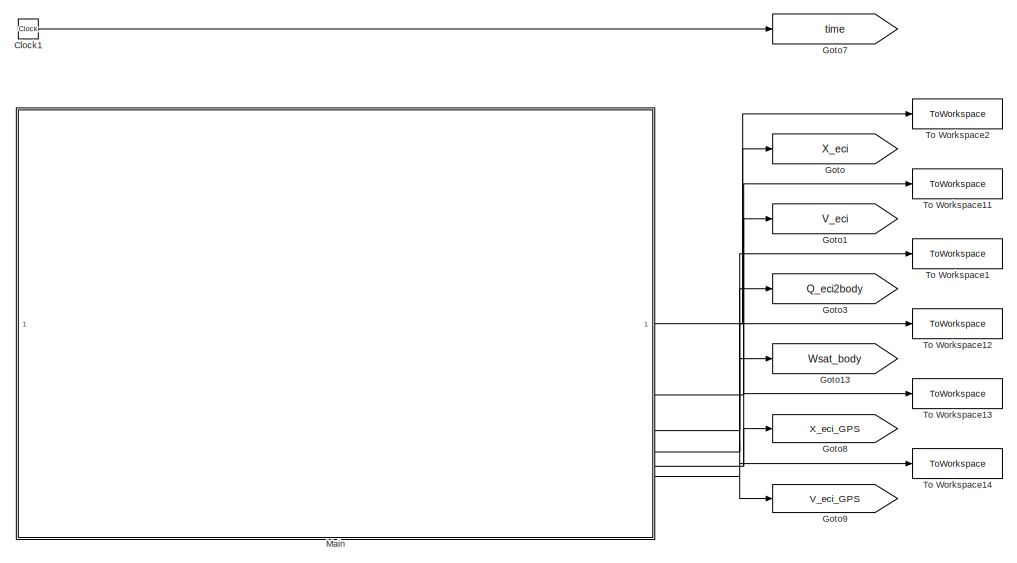
[diagram: root canvas - part 1/3, top left region]
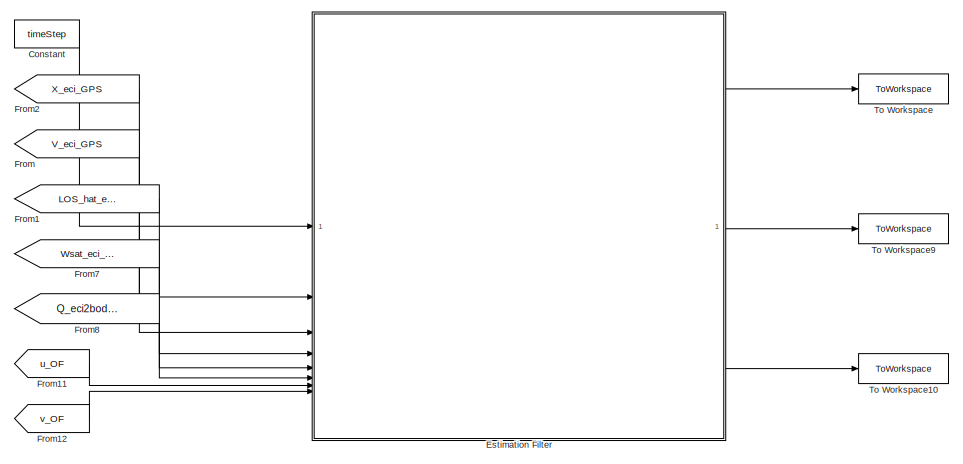
[diagram: root canvas - part 2/3, top right region]
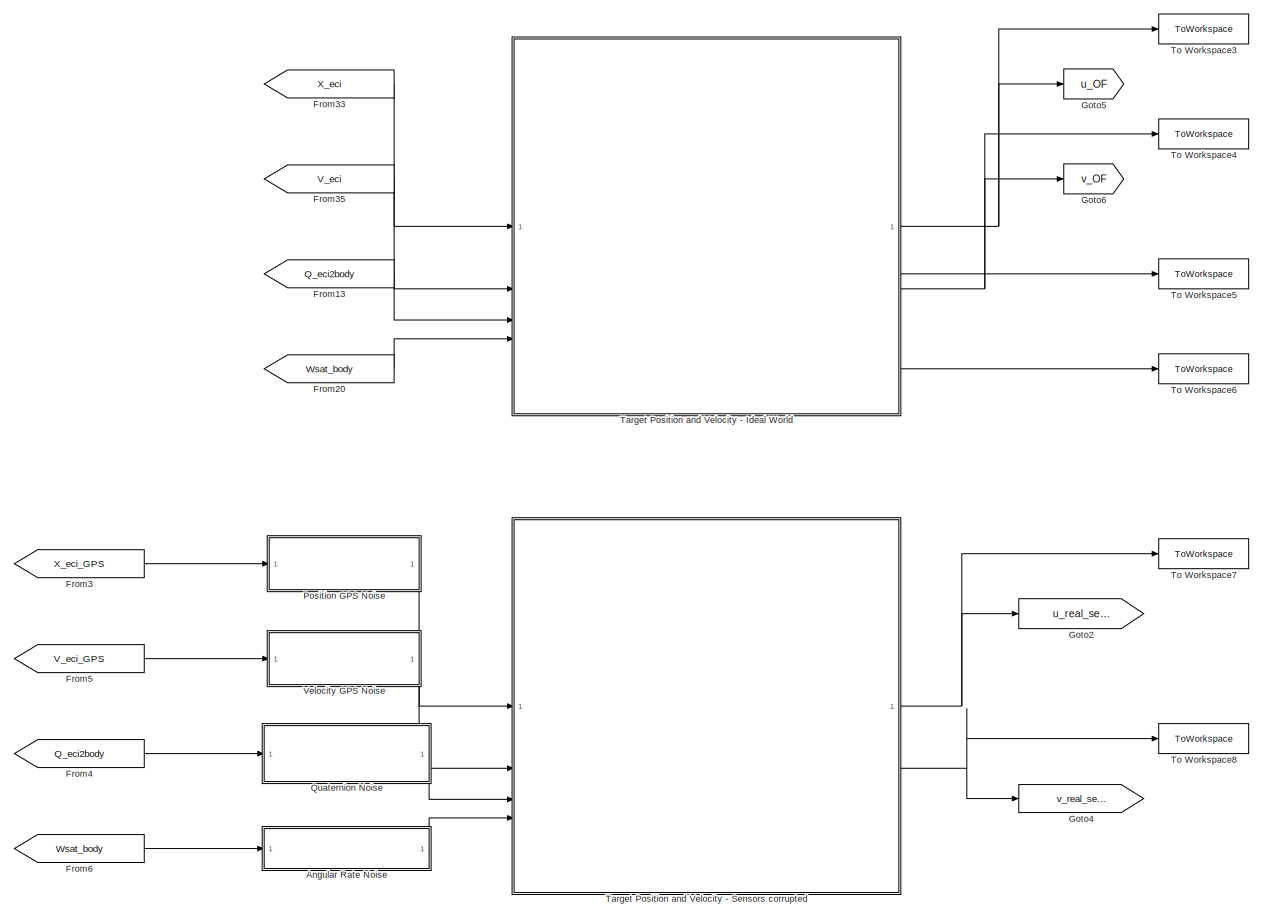
[diagram: root canvas - part 3/3, bottom left region]
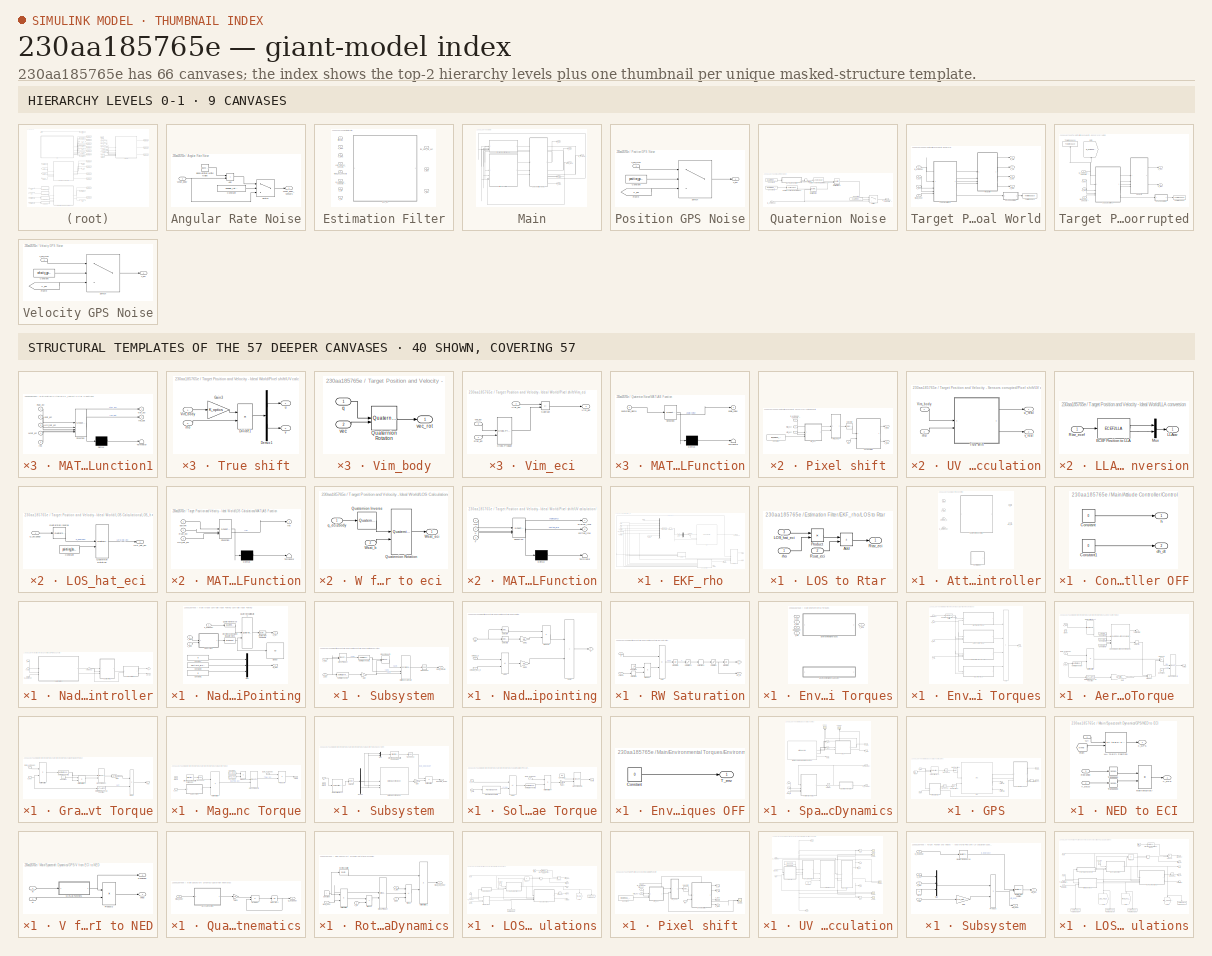
[diagram: thumbnail index - top-2 hierarchy levels (9 canvases) + 40 structural-template representatives of the remaining 57 canvases]
MODEL slx_230aa185765e
KIND model
CONFIG AbsTol = auto
CONFIG EnableMultiTasking = off
CONFIG FixedStep = timeStep
CONFIG MaxStep = auto
CONFIG MinStep = auto
CONFIG RelTol = 1e-3
CONFIG SampleTimeConstraint = Unconstrained
CONFIG SolverName = ode4
CONFIG StartTime = 0.0
CONFIG StopTime = stopTime
BLOCK [SubSystem] Angular Rate Noise
BLOCK [Sum] Angular Rate Noise/Add
  IconShape = rectangular
BLOCK [Reference] Angular Rate Noise/Band-Limited White Noise  REF=simulink/Sources/Band-Limited
White Noise
  SourceBlock = simulink/Sources/Band-Limited\nWhite Noise
  SourceType = Band-Limited White Noise.
BLOCK [Constant] Angular Rate Noise/Constant
  Value = angular_rate_noise_ON
BLOCK [Switch] Angular Rate Noise/Switch
  Criteria = u2 ~= 0
  InputSameDT = off
  SaturateOnIntegerOverflow = off
BLOCK [Inport] Angular Rate Noise/Wsat_body
BLOCK [Outport] Angular Rate Noise/Wsat_body_sensors
BLOCK [Clock] Clock1
BLOCK [Constant] Constant
  Value = timeStep
BLOCK [SubSystem] Estimation Filter
  EmptyChoice = on
  Variant = on
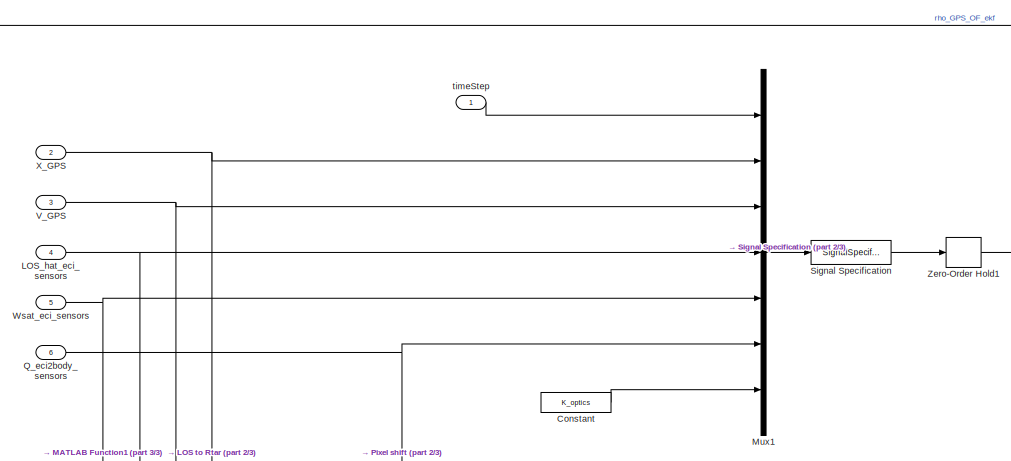
[diagram: Estimation Filter/EKF_rho - part 1/3, top left region]
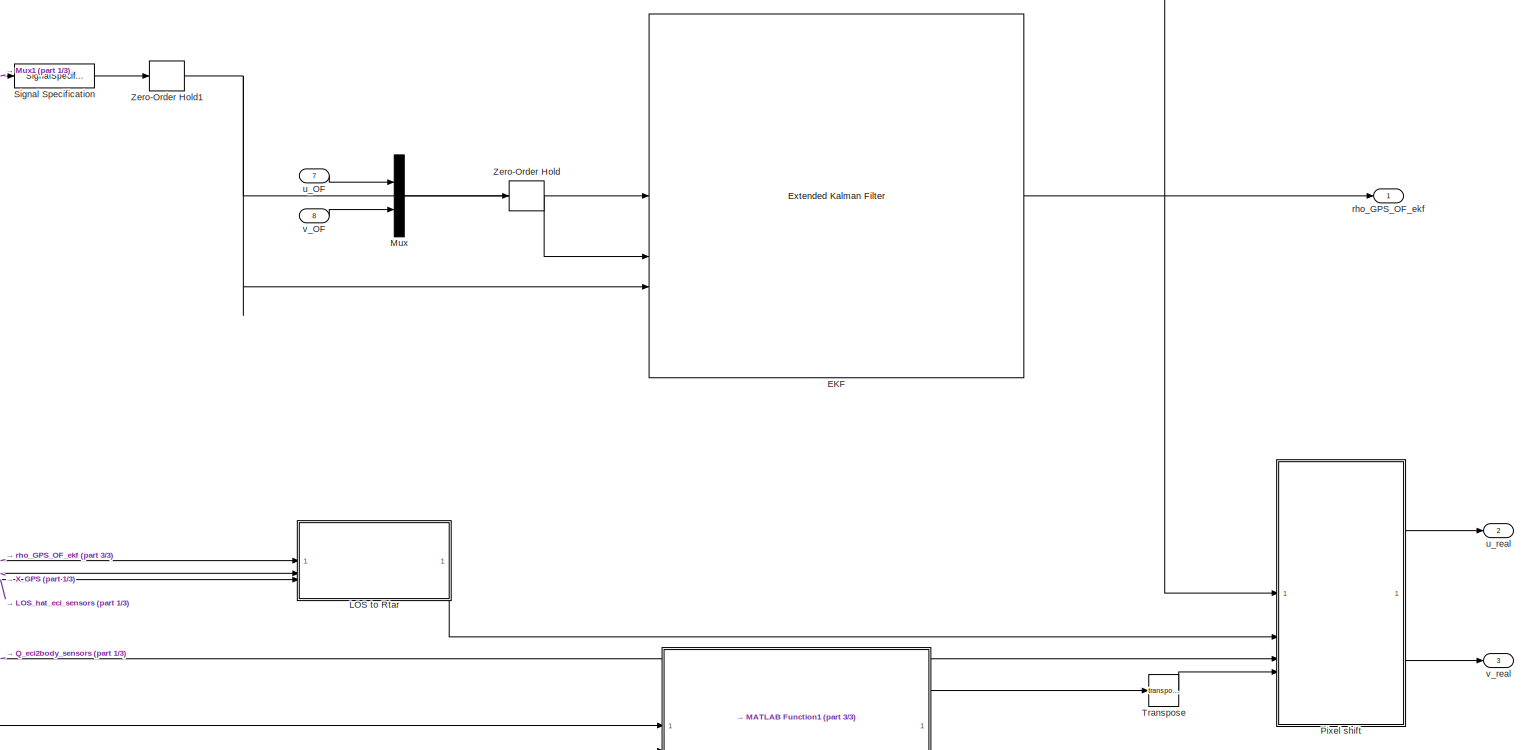
[diagram: Estimation Filter/EKF_rho - part 2/3, middle right region]
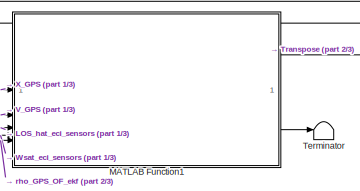
[diagram: Estimation Filter/EKF_rho - part 3/3, bottom right region]
BLOCK [SubSystem] Estimation Filter/EKF_rho
  VariantControl = estimation_filter == "EKF_rho"
BLOCK [Constant] Estimation Filter/EKF_rho/Constant
  Value = K_optics
BLOCK [Reference] Estimation Filter/EKF_rho/EKF  REF=sharedTrackingLibrary/Extended Kalman Filter
  LibrarySourceBlock = cstblocks/State Estimation/Extended Kalman Filter
  SourceBlock = sharedTrackingLibrary/Extended Kalman Filter
  SourceType = Extended Kalman Filter
BLOCK [SubSystem] Estimation Filter/EKF_rho/LOS to Rtar
BLOCK [Sum] Estimation Filter/EKF_rho/LOS to Rtar/Add
  IconShape = rectangular
BLOCK [Inport] Estimation Filter/EKF_rho/LOS to Rtar/LOS_hat_eci
  Port = 3
BLOCK [Product] Estimation Filter/EKF_rho/LOS to Rtar/Product
BLOCK [Inport] Estimation Filter/EKF_rho/LOS to Rtar/Rsat_eci
  Port = 2
BLOCK [Outport] Estimation Filter/EKF_rho/LOS to Rtar/Rtar_eci
BLOCK [Inport] Estimation Filter/EKF_rho/LOS to Rtar/rho
BLOCK [Inport] Estimation Filter/EKF_rho/LOS_hat_eci_sensors
  Port = 4
BLOCK [SubSystem] Estimation Filter/EKF_rho/MATLAB Function1
  ErrorFcn = Stateflow.Translate.translate
  PermitHierarchicalResolution = ExplicitOnly
  SFBlockType = MATLAB Function
  TreatAsAtomicUnit = on
BLOCK [Demux] Estimation Filter/EKF_rho/MATLAB Function1/ Demux 
  Outputs = 1
BLOCK [S-Function] Estimation Filter/EKF_rho/MATLAB Function1/ SFunction 
  EnableBusSupport = off
  FunctionName = sf_sfun
  PortCounts = [5 3]
  SFcnIsStateOwnerBlock = off
  SFunctionDeploymentMode = off
  Tag = Stateflow S-Function 9
BLOCK [Terminator] Estimation Filter/EKF_rho/MATLAB Function1/ Terminator 
BLOCK [Inport] Estimation Filter/EKF_rho/MATLAB Function1/LOS_hat_eci
  Port = 3
BLOCK [Inport] Estimation Filter/EKF_rho/MATLAB Function1/Rsat_eci
BLOCK [Inport] Estimation Filter/EKF_rho/MATLAB Function1/Vsat_eci
  Port = 2
BLOCK [Outport] Estimation Filter/EKF_rho/MATLAB Function1/Vtar_eci
BLOCK [Inport] Estimation Filter/EKF_rho/MATLAB Function1/Wsat_eci
  Port = 4
BLOCK [Inport] Estimation Filter/EKF_rho/MATLAB Function1/rho
  Port = 5
BLOCK [Outport] Estimation Filter/EKF_rho/MATLAB Function1/rho_dot
  Port = 2
BLOCK [Mux] Estimation Filter/EKF_rho/Mux
  DisplayOption = bar
  Inputs = 2
BLOCK [Mux] Estimation Filter/EKF_rho/Mux1
  DisplayOption = bar
  Inputs = 7
BLOCK [SubSystem] Estimation Filter/EKF_rho/Pixel shift
BLOCK [Constant] Estimation Filter/EKF_rho/Pixel shift/Constant
  Value = [0;0;Omega_E]
BLOCK [Inport] Estimation Filter/EKF_rho/Pixel shift/Q_eci2body
  Port = 3
BLOCK [Inport] Estimation Filter/EKF_rho/Pixel shift/Rtar_eci
  Port = 2
BLOCK [Selector] Estimation Filter/EKF_rho/Pixel shift/Selector2
  IndexOptions = Index vector (dialog)
  Indices = [1 2]
  InputPortWidth = 3
  OutputSizes = 1
BLOCK [SubSystem] Estimation Filter/EKF_rho/Pixel shift/UV calculation
BLOCK [SubSystem] Estimation Filter/EKF_rho/Pixel shift/UV calculation/True shift
BLOCK [Demux] Estimation Filter/EKF_rho/Pixel shift/UV calculation/True shift/Demux1
  Outputs = 2
BLOCK [Product] Estimation Filter/EKF_rho/Pixel shift/UV calculation/True shift/Divide1
  Inputs = */
BLOCK [Gain] Estimation Filter/EKF_rho/Pixel shift/UV calculation/True shift/Gain3
  Gain = K_optics
BLOCK [Inport] Estimation Filter/EKF_rho/Pixel shift/UV calculation/True shift/Vim_body
BLOCK [Inport] Estimation Filter/EKF_rho/Pixel shift/UV calculation/True shift/rho
  Port = 2
BLOCK [Outport] Estimation Filter/EKF_rho/Pixel shift/UV calculation/True shift/u
BLOCK [Outport] Estimation Filter/EKF_rho/Pixel shift/UV calculation/True shift/v
  Port = 2
BLOCK [Inport] Estimation Filter/EKF_rho/Pixel shift/UV calculation/Vim_body
BLOCK [Inport] Estimation Filter/EKF_rho/Pixel shift/UV calculation/rho
  Port = 2
BLOCK [Outport] Estimation Filter/EKF_rho/Pixel shift/UV calculation/u_real
BLOCK [Outport] Estimation Filter/EKF_rho/Pixel shift/UV calculation/v_real
  Port = 2
BLOCK [SubSystem] Estimation Filter/EKF_rho/Pixel shift/Vim_body
BLOCK [Reference] Estimation Filter/EKF_rho/Pixel shift/Vim_body/Quaternion Rotation  REF=aerolibutil/Quaternion
Rotation
  SourceBlock = aerolibutil/Quaternion\nRotation
  SourceType = Quaternion Rotation
BLOCK [Inport] Estimation Filter/EKF_rho/Pixel shift/Vim_body/q
BLOCK [Inport] Estimation Filter/EKF_rho/Pixel shift/Vim_body/vec
  Port = 2
BLOCK [Outport] Estimation Filter/EKF_rho/Pixel shift/Vim_body/vec_rot
BLOCK [SubSystem] Estimation Filter/EKF_rho/Pixel shift/Vim_eci
BLOCK [Reference] Estimation Filter/EKF_rho/Pixel shift/Vim_eci/Cross Product  REF=matrix_library/Cross Product
  LibrarySourceBlock = simulink/Matrix\nOperations/Cross Product
  SourceBlock = matrix_library/Cross Product
  SourceType = CrossProduct
BLOCK [Inport] Estimation Filter/EKF_rho/Pixel shift/Vim_eci/Rtar_eci
BLOCK [Sum] Estimation Filter/EKF_rho/Pixel shift/Vim_eci/Subtract
  IconShape = rectangular
  Inputs = +-
BLOCK [Outport] Estimation Filter/EKF_rho/Pixel shift/Vim_eci/Vim_eci
BLOCK [Inport] Estimation Filter/EKF_rho/Pixel shift/Vim_eci/Vtar_eci
  Port = 2
BLOCK [Inport] Estimation Filter/EKF_rho/Pixel shift/Vim_eci/We_eci
  Port = 3
BLOCK [Inport] Estimation Filter/EKF_rho/Pixel shift/Vtar_eci
  Port = 4
BLOCK [Inport] Estimation Filter/EKF_rho/Pixel shift/rho
BLOCK [Outport] Estimation Filter/EKF_rho/Pixel shift/u_real
BLOCK [Outport] Estimation Filter/EKF_rho/Pixel shift/v_real
  Port = 2
BLOCK [Inport] Estimation Filter/EKF_rho/Q_eci2body_sensors
  Port = 6
BLOCK [SignalSpecification] Estimation Filter/EKF_rho/Signal Specification
  Dimensions = 18
BLOCK [Terminator] Estimation Filter/EKF_rho/Terminator
BLOCK [Math] Estimation Filter/EKF_rho/Transpose
  Operator = transpose
BLOCK [Inport] Estimation Filter/EKF_rho/V_GPS
  Port = 3
BLOCK [Inport] Estimation Filter/EKF_rho/Wsat_eci_sensors
  Port = 5
BLOCK [Inport] Estimation Filter/EKF_rho/X_GPS
  Port = 2
BLOCK [ZeroOrderHold] Estimation Filter/EKF_rho/Zero-Order Hold
  SampleTime = timeStep
BLOCK [ZeroOrderHold] Estimation Filter/EKF_rho/Zero-Order Hold1
  SampleTime = timeStep
BLOCK [Outport] Estimation Filter/EKF_rho/rho_GPS_OF_ekf
BLOCK [Inport] Estimation Filter/EKF_rho/timeStep
BLOCK [Inport] Estimation Filter/EKF_rho/u_OF
  Port = 7
BLOCK [Outport] Estimation Filter/EKF_rho/u_real
  Port = 2
BLOCK [Inport] Estimation Filter/EKF_rho/v_OF
  Port = 8
BLOCK [Outport] Estimation Filter/EKF_rho/v_real
  Port = 3
BLOCK [Inport] Estimation Filter/LOS_hat_eci_sensors
  Port = 4
BLOCK [Inport] Estimation Filter/Q_eci2body_sensors
  Port = 6
BLOCK [Inport] Estimation Filter/V_GPS
  Port = 3
BLOCK [Inport] Estimation Filter/Wsat_eci_sensors
  Port = 5
BLOCK [Inport] Estimation Filter/X_GPS
  Port = 2
BLOCK [Outport] Estimation Filter/rho_GPS_OF_ekf
BLOCK [Inport] Estimation Filter/timeStep
BLOCK [Inport] Estimation Filter/u_OF
  Port = 7
BLOCK [Outport] Estimation Filter/u_real
  Port = 2
BLOCK [Inport] Estimation Filter/v_OF
  Port = 8
BLOCK [Outport] Estimation Filter/v_real
  Port = 3
BLOCK [From] From
  GotoTag = V_eci_GPS
BLOCK [From] From1
  GotoTag = LOS_hat_eci_sensors
  TagVisibility = global
BLOCK [From] From11
  GotoTag = u_OF
BLOCK [From] From12
  GotoTag = v_OF
BLOCK [From] From13
  GotoTag = Q_eci2body
BLOCK [From] From2
  GotoTag = X_eci_GPS
BLOCK [From] From20
  GotoTag = Wsat_body
BLOCK [From] From3
  GotoTag = X_eci_GPS
BLOCK [From] From33
  GotoTag = X_eci
  TagVisibility = global
BLOCK [From] From35
  GotoTag = V_eci
  TagVisibility = global
BLOCK [From] From4
  GotoTag = Q_eci2body
BLOCK [From] From5
  GotoTag = V_eci_GPS
BLOCK [From] From6
  GotoTag = Wsat_body
BLOCK [From] From7
  GotoTag = Wsat_eci_sensors
  TagVisibility = global
BLOCK [From] From8
  GotoTag = Q_eci2body_sensors
  TagVisibility = global
BLOCK [Goto] Goto
  GotoTag = X_eci
  TagVisibility = global
BLOCK [Goto] Goto1
  GotoTag = V_eci
  TagVisibility = global
BLOCK [Goto] Goto13
  GotoTag = Wsat_body
BLOCK [Goto] Goto2
  GotoTag = u_real_sensors
BLOCK [Goto] Goto3
  GotoTag = Q_eci2body
BLOCK [Goto] Goto4
  GotoTag = v_real_sensors
BLOCK [Goto] Goto5
  GotoTag = u_OF
BLOCK [Goto] Goto6
  GotoTag = v_OF
BLOCK [Goto] Goto7
  GotoTag = time
  TagVisibility = global
BLOCK [Goto] Goto8
  GotoTag = X_eci_GPS
BLOCK [Goto] Goto9
  GotoTag = V_eci_GPS
BLOCK [SubSystem] Main
BLOCK [SubSystem] Main/Attiude Controller
  EmptyChoice = on
  Variant = on
BLOCK [SubSystem] Main/Attiude Controller/Controller OFF
  VariantControl = controller_ON == 0
BLOCK [Constant] Main/Attiude Controller/Controller OFF/Constant
  Value = 0
BLOCK [Constant] Main/Attiude Controller/Controller OFF/Constant1
  Value = 0
BLOCK [Outport] Main/Attiude Controller/Controller OFF/dh_dt
  Port = 2
BLOCK [Outport] Main/Attiude Controller/Controller OFF/h
BLOCK [SubSystem] Main/Attiude Controller/Nadir Pointing Controller
  VariantControl = controller_ON == 1
BLOCK [SubSystem] Main/Attiude Controller/Nadir Pointing Controller/Nadir Pointing
  TreatAsAtomicUnit = on
BLOCK [Constant] Main/Attiude Controller/Nadir Pointing Controller/Nadir Pointing/Constant
  Value = 0
BLOCK [Constant] Main/Attiude Controller/Nadir Pointing Controller/Nadir Pointing/Constant1
  Value = 0
BLOCK [Constant] Main/Attiude Controller/Nadir Pointing Controller/Nadir Pointing/Constant2
  Value = sqrt(mu_E/sma^3)
BLOCK [Dcm2Quat] Main/Attiude Controller/Nadir Pointing Controller/Nadir Pointing/Direction Cosine Matrix to Quaternions
BLOCK [Display] Main/Attiude Controller/Nadir Pointing Controller/Nadir Pointing/Display
  Decimation = 1
BLOCK [Mux] Main/Attiude Controller/Nadir Pointing Controller/Nadir Pointing/Mux
  DisplayOption = bar
  Inputs = 3
BLOCK [Reference] Main/Attiude Controller/Nadir Pointing Controller/Nadir Pointing/Quaternion Conjugate  REF=aerolibutil/Quaternion
Conjugate
  SourceBlock = aerolibutil/Quaternion\nConjugate
  SourceType = Quaternion Conjugate
BLOCK [Reference] Main/Attiude Controller/Nadir Pointing Controller/Nadir Pointing/Quaternion Inverse  REF=aerolibutil/Quaternion
Inverse
  SourceBlock = aerolibutil/Quaternion\nInverse
  SourceType = Quaternion Inverse
BLOCK [Reference] Main/Attiude Controller/Nadir Pointing Controller/Nadir Pointing/Quaternion Multiplication  REF=aerolibutil/Quaternion
Multiplication
  SourceBlock = aerolibutil/Quaternion\nMultiplication
  SourceType = Quaternion Multiplication
BLOCK [SubSystem] Main/Attiude Controller/Nadir Pointing Controller/Nadir Pointing/Subsystem
BLOCK [Reference] Main/Attiude Controller/Nadir Pointing Controller/Nadir Pointing/Subsystem/Cross Product  REF=matrix_library/Cross Product
  SourceBlock = matrix_library/Cross Product
  SourceType = CrossProduct
BLOCK [Reference] Main/Attiude Controller/Nadir Pointing Controller/Nadir Pointing/Subsystem/Cross Product1  REF=matrix_library/Cross Product
  SourceBlock = matrix_library/Cross Product
  SourceType = CrossProduct
BLOCK [Outport] Main/Attiude Controller/Nadir Pointing Controller/Nadir Pointing/Subsystem/DCM_ECI2orb
BLOCK [Gain] Main/Attiude Controller/Nadir Pointing Controller/Nadir Pointing/Subsystem/Gain
  Gain = -1
BLOCK [Concatenate] Main/Attiude Controller/Nadir Pointing Controller/Nadir Pointing/Subsystem/Matrix Concatenate
  ConcatenateDimension = 2
  Mode = Multidimensional array
  NumInputs = 3
BLOCK [Reference] Main/Attiude Controller/Nadir Pointing Controller/Nadir Pointing/Subsystem/Normalize Vector  REF=vrlib/Utilities/Normalize Vector
  SourceBlock = vrlib/Utilities/Normalize Vector
  SourceType = Normalize Vector
BLOCK [Reference] Main/Attiude Controller/Nadir Pointing Controller/Nadir Pointing/Subsystem/Normalize Vector1  REF=vrlib/Utilities/Normalize Vector
  SourceBlock = vrlib/Utilities/Normalize Vector
  SourceType = Normalize Vector
BLOCK [Math] Main/Attiude Controller/Nadir Pointing Controller/Nadir Pointing/Subsystem/Transpose
  Operator = transpose
BLOCK [Inport] Main/Attiude Controller/Nadir Pointing Controller/Nadir Pointing/Subsystem/r_ECI
BLOCK [Inport] Main/Attiude Controller/Nadir Pointing Controller/Nadir Pointing/Subsystem/v_ECI
  Port = 2
BLOCK [Inport] Main/Attiude Controller/Nadir Pointing Controller/Nadir Pointing/q_ECI2body
  Port = 3
BLOCK [Outport] Main/Attiude Controller/Nadir Pointing Controller/Nadir Pointing/q_Err
BLOCK [Inport] Main/Attiude Controller/Nadir Pointing Controller/Nadir Pointing/r_ECI
BLOCK [Inport] Main/Attiude Controller/Nadir Pointing Controller/Nadir Pointing/v_ECI
  Port = 2
BLOCK [Outport] Main/Attiude Controller/Nadir Pointing Controller/Nadir Pointing/w_des
  Port = 2
BLOCK [SubSystem] Main/Attiude Controller/Nadir Pointing Controller/Nadir pointing
BLOCK [Sum] Main/Attiude Controller/Nadir Pointing Controller/Nadir pointing/Add2
  IconShape = rectangular
  Inputs = +-
BLOCK [Gain] Main/Attiude Controller/Nadir Pointing Controller/Nadir pointing/Gain2
  Gain = kq
BLOCK [Gain] Main/Attiude Controller/Nadir Pointing Controller/Nadir pointing/Gain3
  Gain = kd
BLOCK [Product] Main/Attiude Controller/Nadir Pointing Controller/Nadir pointing/Product1
BLOCK [Selector] Main/Attiude Controller/Nadir Pointing Controller/Nadir pointing/Selector3
  IndexOptions = Index vector (dialog)
  Indices = [2 3 4]
  InputPortWidth = 4
  OutputSizes = 1
BLOCK [Selector] Main/Attiude Controller/Nadir Pointing Controller/Nadir pointing/Selector4
  IndexOptions = Index vector (dialog)
  Indices = [1]
  InputPortWidth = 4
  OutputSizes = 1
BLOCK [Sum] Main/Attiude Controller/Nadir Pointing Controller/Nadir pointing/Sum2
  IconShape = rectangular
BLOCK [Outport] Main/Attiude Controller/Nadir Pointing Controller/Nadir pointing/g
BLOCK [Inport] Main/Attiude Controller/Nadir Pointing Controller/Nadir pointing/omega_b
  Port = 2
BLOCK [Inport] Main/Attiude Controller/Nadir Pointing Controller/Nadir pointing/omega_des_b
  Port = 3
BLOCK [Inport] Main/Attiude Controller/Nadir Pointing Controller/Nadir pointing/qErr
BLOCK [SubSystem] Main/Attiude Controller/Nadir Pointing Controller/RW Saturation
BLOCK [Sum] Main/Attiude Controller/Nadir Pointing Controller/RW Saturation/Add
  IconShape = rectangular
  Inputs = +-
BLOCK [Constant] Main/Attiude Controller/Nadir Pointing Controller/RW Saturation/Constant
  Value = I_W
BLOCK [Derivative] Main/Attiude Controller/Nadir Pointing Controller/RW Saturation/Derivative
BLOCK [Derivative] Main/Attiude Controller/Nadir Pointing Controller/RW Saturation/Derivative1
BLOCK [Integrator] Main/Attiude Controller/Nadir Pointing Controller/RW Saturation/Integrator
  InitialCondition = zeros(3,1)
BLOCK [Integrator] Main/Attiude Controller/Nadir Pointing Controller/RW Saturation/Integrator1
  InitialCondition = zeros(3,1)
BLOCK [Product] Main/Attiude Controller/Nadir Pointing Controller/RW Saturation/Product
  Multiplication = Matrix(*)
BLOCK [Saturate] Main/Attiude Controller/Nadir Pointing Controller/RW Saturation/Saturation
  LowerLimit = -[max_t;max_t;max_t]
  UpperLimit = [max_t;max_t;max_t]
BLOCK [Saturate] Main/Attiude Controller/Nadir Pointing Controller/RW Saturation/Saturation1
  LowerLimit = -[max_h;max_h;max_h]
  UpperLimit = [max_h;max_h;max_h]
BLOCK [Outport] Main/Attiude Controller/Nadir Pointing Controller/RW Saturation/dh_dt
  Port = 2
BLOCK [Inport] Main/Attiude Controller/Nadir Pointing Controller/RW Saturation/g
BLOCK [Outport] Main/Attiude Controller/Nadir Pointing Controller/RW Saturation/h
BLOCK [Inport] Main/Attiude Controller/Nadir Pointing Controller/RW Saturation/omega
  Port = 2
BLOCK [Outport] Main/Attiude Controller/Nadir Pointing Controller/dh_dt
  Port = 2
BLOCK [Outport] Main/Attiude Controller/Nadir Pointing Controller/h
BLOCK [Inport] Main/Attiude Controller/Nadir Pointing Controller/omega_b
  Port = 3
BLOCK [Inport] Main/Attiude Controller/Nadir Pointing Controller/q_ECI2body
  Port = 4
BLOCK [Inport] Main/Attiude Controller/Nadir Pointing Controller/r_ECI
BLOCK [Inport] Main/Attiude Controller/Nadir Pointing Controller/v_ECI
  Port = 2
BLOCK [Outport] Main/Attiude Controller/dh_dt
  Port = 2
BLOCK [Outport] Main/Attiude Controller/h
BLOCK [Inport] Main/Attiude Controller/omega_b
  Port = 3
BLOCK [Inport] Main/Attiude Controller/q_ECI2body
  Port = 4
BLOCK [Inport] Main/Attiude Controller/r_ECI
BLOCK [Inport] Main/Attiude Controller/v_ECI
  Port = 2
BLOCK [SubSystem] Main/Environmental Torques
  EmptyChoice = on
  Variant = on
BLOCK [SubSystem] Main/Environmental Torques/Environmental Torques
  VariantControl = env_torques_ON == 1
BLOCK [SubSystem] Main/Environmental Torques/Environmental Torques OFF
  VariantControl = env_torques_ON == 0
BLOCK [Constant] Main/Environmental Torques/Environmental Torques OFF/Constant
  Value = 0
BLOCK [Outport] Main/Environmental Torques/Environmental Torques OFF/T_env
BLOCK [Sum] Main/Environmental Torques/Environmental Torques/Add
  IconShape = rectangular
  Inputs = ++++
BLOCK [SubSystem] Main/Environmental Torques/Environmental Torques/Aerodynamic Torque  
BLOCK [Clock] Main/Environmental Torques/Environmental Torques/Aerodynamic Torque  /Clock
BLOCK [Constant] Main/Environmental Torques/Environmental Torques/Aerodynamic Torque  /Constant
  Value = rcp
BLOCK [Constant] Main/Environmental Torques/Environmental Torques/Aerodynamic Torque  /Constant1
  Value = yearValue
BLOCK [Constant] Main/Environmental Torques/Environmental Torques/Aerodynamic Torque  /Constant2
  Value = dayValue
BLOCK [Constant] Main/Environmental Torques/Environmental Torques/Aerodynamic Torque  /Constant3
  Value = hourValue*3600+minuteValue*60+secondValue
BLOCK [Reference] Main/Environmental Torques/Environmental Torques/Aerodynamic Torque  /Cross Product1  REF=matrix_library/Cross Product
  SourceBlock = matrix_library/Cross Product
  SourceType = CrossProduct
BLOCK [Inport] Main/Environmental Torques/Environmental Torques/Aerodynamic Torque  /DCM_eci2body
  Port = 2
BLOCK [Reference] Main/Environmental Torques/Environmental Torques/Aerodynamic Torque  /ECI Position to LLA  REF=aerolibtransform2/ECI Position to LLA
  AttributesFormatString = %<red>
  SourceBlock = aerolibtransform2/ECI Position to LLA
  SourceType = ECItoLLA
BLOCK [Gain] Main/Environmental Torques/Environmental Torques/Aerodynamic Torque  /Gain
  Gain = 0.5*dimx*dimz*CD
BLOCK [MATLABFcn] Main/Environmental Torques/Environmental Torques/Aerodynamic Torque  /Interpreted MATLAB Function
  MATLABFcn = norm(u)^2
BLOCK [Product] Main/Environmental Torques/Environmental Torques/Aerodynamic Torque  /Matrix Multiply
  Multiplication = Matrix(*)
BLOCK [Reference] Main/Environmental Torques/Environmental Torques/Aerodynamic Torque  /NRLMSISE-00 Atmosphere Model  REF=aerolibatmos2/NRLMSISE-00
Atmosphere Model
  SourceBlock = aerolibatmos2/NRLMSISE-00\nAtmosphere Model
  SourceType = NRLMSISE-00 Model
BLOCK [Reference] Main/Environmental Torques/Environmental Torques/Aerodynamic Torque  /Normalize Vector  REF=vrlib/Utilities/Normalize Vector
  SourceBlock = vrlib/Utilities/Normalize Vector
  SourceType = Normalize Vector
BLOCK [Product] Main/Environmental Torques/Environmental Torques/Aerodynamic Torque  /Product
BLOCK [Product] Main/Environmental Torques/Environmental Torques/Aerodynamic Torque  /Product1
BLOCK [Selector] Main/Environmental Torques/Environmental Torques/Aerodynamic Torque  /Selector
  IndexOptions = Index vector (dialog)
  Indices = 6
  InputPortWidth = 9
  OutputSizes = 1
BLOCK [Outport] Main/Environmental Torques/Environmental Torques/Aerodynamic Torque  /Tdrag
BLOCK [Terminator] Main/Environmental Torques/Environmental Torques/Aerodynamic Torque  /Terminator5
BLOCK [Inport] Main/Environmental Torques/Environmental Torques/Aerodynamic Torque  /V_eci
  Port = 3
BLOCK [Inport] Main/Environmental Torques/Environmental Torques/Aerodynamic Torque  /X_eci
BLOCK [SubSystem] Main/Environmental Torques/Environmental Torques/Gravity Gradient Torque
BLOCK [Constant] Main/Environmental Torques/Environmental Torques/Gravity Gradient Torque/Constant
  Value = I
BLOCK [Reference] Main/Environmental Torques/Environmental Torques/Gravity Gradient Torque/Cross Product  REF=matrix_library/Cross Product
  SourceBlock = matrix_library/Cross Product
  SourceType = CrossProduct
BLOCK [Inport] Main/Environmental Torques/Environmental Torques/Gravity Gradient Torque/DCM_eci2body
BLOCK [Product] Main/Environmental Torques/Environmental Torques/Gravity Gradient Torque/Divide
  Inputs = */
BLOCK [Gain] Main/Environmental Torques/Environmental Torques/Gravity Gradient Torque/Gain
  Gain = 3*mu_E
BLOCK [MATLABFcn] Main/Environmental Torques/Environmental Torques/Gravity Gradient Torque/Interpreted MATLAB Function
  MATLABFcn = norm(u)^3
BLOCK [Product] Main/Environmental Torques/Environmental Torques/Gravity Gradient Torque/Matrix Multiply
  Multiplication = Matrix(*)
BLOCK [Product] Main/Environmental Torques/Environmental Torques/Gravity Gradient Torque/Matrix Multiply2
  Multiplication = Matrix(*)
BLOCK [Reference] Main/Environmental Torques/Environmental Torques/Gravity Gradient Torque/Normalize Vector1  REF=vrlib/Utilities/Normalize Vector
  SourceBlock = vrlib/Utilities/Normalize Vector
  SourceType = Normalize Vector
BLOCK [Outport] Main/Environmental Torques/Environmental Torques/Gravity Gradient Torque/Tgg
BLOCK [Inport] Main/Environmental Torques/Environmental Torques/Gravity Gradient Torque/X_eci
  Port = 2
BLOCK [SubSystem] Main/Environmental Torques/Environmental Torques/Magnetic Torque
BLOCK [Clock] Main/Environmental Torques/Environmental Torques/Magnetic Torque/Clock
BLOCK [Constant] Main/Environmental Torques/Environmental Torques/Magnetic Torque/Constant
  Value = res_dipole
BLOCK [Constant] Main/Environmental Torques/Environmental Torques/Magnetic Torque/Constant1
  Value = rand_vec
BLOCK [Reference] Main/Environmental Torques/Environmental Torques/Magnetic Torque/Cross Product2  REF=matrix_library/Cross Product
  SourceBlock = matrix_library/Cross Product
  SourceType = CrossProduct
BLOCK [Inport] Main/Environmental Torques/Environmental Torques/Magnetic Torque/DCM_eci2body
  Port = 2
BLOCK [Reference] Main/Environmental Torques/Environmental Torques/Magnetic Torque/Direction Cosine Matrix ECI to ECEF  REF=aerolibtransform2/Direction Cosine Matrix
ECI to ECEF
  AttributesFormatString = %<red>
  SourceBlock = aerolibtransform2/Direction Cosine Matrix\nECI to ECEF
  SourceType = DCMECItoECEF
BLOCK [Product] Main/Environmental Torques/Environmental Torques/Magnetic Torque/MatrixMultiply
  Multiplication = Matrix(*)
BLOCK [Product] Main/Environmental Torques/Environmental Torques/Magnetic Torque/Product
BLOCK [Product] Main/Environmental Torques/Environmental Torques/Magnetic Torque/Product4
  Multiplication = Matrix(*)
BLOCK [SubSystem] Main/Environmental Torques/Environmental Torques/Magnetic Torque/Subsystem
BLOCK [Clock] Main/Environmental Torques/Environmental Torques/Magnetic Torque/Subsystem/Clock
BLOCK [Demux] Main/Environmental Torques/Environmental Torques/Magnetic Torque/Subsystem/Demux
  Outputs = 3
BLOCK [Reference] Main/Environmental Torques/Environmental Torques/Magnetic Torque/Subsystem/Direction Cosine Matrix ECEF to NED  REF=aerolibtransform2/Direction Cosine Matrix
ECEF to NED
  SourceBlock = aerolibtransform2/Direction Cosine Matrix\nECEF to NED
  SourceType = DCM ECEF to NED
BLOCK [Reference] Main/Environmental Torques/Environmental Torques/Magnetic Torque/Subsystem/ECI Position to LLA  REF=aerolibtransform2/ECI Position to LLA
  AttributesFormatString = %<red>
  SourceBlock = aerolibtransform2/ECI Position to LLA
  SourceType = ECItoLLA
BLOCK [Gain] Main/Environmental Torques/Environmental Torques/Magnetic Torque/Subsystem/Gain
  Gain = 1e-9
BLOCK [Outport] Main/Environmental Torques/Environmental Torques/Magnetic Torque/Subsystem/MagField_ECEF
BLOCK [Product] Main/Environmental Torques/Environmental Torques/Magnetic Torque/Subsystem/Matrix Multiply
  Multiplication = Matrix(*)
BLOCK [Mux] Main/Environmental Torques/Environmental Torques/Magnetic Torque/Subsystem/Mux
  DisplayOption = bar
  Inputs = 2
BLOCK [Selector] Main/Environmental Torques/Environmental Torques/Magnetic Torque/Subsystem/Selector
  IndexOptions = Index vector (dialog)
  Indices = [3 1 2]
  InputPortWidth = 3
  OutputSizes = 1
BLOCK [Math] Main/Environmental Torques/Environmental Torques/Magnetic Torque/Subsystem/Transpose
  Operator = transpose
BLOCK [Reference] Main/Environmental Torques/Environmental Torques/Magnetic Torque/Subsystem/World Magnetic Model  REF=aerolibgravity2/World Magnetic Model
  AttributesFormatString = %<model>
  SourceBlock = aerolibgravity2/World Magnetic Model
  SourceType = WorldMagneticModel
BLOCK [Inport] Main/Environmental Torques/Environmental Torques/Magnetic Torque/Subsystem/Xi
BLOCK [Outport] Main/Environmental Torques/Environmental Torques/Magnetic Torque/Tmag
BLOCK [Math] Main/Environmental Torques/Environmental Torques/Magnetic Torque/Transpose
  Operator = transpose
BLOCK [Inport] Main/Environmental Torques/Environmental Torques/Magnetic Torque/X_eci
BLOCK [Reference] Main/Environmental Torques/Environmental Torques/Quaternions to Direction Cosine Matrix  REF=sharedtransform/Quaternions to 
Direction Cosine Matrix
  SourceBlock = sharedtransform/Quaternions to \nDirection Cosine Matrix
  SourceType = Quaternion2DCM
BLOCK [SubSystem] Main/Environmental Torques/Environmental Torques/Solar Radiation Pressure Torque
BLOCK [Sum] Main/Environmental Torques/Environmental Torques/Solar Radiation Pressure Torque/Add2
  IconShape = rectangular
  Inputs = -+
BLOCK [Constant] Main/Environmental Torques/Environmental Torques/Solar Radiation Pressure Torque/Constant
  Value = rcp
BLOCK [Reference] Main/Environmental Torques/Environmental Torques/Solar Radiation Pressure Torque/Cross Product3  REF=matrix_library/Cross Product
  SourceBlock = matrix_library/Cross Product
  SourceType = CrossProduct
BLOCK [Inport] Main/Environmental Torques/Environmental Torques/Solar Radiation Pressure Torque/DCM_eci2body
BLOCK [Gain] Main/Environmental Torques/Environmental Torques/Solar Radiation Pressure Torque/Gain3
  Gain = -Phi*dimx*dimz*(1+q)/c
BLOCK [Product] Main/Environmental Torques/Environmental Torques/Solar Radiation Pressure Torque/Matrix Multiply4
  Multiplication = Matrix(*)
BLOCK [Reference] Main/Environmental Torques/Environmental Torques/Solar Radiation Pressure Torque/Normalize Vector2  REF=vrlib/Utilities/Normalize Vector
  SourceBlock = vrlib/Utilities/Normalize Vector
  SourceType = Normalize Vector
BLOCK [PlanetaryEphem] Main/Environmental Torques/Environmental Torques/Solar Radiation Pressure Torque/Planetary Ephemeris
  outputVelocity = off
  target = Sun
  units = m,m/s
BLOCK [Outport] Main/Environmental Torques/Environmental Torques/Solar Radiation Pressure Torque/T_srp
BLOCK [Inport] Main/Environmental Torques/Environmental Torques/Solar Radiation Pressure Torque/X_eci
  Port = 2
BLOCK [Inport] Main/Environmental Torques/Environmental Torques/Solar Radiation Pressure Torque/t_JD
  Port = 3
BLOCK [Outport] Main/Environmental Torques/Environmental Torques/T_env
BLOCK [Inport] Main/Environmental Torques/Environmental Torques/V_eci
  Port = 2
BLOCK [Inport] Main/Environmental Torques/Environmental Torques/X_eci
BLOCK [Inport] Main/Environmental Torques/Environmental Torques/qECI2body
  Port = 3
BLOCK [Inport] Main/Environmental Torques/Environmental Torques/t_JD
  Port = 4
BLOCK [Outport] Main/Environmental Torques/T_env
BLOCK [Inport] Main/Environmental Torques/V_eci
  Port = 2
BLOCK [Inport] Main/Environmental Torques/X_eci
BLOCK [Inport] Main/Environmental Torques/qECI2body
  Port = 3
BLOCK [Inport] Main/Environmental Torques/t_JD
  Port = 4
BLOCK [Outport] Main/Q_eci2body
  Port = 3
BLOCK [SubSystem] Main/Spacecraft Dynamics
BLOCK [SubSystem] Main/Spacecraft Dynamics/GPS
BLOCK [Reference] Main/Spacecraft Dynamics/GPS/ECI Position to LLA  REF=aerolibtransform2/ECI Position to LLA
  AttributesFormatString = %<red>
  SourceBlock = aerolibtransform2/ECI Position to LLA
  SourceType = ECItoLLA
BLOCK [From] Main/Spacecraft Dynamics/GPS/From
  GotoTag = time
  TagVisibility = global
BLOCK [Reference] Main/Spacecraft Dynamics/GPS/GPS  REF=sensorgpslib/GPS
  SourceBlock = sensorgpslib/GPS
  SourceType = fusion.internal.simulink.gpsSensor
BLOCK [SubSystem] Main/Spacecraft Dynamics/GPS/NED to ECI
BLOCK [From] Main/Spacecraft Dynamics/GPS/NED to ECI/From
  GotoTag = time
  TagVisibility = global
BLOCK [Inport] Main/Spacecraft Dynamics/GPS/NED to ECI/LLA
BLOCK [Reference] Main/Spacecraft Dynamics/GPS/NED to ECI/LLA to ECI Position  REF=aerolibtransform2/LLA to ECI Position
  AttributesFormatString = %<red>
  SourceBlock = aerolibtransform2/LLA to ECI Position
  SourceType = LLAtoECI
BLOCK [Product] Main/Spacecraft Dynamics/GPS/NED to ECI/MatrixMultiply
  Multiplication = Matrix(*)
BLOCK [Inport] Main/Spacecraft Dynamics/GPS/NED to ECI/Reci2ned
  Port = 3
BLOCK [Math] Main/Spacecraft Dynamics/GPS/NED to ECI/Transpose2
  Operator = transpose
BLOCK [Math] Main/Spacecraft Dynamics/GPS/NED to ECI/Transpose3
  Operator = transpose
BLOCK [Outport] Main/Spacecraft Dynamics/GPS/NED to ECI/V_GPS
  Port = 2
BLOCK [Inport] Main/Spacecraft Dynamics/GPS/NED to ECI/V_NED
  Port = 2
BLOCK [Outport] Main/Spacecraft Dynamics/GPS/NED to ECI/X_GPS
BLOCK [RateTransition] Main/Spacecraft Dynamics/GPS/Rate Transition1
  OutPortSampleTime = timeStep
BLOCK [RateTransition] Main/Spacecraft Dynamics/GPS/Rate Transition4
  OutPortSampleTime = timeStep
BLOCK [SignalSpecification] Main/Spacecraft Dynamics/GPS/Signal Specification
  Dimensions = 3
BLOCK [Terminator] Main/Spacecraft Dynamics/GPS/Terminator
BLOCK [Terminator] Main/Spacecraft Dynamics/GPS/Terminator1
BLOCK [Math] Main/Spacecraft Dynamics/GPS/Transpose1
  Operator = transpose
BLOCK [Math] Main/Spacecraft Dynamics/GPS/Transpose2
  Operator = transpose
BLOCK [SubSystem] Main/Spacecraft Dynamics/GPS/V from ECI to NED
BLOCK [SubSystem] Main/Spacecraft Dynamics/GPS/V from ECI to NED/MATLAB Function1
  ErrorFcn = Stateflow.Translate.translate
  PermitHierarchicalResolution = ExplicitOnly
  SFBlockType = MATLAB Function
  TreatAsAtomicUnit = on
BLOCK [Demux] Main/Spacecraft Dynamics/GPS/V from ECI to NED/MATLAB Function1/ Demux 
  Outputs = 1
BLOCK [S-Function] Main/Spacecraft Dynamics/GPS/V from ECI to NED/MATLAB Function1/ SFunction 
  EnableBusSupport = off
  FunctionName = sf_sfun
  PortCounts = [1 2]
  SFcnIsStateOwnerBlock = off
  SFunctionDeploymentMode = off
  Tag = Stateflow S-Function 2
BLOCK [Terminator] Main/Spacecraft Dynamics/GPS/V from ECI to NED/MATLAB Function1/ Terminator 
BLOCK [Outport] Main/Spacecraft Dynamics/GPS/V from ECI to NED/MATLAB Function1/Reci2ned
BLOCK [Inport] Main/Spacecraft Dynamics/GPS/V from ECI to NED/MATLAB Function1/X_icrf
BLOCK [Product] Main/Spacecraft Dynamics/GPS/V from ECI to NED/Product2
  Multiplication = Matrix(*)
BLOCK [Outport] Main/Spacecraft Dynamics/GPS/V from ECI to NED/Reci2ned
  Port = 2
BLOCK [Inport] Main/Spacecraft Dynamics/GPS/V from ECI to NED/Vi
  Port = 2
BLOCK [Outport] Main/Spacecraft Dynamics/GPS/V from ECI to NED/Vned
BLOCK [Inport] Main/Spacecraft Dynamics/GPS/V from ECI to NED/Xi
BLOCK [Outport] Main/Spacecraft Dynamics/GPS/V_GPS
  Port = 2
BLOCK [Inport] Main/Spacecraft Dynamics/GPS/V_icrf
  Port = 2
BLOCK [Outport] Main/Spacecraft Dynamics/GPS/X_GPS
BLOCK [Inport] Main/Spacecraft Dynamics/GPS/X_icrf
BLOCK [Integrator] Main/Spacecraft Dynamics/Integrator
  InitialCondition = w0
BLOCK [OrbitPropagator] Main/Spacecraft Dynamics/Orbit Propagator: Numerical (high precision)
  F107ExtrapMethod = Least squares fit
  MagneticIndexExtrapMethod = IGRF
  NameLocation = top
  action = None
  argPeriapsis = aop
  customJ2 = 1.0826269e-03
  customMu = 4.305e13
  customOmega = 4.06125949e-3
  customR = 3396200
  dragArea = dimx*dimz
  dragCoeff = CD
  eccentricity = ecc
  ephemerisEndDate = jdate
  ephemerisStartDate = jdate
  fixedPosition = [-4142689.0 -2676864.7 -4669861.6]
  fixedVelocity = [1452.7 -6720.7 2568.1]
  inclination = inc_SSO
  includeSunGravity = off
  inertialPosition = [3649700.0 3308200.0 -4676600.0]
  inertialVelocity = [-2750.8 6666.4 2573.4]
  mass = mass
  propagator = Numerical (high precision)
  raan = RAAN
  reflectivityCoeff = q
  semiMajorAxis = sma
  srpArea = dimx*dimz
  startDate = jdate
  trueAnomaly = truean
  useEphemerisDateRange = off
BLOCK [Outport] Main/Spacecraft Dynamics/Q_eci2body
  Port = 3
BLOCK [SubSystem] Main/Spacecraft Dynamics/Quaternion kinematics
BLOCK [Gain] Main/Spacecraft Dynamics/Quaternion kinematics/Gain1
  Gain = 0.5
BLOCK [Integrator] Main/Spacecraft Dynamics/Quaternion kinematics/Integrator1
  InitialCondition = quat0
BLOCK [SubSystem] Main/Spacecraft Dynamics/Quaternion kinematics/MATLAB Function
  ErrorFcn = Stateflow.Translate.translate
  PermitHierarchicalResolution = ExplicitOnly
  SFBlockType = MATLAB Function
  TreatAsAtomicUnit = on
BLOCK [Demux] Main/Spacecraft Dynamics/Quaternion kinematics/MATLAB Function/ Demux 
  Outputs = 1
BLOCK [S-Function] Main/Spacecraft Dynamics/Quaternion kinematics/MATLAB Function/ SFunction 
  EnableBusSupport = off
  FunctionName = sf_sfun
  PortCounts = [1 2]
  SFcnIsStateOwnerBlock = off
  SFunctionDeploymentMode = off
  Tag = Stateflow S-Function 5
BLOCK [Terminator] Main/Spacecraft Dynamics/Quaternion kinematics/MATLAB Function/ Terminator 
BLOCK [Outport] Main/Spacecraft Dynamics/Quaternion kinematics/MATLAB Function/OMEGA
BLOCK [Inport] Main/Spacecraft Dynamics/Quaternion kinematics/MATLAB Function/omega
BLOCK [Product] Main/Spacecraft Dynamics/Quaternion kinematics/Product
  Multiplication = Matrix(*)
BLOCK [Outport] Main/Spacecraft Dynamics/Quaternion kinematics/Q_eci2body
BLOCK [Inport] Main/Spacecraft Dynamics/Quaternion kinematics/Wsat_body
BLOCK [SubSystem] Main/Spacecraft Dynamics/Rotational Dynamics
BLOCK [Constant] Main/Spacecraft Dynamics/Rotational Dynamics/Constant
  Value = I
BLOCK [Reference] Main/Spacecraft Dynamics/Rotational Dynamics/Cross Product  REF=matrix_library/Cross Product
  SourceBlock = matrix_library/Cross Product
  SourceType = CrossProduct
BLOCK [Reference] Main/Spacecraft Dynamics/Rotational Dynamics/Invert 3x3 Matrix  REF=aerolibutil/Invert 
3x3 Matrix
  SourceBlock = aerolibutil/Invert \n3x3 Matrix
  SourceType = Invert 3x3 Matrix
BLOCK [Product] Main/Spacecraft Dynamics/Rotational Dynamics/MatrixMultiply
  Multiplication = Matrix(*)
BLOCK [Product] Main/Spacecraft Dynamics/Rotational Dynamics/MatrixMultiply1
  Multiplication = Matrix(*)
BLOCK [Sum] Main/Spacecraft Dynamics/Rotational Dynamics/Minus
  IconShape = rectangular
  Inputs = +--
BLOCK [Sum] Main/Spacecraft Dynamics/Rotational Dynamics/Minus1
  IconShape = rectangular
BLOCK [Inport] Main/Spacecraft Dynamics/Rotational Dynamics/T_dist
  Port = 2
BLOCK [Inport] Main/Spacecraft Dynamics/Rotational Dynamics/Wsat_body
BLOCK [Outport] Main/Spacecraft Dynamics/Rotational Dynamics/Wsat_dot_body
BLOCK [Inport] Main/Spacecraft Dynamics/Rotational Dynamics/h_rw
  Port = 3
BLOCK [Inport] Main/Spacecraft Dynamics/Rotational Dynamics/hdot
  Port = 4
BLOCK [Scope] Main/Spacecraft Dynamics/Scope
  ActiveDisplayYMaximum = 52179.154390941323
  ActiveDisplayYMinimum = -12780.9796153992
  Floating = off
  GraphicalSettings = {"AxesScalingProperties":{"AlignXAxis":"Center","AlignYAxis":"Center","AutoScaleXAxisLimits":false,"AxesScaling":"Manual","AxesScalingNumUpdates":10,"ExpandOnly":true,"ScaleAxesLimitsAtStop":false,"XAxisDataRange":100,"YAxisDataRange":80},"DisplayProperties":{"ColorOrder":["auto","auto","auto","auto","auto","auto","auto","auto","auto","auto","auto","auto","auto","auto","auto","auto","auto","auto",...<+2829ch>
  MultipleDisplayCache = [{"MaxYLimMag":43626.826946798865,"MaxYLimReal":52179.154390941323,"MinYLimMag":0,"MinYLimReal":-12780.9796153992,"PlotAsMagnitudePhase":false,"ShowGrid":true,"ShowLegend":true,"Title":"%<SignalLabel>","YLabel":""}]
  NameLocation = right
  NumInputPorts = 2
  ScopeFrameLocation = window
  ShowLegend = on
  WasSavedAsWebScope = on
  WindowPosition = [1921.000000,36.000000,1920.000000,1017.000000,]
BLOCK [Scope] Main/Spacecraft Dynamics/Scope1
  ActiveDisplayYMaximum = 0.53047510275488818
  ActiveDisplayYMinimum = -40.67155384373234
  DataLoggingVariableName = ScopeData4
  Floating = off
  GraphicalSettings = {"AxesScalingProperties":{"AlignXAxis":"Center","AlignYAxis":"Center","AutoScaleXAxisLimits":false,"AxesScaling":"Manual","AxesScalingNumUpdates":10,"ExpandOnly":true,"ScaleAxesLimitsAtStop":false,"XAxisDataRange":100,"YAxisDataRange":80},"DisplayProperties":{"ColorOrder":["auto","auto","auto","auto","auto","auto","auto","auto","auto","auto","auto","auto","auto","auto","auto","auto","auto","auto",...<+2847ch>
  MultipleDisplayCache = [{"MaxYLimMag":51.113871520202565,"MaxYLimReal":0.53047510275488818,"MinYLimMag":0,"MinYLimReal":-40.67155384373234,"PlotAsMagnitudePhase":false,"ShowGrid":true,"ShowLegend":true,"Title":"%<SignalLabel>","YLabel":""}]
  NameLocation = right
  NumInputPorts = 2
  ScopeFrameLocation = window
  ShowLegend = on
  WasSavedAsWebScope = on
  WindowPosition = [1535.000000,35.000000,1536.000000,685.000000,]
BLOCK [Inport] Main/Spacecraft Dynamics/T_env
BLOCK [Outport] Main/Spacecraft Dynamics/V_GPS
  Port = 7
BLOCK [Outport] Main/Spacecraft Dynamics/V_eci
  Port = 2
BLOCK [Outport] Main/Spacecraft Dynamics/W_sat_body
  Port = 4
BLOCK [Outport] Main/Spacecraft Dynamics/X_GPS
  Port = 6
BLOCK [Outport] Main/Spacecraft Dynamics/X_eci
BLOCK [Inport] Main/Spacecraft Dynamics/h_rw
  Port = 2
BLOCK [Inport] Main/Spacecraft Dynamics/hdot_rw
  Port = 3
BLOCK [Outport] Main/Spacecraft Dynamics/t_JD
  Port = 5
BLOCK [Outport] Main/V_GPS
  Port = 6
BLOCK [Outport] Main/V_eci
  Port = 2
BLOCK [Outport] Main/Wsat_body
  Port = 4
BLOCK [Outport] Main/X_GPS
  Port = 5
BLOCK [Outport] Main/X_eci
BLOCK [SubSystem] Position GPS Noise
BLOCK [Constant] Position GPS Noise/Constant
  Value = position_gps_ON
BLOCK [From] Position GPS Noise/From9
  GotoTag = X_eci
  TagVisibility = global
BLOCK [Switch] Position GPS Noise/Switch
  Criteria = u2 ~= 0
  InputSameDT = off
  SaturateOnIntegerOverflow = off
BLOCK [Outport] Position GPS Noise/X_eci
BLOCK [Inport] Position GPS Noise/X_eci_GPS
BLOCK [SubSystem] Quaternion Noise
BLOCK [Constant] Quaternion Noise/Constant
  Value = quaternion_noise_ON
BLOCK [Constant] Quaternion Noise/Constant1
  Value = quaternion_bias
BLOCK [Constant] Quaternion Noise/Constant2
  Value = quaternion_sigma
BLOCK [SubSystem] Quaternion Noise/MATLAB Function
  ErrorFcn = Stateflow.Translate.translate
  PermitHierarchicalResolution = ExplicitOnly
  SFBlockType = MATLAB Function
  TreatAsAtomicUnit = on
BLOCK [Demux] Quaternion Noise/MATLAB Function/ Demux 
  Outputs = 1
BLOCK [S-Function] Quaternion Noise/MATLAB Function/ SFunction 
  EnableBusSupport = off
  FunctionName = sf_sfun
  PortCounts = [1 2]
  SFcnIsStateOwnerBlock = off
  SFunctionDeploymentMode = off
  Tag = Stateflow S-Function 10
BLOCK [Terminator] Quaternion Noise/MATLAB Function/ Terminator 
BLOCK [Outport] Quaternion Noise/MATLAB Function/angle_noise
BLOCK [Inport] Quaternion Noise/MATLAB Function/quaternion_sigma
BLOCK [Inport] Quaternion Noise/Q_eci2body
BLOCK [Outport] Quaternion Noise/Q_eci2body_sensors
BLOCK [Reference] Quaternion Noise/Quaternion Multiplication  REF=aerolibutil/Quaternion
Multiplication
  SourceBlock = aerolibutil/Quaternion\nMultiplication
  SourceType = Quaternion Multiplication
BLOCK [Reference] Quaternion Noise/Quaternion Multiplication2  REF=aerolibutil/Quaternion
Multiplication
  SourceBlock = aerolibutil/Quaternion\nMultiplication
  SourceType = Quaternion Multiplication
BLOCK [Angle2Quat] Quaternion Noise/Rotation Angles to Quaternions
  AttributesFormatString = Rotation Order: %<rotationOrder>
BLOCK [Angle2Quat] Quaternion Noise/Rotation Angles to Quaternions1
  AttributesFormatString = Rotation Order: %<rotationOrder>
BLOCK [SignalSpecification] Quaternion Noise/Signal Specification
  Dimensions = 3
BLOCK [Switch] Quaternion Noise/Switch
  Criteria = u2 ~= 0
  InputSameDT = off
  SaturateOnIntegerOverflow = off
BLOCK [SubSystem] Target Position and Velocity - Ideal World
BLOCK [SubSystem] Target Position and Velocity - Ideal World/LLA conversion
BLOCK [ECEF2LLA] Target Position and Velocity - Ideal World/LLA conversion/ECEF Position to LLA
BLOCK [Outport] Target Position and Velocity - Ideal World/LLA conversion/LLAtar
BLOCK [Mux] Target Position and Velocity - Ideal World/LLA conversion/Mux
  DisplayOption = bar
  Inputs = 2
BLOCK [Inport] Target Position and Velocity - Ideal World/LLA conversion/Rtar_ecef
BLOCK [SubSystem] Target Position and Velocity - Ideal World/LOS Calculations
BLOCK [Sum] Target Position and Velocity - Ideal World/LOS Calculations/Add
  IconShape = rectangular
BLOCK [Constant] Target Position and Velocity - Ideal World/LOS Calculations/Constant
  Value = R_E
BLOCK [Reference] Target Position and Velocity - Ideal World/LOS Calculations/Direction Cosine Matrix ECI to ECEF  REF=aerolibtransform2/Direction Cosine Matrix
ECI to ECEF
  AttributesFormatString = %<red>
  SourceBlock = aerolibtransform2/Direction Cosine Matrix\nECI to ECEF
  SourceType = DCMECItoECEF
BLOCK [From] Target Position and Velocity - Ideal World/LOS Calculations/From
  GotoTag = time
  TagVisibility = global
BLOCK [Goto] Target Position and Velocity - Ideal World/LOS Calculations/Goto
  GotoTag = rho_real
  NameLocation = left
  TagVisibility = global
BLOCK [SubSystem] Target Position and Velocity - Ideal World/LOS Calculations/LOS_hat_eci
BLOCK [Constant] Target Position and Velocity - Ideal World/LOS Calculations/LOS_hat_eci/Constant
  Value = pointing_body
BLOCK [Outport] Target Position and Velocity - Ideal World/LOS Calculations/LOS_hat_eci/LOS_hat_eci
BLOCK [Inport] Target Position and Velocity - Ideal World/LOS Calculations/LOS_hat_eci/Q_eci2body
BLOCK [Reference] Target Position and Velocity - Ideal World/LOS Calculations/LOS_hat_eci/Quaternion Inverse  REF=aerolibutil/Quaternion
Inverse
  SourceBlock = aerolibutil/Quaternion\nInverse
  SourceType = Quaternion Inverse
BLOCK [Reference] Target Position and Velocity - Ideal World/LOS Calculations/LOS_hat_eci/Quaternion Rotation  REF=aerolibutil/Quaternion
Rotation
  SourceBlock = aerolibutil/Quaternion\nRotation
  SourceType = Quaternion Rotation
BLOCK [SubSystem] Target Position and Velocity - Ideal World/LOS Calculations/MATLAB Function
  ErrorFcn = Stateflow.Translate.translate
  PermitHierarchicalResolution = ExplicitOnly
  SFBlockType = MATLAB Function
  TreatAsAtomicUnit = on
BLOCK [Demux] Target Position and Velocity - Ideal World/LOS Calculations/MATLAB Function/ Demux 
  Outputs = 1
BLOCK [S-Function] Target Position and Velocity - Ideal World/LOS Calculations/MATLAB Function/ SFunction 
  EnableBusSupport = off
  FunctionName = sf_sfun
  PortCounts = [3 2]
  SFcnIsStateOwnerBlock = off
  SFunctionDeploymentMode = off
  Tag = Stateflow S-Function 4
BLOCK [Terminator] Target Position and Velocity - Ideal World/LOS Calculations/MATLAB Function/ Terminator 
BLOCK [Inport] Target Position and Velocity - Ideal World/LOS Calculations/MATLAB Function/LOS_hat_eci
  Port = 3
BLOCK [Inport] Target Position and Velocity - Ideal World/LOS Calculations/MATLAB Function/Rsat_eci
  Port = 2
BLOCK [Inport] Target Position and Velocity - Ideal World/LOS Calculations/MATLAB Function/earthR
BLOCK [Outport] Target Position and Velocity - Ideal World/LOS Calculations/MATLAB Function/rho
BLOCK [SubSystem] Target Position and Velocity - Ideal World/LOS Calculations/MATLAB Function1
  ErrorFcn = Stateflow.Translate.translate
  PermitHierarchicalResolution = ExplicitOnly
  SFBlockType = MATLAB Function
  TreatAsAtomicUnit = on
BLOCK [Demux] Target Position and Velocity - Ideal World/LOS Calculations/MATLAB Function1/ Demux 
  Outputs = 1
BLOCK [S-Function] Target Position and Velocity - Ideal World/LOS Calculations/MATLAB Function1/ SFunction 
  EnableBusSupport = off
  FunctionName = sf_sfun
  PortCounts = [5 3]
  SFcnIsStateOwnerBlock = off
  SFunctionDeploymentMode = off
  Tag = Stateflow S-Function 8
BLOCK [Terminator] Target Position and Velocity - Ideal World/LOS Calculations/MATLAB Function1/ Terminator 
BLOCK [Inport] Target Position and Velocity - Ideal World/LOS Calculations/MATLAB Function1/LOS_hat_eci
  Port = 4
BLOCK [Inport] Target Position and Velocity - Ideal World/LOS Calculations/MATLAB Function1/Rsat_eci
BLOCK [Inport] Target Position and Velocity - Ideal World/LOS Calculations/MATLAB Function1/Vsat_eci
  Port = 2
BLOCK [Outport] Target Position and Velocity - Ideal World/LOS Calculations/MATLAB Function1/Vtar_eci
BLOCK [Inport] Target Position and Velocity - Ideal World/LOS Calculations/MATLAB Function1/Wsat_eci
  Port = 5
BLOCK [Inport] Target Position and Velocity - Ideal World/LOS Calculations/MATLAB Function1/rho
  Port = 3
BLOCK [Outport] Target Position and Velocity - Ideal World/LOS Calculations/MATLAB Function1/rho_dot
  Port = 2
BLOCK [Product] Target Position and Velocity - Ideal World/LOS Calculations/Product
BLOCK [Inport] Target Position and Velocity - Ideal World/LOS Calculations/Q_eci2body
BLOCK [Inport] Target Position and Velocity - Ideal World/LOS Calculations/Rsat
  Port = 3
BLOCK [Outport] Target Position and Velocity - Ideal World/LOS Calculations/Rtar_ecef
  Port = 4
BLOCK [Outport] Target Position and Velocity - Ideal World/LOS Calculations/Rtar_eci
  Port = 2
BLOCK [Terminator] Target Position and Velocity - Ideal World/LOS Calculations/Terminator
BLOCK [ToWorkspace] Target Position and Velocity - Ideal World/LOS Calculations/To Workspace1
  FixptAsFi = on
  MaxDataPoints = inf
  NameLocation = left
  SampleTime = -1
  SaveFormat = Timeseries
  VariableName = rho_real
BLOCK [ToWorkspace] Target Position and Velocity - Ideal World/LOS Calculations/To Workspace2
  FixptAsFi = on
  MaxDataPoints = inf
  NameLocation = left
  SampleTime = -1
  SaveFormat = Timeseries
  VariableName = Wsat_eci
BLOCK [Math] Target Position and Velocity - Ideal World/LOS Calculations/Transpose
  Operator = transpose
BLOCK [Inport] Target Position and Velocity - Ideal World/LOS Calculations/Vsat
  Port = 2
BLOCK [Outport] Target Position and Velocity - Ideal World/LOS Calculations/Vtar_eci
  Port = 3
BLOCK [SubSystem] Target Position and Velocity - Ideal World/LOS Calculations/W from body to eci 
BLOCK [Reference] Target Position and Velocity - Ideal World/LOS Calculations/W from body to eci /Quaternion Inverse  REF=aerolibutil/Quaternion
Inverse
  SourceBlock = aerolibutil/Quaternion\nInverse
  SourceType = Quaternion Inverse
BLOCK [Reference] Target Position and Velocity - Ideal World/LOS Calculations/W from body to eci /Quaternion Rotation  REF=aerolibutil/Quaternion
Rotation
  SourceBlock = aerolibutil/Quaternion\nRotation
  SourceType = Quaternion Rotation
BLOCK [Inport] Target Position and Velocity - Ideal World/LOS Calculations/W from body to eci /Wsat_b
  Port = 2
BLOCK [Outport] Target Position and Velocity - Ideal World/LOS Calculations/W from body to eci /Wsat_eci
BLOCK [Inport] Target Position and Velocity - Ideal World/LOS Calculations/W from body to eci /q_eci2body
BLOCK [Inport] Target Position and Velocity - Ideal World/LOS Calculations/Wsat_b
  Port = 4
BLOCK [Product] Target Position and Velocity - Ideal World/LOS Calculations/eci2ecef
  Multiplication = Matrix(*)
BLOCK [Outport] Target Position and Velocity - Ideal World/LOS Calculations/rho
BLOCK [SubSystem] Target Position and Velocity - Ideal World/Pixel shift
BLOCK [Constant] Target Position and Velocity - Ideal World/Pixel shift/Constant
  Value = [0;0;Omega_E]
BLOCK [Inport] Target Position and Velocity - Ideal World/Pixel shift/Q_eci2body
BLOCK [Inport] Target Position and Velocity - Ideal World/Pixel shift/Rtar_eci
  Port = 3
BLOCK [Scope] Target Position and Velocity - Ideal World/Pixel shift/Scope
  ActiveDisplayYMaximum = 7801.8686248677177
  ActiveDisplayYMinimum = 7345.085472920141
  DataLoggingVariableName = ScopeData5
  Floating = off
  GraphicalSettings = {"AxesScalingProperties":{"AlignXAxis":"Center","AlignYAxis":"Center","AutoScaleXAxisLimits":false,"AxesScaling":"Manual","AxesScalingNumUpdates":10,"ExpandOnly":true,"ScaleAxesLimitsAtStop":false,"XAxisDataRange":100,"YAxisDataRange":80},"DisplayProperties":{"ColorOrder":["auto","auto","auto","auto","auto","auto","auto","auto","auto","auto","auto","auto","auto","auto","auto","auto","auto","auto",...<+2658ch>
  MultipleDisplayCache = [{"MaxYLimMag":7787.5911965864207,"MaxYLimReal":7801.8686248677177,"MinYLimMag":7462.963938579288,"MinYLimReal":7345.085472920141,"PlotAsMagnitudePhase":false,"ShowGrid":true,"ShowLegend":true,"Title":"%<SignalLabel>","YLabel":""}]
  NumInputPorts = 2
  ScopeFrameLocation = window
  ShowLegend = on
  WasSavedAsWebScope = on
  WindowPosition = [1318.000000,-30.000000,1534.000000,678.000000,]
BLOCK [Selector] Target Position and Velocity - Ideal World/Pixel shift/Selector2
  IndexOptions = Index vector (dialog)
  Indices = [1 2]
  InputPortWidth = 3
  OutputSizes = 1
BLOCK [SubSystem] Target Position and Velocity - Ideal World/Pixel shift/UV calculation
  PortSchema = {"entries":[{"content":{"sides":[{"content":{"connectorIds":["In1","In2"]},"type":"ConnectorPlacement.EquallySpacedRectSide","uuid":"7d962072-08bb-43f9-8096-b084f9aeb233"},{"content":{"connectorIds":["Out1","Out2","Out3","Out4","Out5"],"side":"RIGHT"},"type":"ConnectorPlacement.EquallySpacedRectSide","uuid":"b4a50fa6-2234-460e-9b12-c6b5a2f30818"},{"content":{"connectorIds":["In3"],"side":"TOP"},"t...<+279ch>
BLOCK [Sum] Target Position and Velocity - Ideal World/Pixel shift/UV calculation/Add
  IconShape = rectangular
  Inputs = +-
BLOCK [Sum] Target Position and Velocity - Ideal World/Pixel shift/UV calculation/Add1
  IconShape = rectangular
  Inputs = +-
BLOCK [Constant] Target Position and Velocity - Ideal World/Pixel shift/UV calculation/Constant
  Value = 10
BLOCK [Reference] Target Position and Velocity - Ideal World/Pixel shift/UV calculation/Image From File  REF=visionsources/Image From File
  SourceBlock = visionsources/Image From File
  SourceType = Image From File
  Tag = vipblks_nd
BLOCK [SubSystem] Target Position and Velocity - Ideal World/Pixel shift/UV calculation/MATLAB Function
  ErrorFcn = Stateflow.Translate.translate
  PermitHierarchicalResolution = ExplicitOnly
  SFBlockType = MATLAB Function
  TreatAsAtomicUnit = on
BLOCK [Demux] Target Position and Velocity - Ideal World/Pixel shift/UV calculation/MATLAB Function/ Demux 
  Outputs = 1
BLOCK [S-Function] Target Position and Velocity - Ideal World/Pixel shift/UV calculation/MATLAB Function/ SFunction 
  EnableBusSupport = off
  FunctionName = sf_sfun
  PortCounts = [3 3]
  SFcnIsStateOwnerBlock = off
  SFunctionDeploymentMode = off
  Tag = Stateflow S-Function 1
BLOCK [Terminator] Target Position and Velocity - Ideal World/Pixel shift/UV calculation/MATLAB Function/ Terminator 
BLOCK [Inport] Target Position and Velocity - Ideal World/Pixel shift/UV calculation/MATLAB Function/img
BLOCK [Outport] Target Position and Velocity - Ideal World/Pixel shift/UV calculation/MATLAB Function/original_img
BLOCK [Outport] Target Position and Velocity - Ideal World/Pixel shift/UV calculation/MATLAB Function/shifted_img
  Port = 2
BLOCK [Inport] Target Position and Velocity - Ideal World/Pixel shift/UV calculation/MATLAB Function/u
  Port = 2
BLOCK [Inport] Target Position and Velocity - Ideal World/Pixel shift/UV calculation/MATLAB Function/v
  Port = 3
BLOCK [SubSystem] Target Position and Velocity - Ideal World/Pixel shift/UV calculation/Optical Flow
  ErrorFcn = Stateflow.Translate.translate
  PermitHierarchicalResolution = ExplicitOnly
  SFBlockType = MATLAB Function
  TreatAsAtomicUnit = on
BLOCK [Demux] Target Position and Velocity - Ideal World/Pixel shift/UV calculation/Optical Flow/ Demux 
  Outputs = 1
BLOCK [S-Function] Target Position and Velocity - Ideal World/Pixel shift/UV calculation/Optical Flow/ SFunction 
  EnableBusSupport = off
  FunctionName = sf_sfun
  PortCounts = [3 3]
  SFcnIsStateOwnerBlock = off
  SFunctionDeploymentMode = off
  Tag = Stateflow S-Function 3
BLOCK [Terminator] Target Position and Velocity - Ideal World/Pixel shift/UV calculation/Optical Flow/ Terminator 
BLOCK [Inport] Target Position and Velocity - Ideal World/Pixel shift/UV calculation/Optical Flow/frame1
BLOCK [Inport] Target Position and Velocity - Ideal World/Pixel shift/UV calculation/Optical Flow/frame2
  Port = 2
BLOCK [Inport] Target Position and Velocity - Ideal World/Pixel shift/UV calculation/Optical Flow/precFactor
  Port = 3
BLOCK [Outport] Target Position and Velocity - Ideal World/Pixel shift/UV calculation/Optical Flow/u_est
BLOCK [Outport] Target Position and Velocity - Ideal World/Pixel shift/UV calculation/Optical Flow/v_est
  Port = 2
BLOCK [Scope] Target Position and Velocity - Ideal World/Pixel shift/UV calculation/Scope
  ActiveDisplayYMaximum = 0.13207919106866894
  ActiveDisplayYMinimum = -0.079232845104481253
  DataLoggingVariableName = ScopeData1
  Floating = off
  GraphicalSettings = {"Style":{"BackgroundColor":[0.9294117647058824,0.9294117647058824,0.9294117647058824],"AxesColor":[1,1,1],"LabelsColor":[0,0,0],"PreserveColors":"true","Visible":[true],"LineStyle":["-"],"LineWidth":[3],"BarWidth":[0.9],"LineColor":[[1,0,0]],"LineFaceAlpha":[1],"LineEdgeAlpha":[1],"Marker":["none"],"FontSize":8.5,"LineTrueColor":[[1,0,0]],"ChannelNames":[""],"DefaultLegendLabel":["Add"],"PlotType...<+1834ch>
  MultipleDisplayCache = [{"MaxYLimMag":0.13207919106866894,"MaxYLimReal":0.13207919106866894,"MinYLimMag":0,"MinYLimReal":-0.079232845104481253,"PlotAsMagnitudePhase":false,"ShowGrid":true,"ShowLegend":false,"Title":"b_u","YLabel":""}]
  NumInputPorts = 1
  ScopeFrameLocation = window
  Title = b_u
  WasSavedAsWebScope = on
  WindowPosition = [1921.000000,36.000000,1920.000000,1017.000000,]
BLOCK [Scope] Target Position and Velocity - Ideal World/Pixel shift/UV calculation/Scope1
  ActiveDisplayYMaximum = 0.11209756833780884
  ActiveDisplayYMinimum = -0.070013971574010736
  DataLoggingVariableName = ScopeData3
  Floating = off
  GraphicalSettings = {"AxesScalingProperties":{"AlignXAxis":"Center","AlignYAxis":"Center","AutoScaleXAxisLimits":false,"AxesScaling":"Manual","AxesScalingNumUpdates":10,"ExpandOnly":true,"ScaleAxesLimitsAtStop":false,"XAxisDataRange":100,"YAxisDataRange":80},"DisplayProperties":{"ColorOrder":["auto","auto","auto","auto","auto","auto","auto","auto","auto","auto","auto","auto","auto","auto","auto","auto","auto","auto",...<+1845ch>
  MultipleDisplayCache = [{"MaxYLimMag":0.096961447553547214,"MaxYLimReal":0.11209756833780884,"MinYLimMag":0,"MinYLimReal":-0.070013971574010736,"PlotAsMagnitudePhase":false,"ShowGrid":true,"ShowLegend":false,"Title":"b_v","YLabel":""}]
  NumInputPorts = 1
  ScopeFrameLocation = window
  Title = b_v
  WasSavedAsWebScope = on
  WindowPosition = [0.000000,32.000000,1536.000000,801.000000,]
BLOCK [Scope] Target Position and Velocity - Ideal World/Pixel shift/UV calculation/Scope2
  ActiveDisplayYMaximum = -30.048476216574212
  ActiveDisplayYMinimum = -32.563714050832083
  DataLoggingVariableName = ScopeData1
  Floating = off
  GraphicalSettings = {"Style":{"BackgroundColor":[0.9294117647058824,0.9294117647058824,0.9294117647058824],"AxesColor":[1,1,1],"LabelsColor":[0,0,0],"PreserveColors":"true","Visible":[true,true],"LineStyle":["-","-"],"LineWidth":[3,3],"BarWidth":[0.9,0.9],"LineColor":[[1,0,0],[0,1,0]],"LineFaceAlpha":[1,1],"LineEdgeAlpha":[1,1],"Marker":["none","none"],"FontSize":8.5,"LineTrueColor":[[1,0,0],[0,1,0]],"ChannelNames":[...<+1935ch>
  MultipleDisplayCache = [{"MaxYLimMag":32.563714050832083,"MaxYLimReal":-30.048476216574212,"MinYLimMag":0,"MinYLimReal":-32.563714050832083,"PlotAsMagnitudePhase":false,"ShowGrid":true,"ShowLegend":true,"Title":"u vs u_est","YLabel":""}]
  NumInputPorts = 2
  ScopeFrameLocation = window
  ShowLegend = on
  Title = u vs u_est
  WasSavedAsWebScope = on
  WindowPosition = [0.000000,32.000000,1536.000000,801.000000,]
BLOCK [Scope] Target Position and Velocity - Ideal World/Pixel shift/UV calculation/Scope3
  ActiveDisplayYMaximum = 2.0291840160638528
  ActiveDisplayYMinimum = 1.7373438554253244
  DataLoggingVariableName = ScopeData2
  Floating = off
  GraphicalSettings = {"AxesScalingProperties":{"AlignXAxis":"Center","AlignYAxis":"Center","AutoScaleXAxisLimits":false,"AxesScaling":"Manual","AxesScalingNumUpdates":10,"ExpandOnly":true,"ScaleAxesLimitsAtStop":false,"XAxisDataRange":100,"YAxisDataRange":80},"DisplayProperties":{"ColorOrder":["auto","auto","auto","auto","auto","auto","auto","auto","auto","auto","auto","auto","auto","auto","auto","auto","auto","auto",...<+1972ch>
  MultipleDisplayCache = [{"MaxYLimMag":2.0291840160638528,"MaxYLimReal":2.0291840160638528,"MinYLimMag":1.7373438554253244,"MinYLimReal":1.7373438554253244,"PlotAsMagnitudePhase":false,"ShowGrid":true,"ShowLegend":true,"Title":"v vs v_est","YLabel":""}]
  NumInputPorts = 2
  ScopeFrameLocation = window
  ShowLegend = on
  Title = v vs v_est
  WasSavedAsWebScope = on
  WindowPosition = [1921.000000,36.000000,1920.000000,1017.000000,]
BLOCK [Scope] Target Position and Velocity - Ideal World/Pixel shift/UV calculation/Scope4
  ActiveDisplayYMaximum = 1
  ActiveDisplayYMinimum = -1
  DataLoggingVariableName = ScopeData6
  Floating = off
  GraphicalSettings = {"Style":{"BackgroundColor":[0.12941176470588237,0.12941176470588237,0.12941176470588237],"AxesColor":[0.07058823529411765,0.07058823529411765,0.07058823529411765],"LabelsColor":[0.8509803921568627,0.8509803921568627,0.8509803921568627],"PreserveColors":false,"Visible":[false,false,true,false,false],"LineStyle":["-","-","-","-","-"],"LineWidth":[1.5,1.5,1.5,1.5,1.5],"BarWidth":[0.9,0.9,0.9,0.9,0.9...<+2577ch>
  MultipleDisplayCache = [{"MaxYLimMag":1,"MaxYLimReal":1,"MinYLimMag":0,"MinYLimReal":-1,"PlotAsMagnitudePhase":false,"ShowGrid":true,"ShowLegend":true,"Title":"%<SignalLabel>","YLabel":""}]
  NumInputPorts = 2
  ScopeFrameLocation = window
  ShowLegend = on
  WasSavedAsWebScope = on
  WindowPosition = [1921.000000,36.000000,1920.000000,1017.000000,]
BLOCK [SubSystem] Target Position and Velocity - Ideal World/Pixel shift/UV calculation/Subsystem
  PortSchema = {"entries":[{"content":{"sides":[{"content":{"connectorIds":["In1","In2","In3"]},"type":"ConnectorPlacement.EquallySpacedRectSide","uuid":"00ab2d78-b092-482a-93cf-ae19a1715d5e"},{"content":{"connectorIds":["Out1","Out2"],"side":"RIGHT"},"type":"ConnectorPlacement.EquallySpacedRectSide","uuid":"61835ddc-2b31-4e43-8d4a-874cf6b152c0"},{"content":{"side":"TOP"},"type":"ConnectorPlacement.EquallySpaced...<+390ch>
BLOCK [Gain] Target Position and Velocity - Ideal World/Pixel shift/UV calculation/Subsystem/Gain
  Gain = 1/K_optics
BLOCK [Mux] Target Position and Velocity - Ideal World/Pixel shift/UV calculation/Subsystem/Mux
  DisplayOption = bar
  Inputs = 3
BLOCK [Product] Target Position and Velocity - Ideal World/Pixel shift/UV calculation/Subsystem/Product
BLOCK [Reference] Target Position and Velocity - Ideal World/Pixel shift/UV calculation/Subsystem/Quaternion Inverse  REF=aerolibutil/Quaternion
Inverse
  SourceBlock = aerolibutil/Quaternion\nInverse
  SourceType = Quaternion Inverse
BLOCK [Reference] Target Position and Velocity - Ideal World/Pixel shift/UV calculation/Subsystem/Quaternion Rotation  REF=aerolibutil/Quaternion
Rotation
  SourceBlock = aerolibutil/Quaternion\nRotation
  SourceType = Quaternion Rotation
BLOCK [Outport] Target Position and Velocity - Ideal World/Pixel shift/UV calculation/Subsystem/Vim_body
  Port = 2
BLOCK [Outport] Target Position and Velocity - Ideal World/Pixel shift/UV calculation/Subsystem/Vim_eci
BLOCK [Constant] Target Position and Velocity - Ideal World/Pixel shift/UV calculation/Subsystem/Zero
  OutDataTypeStr = Inherit: Inherit via back propagation
  Value = 0
BLOCK [Inport] Target Position and Velocity - Ideal World/Pixel shift/UV calculation/Subsystem/q_eci2body
BLOCK [Inport] Target Position and Velocity - Ideal World/Pixel shift/UV calculation/Subsystem/rho
  Port = 4
BLOCK [Inport] Target Position and Velocity - Ideal World/Pixel shift/UV calculation/Subsystem/u_est
  Port = 2
BLOCK [Inport] Target Position and Velocity - Ideal World/Pixel shift/UV calculation/Subsystem/v_est
  Port = 3
BLOCK [SubSystem] Target Position and Velocity - Ideal World/Pixel shift/UV calculation/True shift
BLOCK [Demux] Target Position and Velocity - Ideal World/Pixel shift/UV calculation/True shift/Demux1
  Outputs = 2
BLOCK [Product] Target Position and Velocity - Ideal World/Pixel shift/UV calculation/True shift/Divide1
  Inputs = */
BLOCK [Gain] Target Position and Velocity - Ideal World/Pixel shift/UV calculation/True shift/Gain3
  Gain = K_optics
BLOCK [Inport] Target Position and Velocity - Ideal World/Pixel shift/UV calculation/True shift/Vim_body
BLOCK [Inport] Target Position and Velocity - Ideal World/Pixel shift/UV calculation/True shift/rho
  Port = 2
BLOCK [Outport] Target Position and Velocity - Ideal World/Pixel shift/UV calculation/True shift/u
BLOCK [Outport] Target Position and Velocity - Ideal World/Pixel shift/UV calculation/True shift/v
  Port = 2
BLOCK [Inport] Target Position and Velocity - Ideal World/Pixel shift/UV calculation/Vim_body
BLOCK [Outport] Target Position and Velocity - Ideal World/Pixel shift/UV calculation/Vim_eci
  Port = 3
BLOCK [Inport] Target Position and Velocity - Ideal World/Pixel shift/UV calculation/q_eci2body
  Port = 3
BLOCK [Inport] Target Position and Velocity - Ideal World/Pixel shift/UV calculation/rho
  Port = 2
BLOCK [Outport] Target Position and Velocity - Ideal World/Pixel shift/UV calculation/u_OF
BLOCK [Outport] Target Position and Velocity - Ideal World/Pixel shift/UV calculation/u_real
  Port = 4
BLOCK [Outport] Target Position and Velocity - Ideal World/Pixel shift/UV calculation/v_OF
  Port = 2
BLOCK [Outport] Target Position and Velocity - Ideal World/Pixel shift/UV calculation/v_real
  Port = 5
BLOCK [SubSystem] Target Position and Velocity - Ideal World/Pixel shift/Vim_body
BLOCK [Reference] Target Position and Velocity - Ideal World/Pixel shift/Vim_body/Quaternion Rotation  REF=aerolibutil/Quaternion
Rotation
  SourceBlock = aerolibutil/Quaternion\nRotation
  SourceType = Quaternion Rotation
BLOCK [Inport] Target Position and Velocity - Ideal World/Pixel shift/Vim_body/q
BLOCK [Inport] Target Position and Velocity - Ideal World/Pixel shift/Vim_body/vec
  Port = 2
BLOCK [Outport] Target Position and Velocity - Ideal World/Pixel shift/Vim_body/vec_rot
BLOCK [SubSystem] Target Position and Velocity - Ideal World/Pixel shift/Vim_eci
BLOCK [Reference] Target Position and Velocity - Ideal World/Pixel shift/Vim_eci/Cross Product  REF=matrix_library/Cross Product
  LibrarySourceBlock = simulink/Matrix\nOperations/Cross Product
  SourceBlock = matrix_library/Cross Product
  SourceType = CrossProduct
BLOCK [Inport] Target Position and Velocity - Ideal World/Pixel shift/Vim_eci/Rtar_eci
BLOCK [Sum] Target Position and Velocity - Ideal World/Pixel shift/Vim_eci/Subtract
  IconShape = rectangular
  Inputs = +-
BLOCK [Outport] Target Position and Velocity - Ideal World/Pixel shift/Vim_eci/Vim_eci
BLOCK [Inport] Target Position and Velocity - Ideal World/Pixel shift/Vim_eci/Vtar_eci
  Port = 2
BLOCK [Inport] Target Position and Velocity - Ideal World/Pixel shift/Vim_eci/We_eci
  Port = 3
BLOCK [Inport] Target Position and Velocity - Ideal World/Pixel shift/Vtar_eci
  Port = 4
BLOCK [Inport] Target Position and Velocity - Ideal World/Pixel shift/rho
  Port = 2
BLOCK [Outport] Target Position and Velocity - Ideal World/Pixel shift/u_OF
BLOCK [Outport] Target Position and Velocity - Ideal World/Pixel shift/u_real
  Port = 3
BLOCK [Outport] Target Position and Velocity - Ideal World/Pixel shift/v_OF
  Port = 2
BLOCK [Outport] Target Position and Velocity - Ideal World/Pixel shift/v_real
  Port = 4
BLOCK [Inport] Target Position and Velocity - Ideal World/Q_eci2body
  Port = 3
BLOCK [ToWorkspace] Target Position and Velocity - Ideal World/To Workspace
  FixptAsFi = on
  MaxDataPoints = inf
  SampleTime = -1
  VariableName = lla_tar
BLOCK [Inport] Target Position and Velocity - Ideal World/V_eci
  Port = 2
BLOCK [Inport] Target Position and Velocity - Ideal World/Wsat_body
  Port = 4
BLOCK [Inport] Target Position and Velocity - Ideal World/X_eci
BLOCK [Outport] Target Position and Velocity - Ideal World/u_OF
BLOCK [Outport] Target Position and Velocity - Ideal World/u_real
  Port = 3
BLOCK [Outport] Target Position and Velocity - Ideal World/v_OF
  Port = 2
BLOCK [Outport] Target Position and Velocity - Ideal World/v_real
  Port = 4
BLOCK [SubSystem] Target Position and Velocity - Sensors corrupted
BLOCK [Goto] Target Position and Velocity - Sensors corrupted/Goto
  GotoTag = Q_eci2body_sensors
  NameLocation = right
  TagVisibility = global
BLOCK [SubSystem] Target Position and Velocity - Sensors corrupted/LLA conversion
BLOCK [ECEF2LLA] Target Position and Velocity - Sensors corrupted/LLA conversion/ECEF Position to LLA
BLOCK [Outport] Target Position and Velocity - Sensors corrupted/LLA conversion/LLAtar
BLOCK [Mux] Target Position and Velocity - Sensors corrupted/LLA conversion/Mux
  DisplayOption = bar
  Inputs = 2
BLOCK [Inport] Target Position and Velocity - Sensors corrupted/LLA conversion/Rtar_ecef
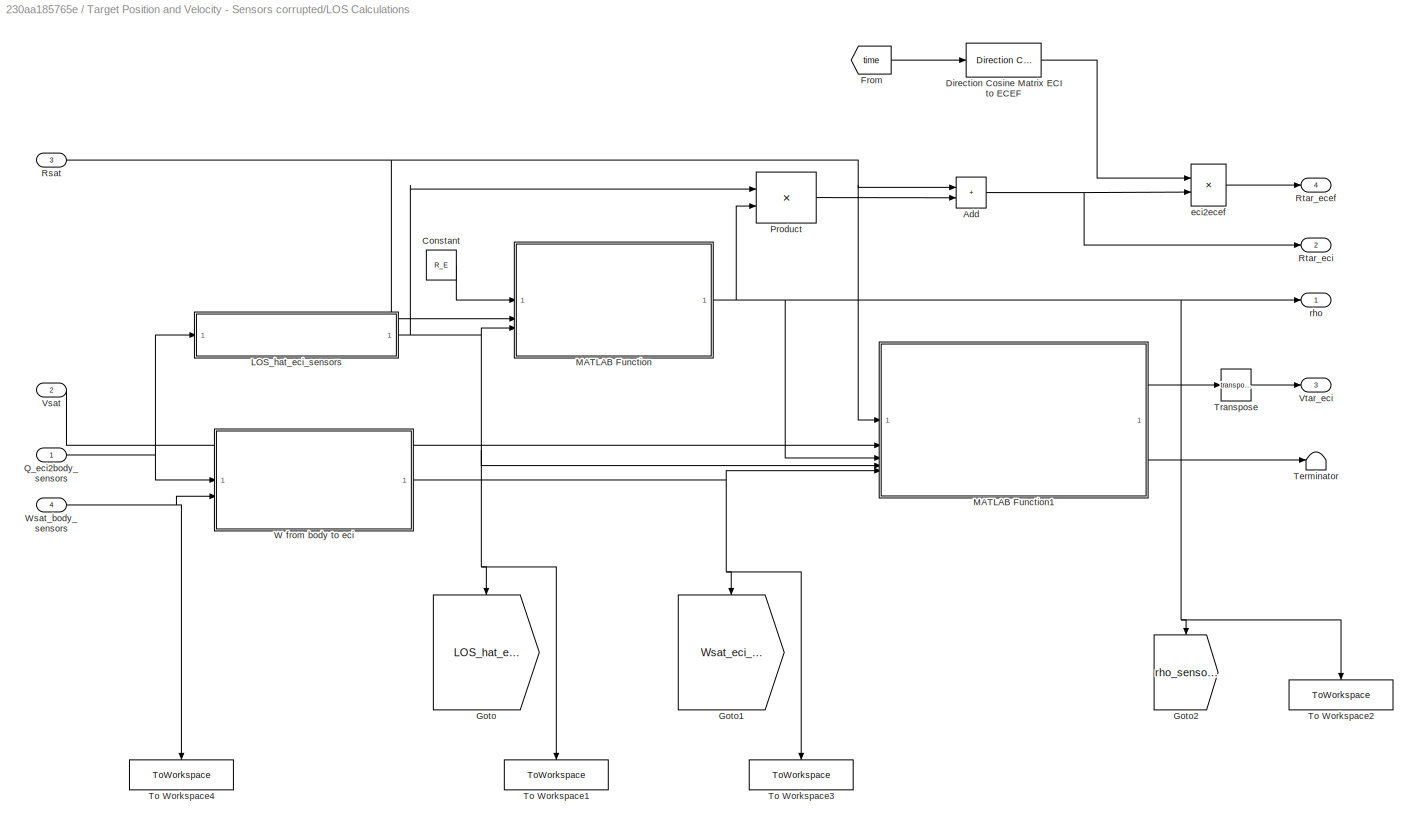
BLOCK [SubSystem] Target Position and Velocity - Sensors corrupted/LOS Calculations
BLOCK [Sum] Target Position and Velocity - Sensors corrupted/LOS Calculations/Add
  IconShape = rectangular
BLOCK [Constant] Target Position and Velocity - Sensors corrupted/LOS Calculations/Constant
  Value = R_E
BLOCK [Reference] Target Position and Velocity - Sensors corrupted/LOS Calculations/Direction Cosine Matrix ECI to ECEF  REF=aerolibtransform2/Direction Cosine Matrix
ECI to ECEF
  AttributesFormatString = %<red>
  SourceBlock = aerolibtransform2/Direction Cosine Matrix\nECI to ECEF
  SourceType = DCMECItoECEF
BLOCK [From] Target Position and Velocity - Sensors corrupted/LOS Calculations/From
  GotoTag = time
  TagVisibility = global
BLOCK [Goto] Target Position and Velocity - Sensors corrupted/LOS Calculations/Goto
  GotoTag = LOS_hat_eci_sensors
  NameLocation = left
  TagVisibility = global
BLOCK [Goto] Target Position and Velocity - Sensors corrupted/LOS Calculations/Goto1
  GotoTag = Wsat_eci_sensors
  NameLocation = left
  TagVisibility = global
BLOCK [Goto] Target Position and Velocity - Sensors corrupted/LOS Calculations/Goto2
  GotoTag = rho_sensors
  NameLocation = left
  TagVisibility = global
BLOCK [SubSystem] Target Position and Velocity - Sensors corrupted/LOS Calculations/LOS_hat_eci_sensors
BLOCK [Constant] Target Position and Velocity - Sensors corrupted/LOS Calculations/LOS_hat_eci_sensors/Constant
  Value = pointing_body
BLOCK [Outport] Target Position and Velocity - Sensors corrupted/LOS Calculations/LOS_hat_eci_sensors/LOS_hat_eci_sensors
BLOCK [Inport] Target Position and Velocity - Sensors corrupted/LOS Calculations/LOS_hat_eci_sensors/Q_eci2body_sensors
BLOCK [Reference] Target Position and Velocity - Sensors corrupted/LOS Calculations/LOS_hat_eci_sensors/Quaternion Inverse  REF=aerolibutil/Quaternion
Inverse
  SourceBlock = aerolibutil/Quaternion\nInverse
  SourceType = Quaternion Inverse
BLOCK [Reference] Target Position and Velocity - Sensors corrupted/LOS Calculations/LOS_hat_eci_sensors/Quaternion Rotation  REF=aerolibutil/Quaternion
Rotation
  SourceBlock = aerolibutil/Quaternion\nRotation
  SourceType = Quaternion Rotation
BLOCK [SubSystem] Target Position and Velocity - Sensors corrupted/LOS Calculations/MATLAB Function
  ErrorFcn = Stateflow.Translate.translate
  PermitHierarchicalResolution = ExplicitOnly
  SFBlockType = MATLAB Function
  TreatAsAtomicUnit = on
BLOCK [Demux] Target Position and Velocity - Sensors corrupted/LOS Calculations/MATLAB Function/ Demux 
  Outputs = 1
BLOCK [S-Function] Target Position and Velocity - Sensors corrupted/LOS Calculations/MATLAB Function/ SFunction 
  EnableBusSupport = off
  FunctionName = sf_sfun
  PortCounts = [3 2]
  SFcnIsStateOwnerBlock = off
  SFunctionDeploymentMode = off
  Tag = Stateflow S-Function 6
BLOCK [Terminator] Target Position and Velocity - Sensors corrupted/LOS Calculations/MATLAB Function/ Terminator 
BLOCK [Inport] Target Position and Velocity - Sensors corrupted/LOS Calculations/MATLAB Function/LOS_hat_eci_sensors
  Port = 3
BLOCK [Inport] Target Position and Velocity - Sensors corrupted/LOS Calculations/MATLAB Function/Rsat_eci
  Port = 2
BLOCK [Inport] Target Position and Velocity - Sensors corrupted/LOS Calculations/MATLAB Function/earthR
BLOCK [Outport] Target Position and Velocity - Sensors corrupted/LOS Calculations/MATLAB Function/rho
BLOCK [SubSystem] Target Position and Velocity - Sensors corrupted/LOS Calculations/MATLAB Function1
  ErrorFcn = Stateflow.Translate.translate
  PermitHierarchicalResolution = ExplicitOnly
  SFBlockType = MATLAB Function
  TreatAsAtomicUnit = on
BLOCK [Demux] Target Position and Velocity - Sensors corrupted/LOS Calculations/MATLAB Function1/ Demux 
  Outputs = 1
BLOCK [S-Function] Target Position and Velocity - Sensors corrupted/LOS Calculations/MATLAB Function1/ SFunction 
  EnableBusSupport = off
  FunctionName = sf_sfun
  PortCounts = [5 3]
  SFcnIsStateOwnerBlock = off
  SFunctionDeploymentMode = off
  Tag = Stateflow S-Function 7
BLOCK [Terminator] Target Position and Velocity - Sensors corrupted/LOS Calculations/MATLAB Function1/ Terminator 
BLOCK [Inport] Target Position and Velocity - Sensors corrupted/LOS Calculations/MATLAB Function1/LOS_hat_eci
  Port = 4
BLOCK [Inport] Target Position and Velocity - Sensors corrupted/LOS Calculations/MATLAB Function1/Rsat_eci
BLOCK [Inport] Target Position and Velocity - Sensors corrupted/LOS Calculations/MATLAB Function1/Vsat_eci
  Port = 2
BLOCK [Outport] Target Position and Velocity - Sensors corrupted/LOS Calculations/MATLAB Function1/Vtar_eci
BLOCK [Inport] Target Position and Velocity - Sensors corrupted/LOS Calculations/MATLAB Function1/Wsat_eci_sensors
  Port = 5
BLOCK [Inport] Target Position and Velocity - Sensors corrupted/LOS Calculations/MATLAB Function1/rho
  Port = 3
BLOCK [Outport] Target Position and Velocity - Sensors corrupted/LOS Calculations/MATLAB Function1/rho_dot
  Port = 2
BLOCK [Product] Target Position and Velocity - Sensors corrupted/LOS Calculations/Product
BLOCK [Inport] Target Position and Velocity - Sensors corrupted/LOS Calculations/Q_eci2body_sensors
BLOCK [Inport] Target Position and Velocity - Sensors corrupted/LOS Calculations/Rsat
  Port = 3
BLOCK [Outport] Target Position and Velocity - Sensors corrupted/LOS Calculations/Rtar_ecef
  Port = 4
BLOCK [Outport] Target Position and Velocity - Sensors corrupted/LOS Calculations/Rtar_eci
  Port = 2
BLOCK [Terminator] Target Position and Velocity - Sensors corrupted/LOS Calculations/Terminator
BLOCK [ToWorkspace] Target Position and Velocity - Sensors corrupted/LOS Calculations/To Workspace1
  FixptAsFi = on
  MaxDataPoints = inf
  NameLocation = left
  SampleTime = -1
  SaveFormat = Timeseries
  VariableName = LOS_hat_eci_sensors
BLOCK [ToWorkspace] Target Position and Velocity - Sensors corrupted/LOS Calculations/To Workspace2
  FixptAsFi = on
  MaxDataPoints = inf
  NameLocation = left
  SampleTime = -1
  SaveFormat = Timeseries
  VariableName = rho_sensors
BLOCK [ToWorkspace] Target Position and Velocity - Sensors corrupted/LOS Calculations/To Workspace3
  FixptAsFi = on
  MaxDataPoints = inf
  NameLocation = left
  SampleTime = -1
  SaveFormat = Timeseries
  VariableName = Wsat_eci_sensors
BLOCK [ToWorkspace] Target Position and Velocity - Sensors corrupted/LOS Calculations/To Workspace4
  FixptAsFi = on
  MaxDataPoints = inf
  NameLocation = left
  SampleTime = -1
  SaveFormat = Timeseries
  VariableName = Wsat_body_sensors
BLOCK [Math] Target Position and Velocity - Sensors corrupted/LOS Calculations/Transpose
  Operator = transpose
BLOCK [Inport] Target Position and Velocity - Sensors corrupted/LOS Calculations/Vsat
  Port = 2
BLOCK [Outport] Target Position and Velocity - Sensors corrupted/LOS Calculations/Vtar_eci
  Port = 3
BLOCK [SubSystem] Target Position and Velocity - Sensors corrupted/LOS Calculations/W from body to eci 
BLOCK [Inport] Target Position and Velocity - Sensors corrupted/LOS Calculations/W from body to eci /Q_eci2body_sensors
BLOCK [Reference] Target Position and Velocity - Sensors corrupted/LOS Calculations/W from body to eci /Quaternion Inverse  REF=aerolibutil/Quaternion
Inverse
  SourceBlock = aerolibutil/Quaternion\nInverse
  SourceType = Quaternion Inverse
BLOCK [Reference] Target Position and Velocity - Sensors corrupted/LOS Calculations/W from body to eci /Quaternion Rotation  REF=aerolibutil/Quaternion
Rotation
  SourceBlock = aerolibutil/Quaternion\nRotation
  SourceType = Quaternion Rotation
BLOCK [Inport] Target Position and Velocity - Sensors corrupted/LOS Calculations/W from body to eci /Wsat_body_sensors
  Port = 2
BLOCK [Outport] Target Position and Velocity - Sensors corrupted/LOS Calculations/W from body to eci /Wsat_eci_sensors
BLOCK [Inport] Target Position and Velocity - Sensors corrupted/LOS Calculations/Wsat_body_sensors
  Port = 4
BLOCK [Product] Target Position and Velocity - Sensors corrupted/LOS Calculations/eci2ecef
  Multiplication = Matrix(*)
BLOCK [Outport] Target Position and Velocity - Sensors corrupted/LOS Calculations/rho
BLOCK [SubSystem] Target Position and Velocity - Sensors corrupted/Pixel shift
BLOCK [Constant] Target Position and Velocity - Sensors corrupted/Pixel shift/Constant
  Value = [0;0;Omega_E]
BLOCK [Inport] Target Position and Velocity - Sensors corrupted/Pixel shift/Q_eci2body_sensors
BLOCK [Inport] Target Position and Velocity - Sensors corrupted/Pixel shift/Rtar_eci
  Port = 3
BLOCK [Selector] Target Position and Velocity - Sensors corrupted/Pixel shift/Selector2
  IndexOptions = Index vector (dialog)
  Indices = [1 2]
  InputPortWidth = 3
  OutputSizes = 1
BLOCK [SubSystem] Target Position and Velocity - Sensors corrupted/Pixel shift/UV calculation
BLOCK [SubSystem] Target Position and Velocity - Sensors corrupted/Pixel shift/UV calculation/True shift
BLOCK [Demux] Target Position and Velocity - Sensors corrupted/Pixel shift/UV calculation/True shift/Demux1
  Outputs = 2
BLOCK [Product] Target Position and Velocity - Sensors corrupted/Pixel shift/UV calculation/True shift/Divide1
  Inputs = */
BLOCK [Gain] Target Position and Velocity - Sensors corrupted/Pixel shift/UV calculation/True shift/Gain3
  Gain = K_optics
BLOCK [Inport] Target Position and Velocity - Sensors corrupted/Pixel shift/UV calculation/True shift/Vim_body
BLOCK [Inport] Target Position and Velocity - Sensors corrupted/Pixel shift/UV calculation/True shift/rho
  Port = 2
BLOCK [Outport] Target Position and Velocity - Sensors corrupted/Pixel shift/UV calculation/True shift/u
BLOCK [Outport] Target Position and Velocity - Sensors corrupted/Pixel shift/UV calculation/True shift/v
  Port = 2
BLOCK [Inport] Target Position and Velocity - Sensors corrupted/Pixel shift/UV calculation/Vim_body
BLOCK [Inport] Target Position and Velocity - Sensors corrupted/Pixel shift/UV calculation/rho
  Port = 2
BLOCK [Outport] Target Position and Velocity - Sensors corrupted/Pixel shift/UV calculation/u_real
BLOCK [Outport] Target Position and Velocity - Sensors corrupted/Pixel shift/UV calculation/v_real
  Port = 2
BLOCK [SubSystem] Target Position and Velocity - Sensors corrupted/Pixel shift/Vim_body
BLOCK [Reference] Target Position and Velocity - Sensors corrupted/Pixel shift/Vim_body/Quaternion Rotation  REF=aerolibutil/Quaternion
Rotation
  SourceBlock = aerolibutil/Quaternion\nRotation
  SourceType = Quaternion Rotation
BLOCK [Inport] Target Position and Velocity - Sensors corrupted/Pixel shift/Vim_body/q
BLOCK [Inport] Target Position and Velocity - Sensors corrupted/Pixel shift/Vim_body/vec
  Port = 2
BLOCK [Outport] Target Position and Velocity - Sensors corrupted/Pixel shift/Vim_body/vec_rot
BLOCK [SubSystem] Target Position and Velocity - Sensors corrupted/Pixel shift/Vim_eci
BLOCK [Reference] Target Position and Velocity - Sensors corrupted/Pixel shift/Vim_eci/Cross Product  REF=matrix_library/Cross Product
  LibrarySourceBlock = simulink/Matrix\nOperations/Cross Product
  SourceBlock = matrix_library/Cross Product
  SourceType = CrossProduct
BLOCK [Inport] Target Position and Velocity - Sensors corrupted/Pixel shift/Vim_eci/Rtar_eci
BLOCK [Sum] Target Position and Velocity - Sensors corrupted/Pixel shift/Vim_eci/Subtract
  IconShape = rectangular
  Inputs = +-
BLOCK [Outport] Target Position and Velocity - Sensors corrupted/Pixel shift/Vim_eci/Vim_eci
BLOCK [Inport] Target Position and Velocity - Sensors corrupted/Pixel shift/Vim_eci/Vtar_eci
  Port = 2
BLOCK [Inport] Target Position and Velocity - Sensors corrupted/Pixel shift/Vim_eci/We_eci
  Port = 3
BLOCK [Inport] Target Position and Velocity - Sensors corrupted/Pixel shift/Vtar_eci
  Port = 4
BLOCK [Inport] Target Position and Velocity - Sensors corrupted/Pixel shift/rho
  Port = 2
BLOCK [Outport] Target Position and Velocity - Sensors corrupted/Pixel shift/u_real
BLOCK [Outport] Target Position and Velocity - Sensors corrupted/Pixel shift/v_real
  Port = 2
BLOCK [Inport] Target Position and Velocity - Sensors corrupted/Q_eci2body_sensors
  Port = 3
BLOCK [ToWorkspace] Target Position and Velocity - Sensors corrupted/To Workspace
  FixptAsFi = on
  MaxDataPoints = inf
  SampleTime = -1
  VariableName = lla_tar_gps
BLOCK [ToWorkspace] Target Position and Velocity - Sensors corrupted/To Workspace1
  FixptAsFi = on
  MaxDataPoints = inf
  NameLocation = right
  SampleTime = -1
  SaveFormat = Timeseries
  VariableName = Q_eci2body_sensors
BLOCK [Inport] Target Position and Velocity - Sensors corrupted/V_eci
  Port = 2
BLOCK [Inport] Target Position and Velocity - Sensors corrupted/Wsat_body_sensors
  Port = 4
BLOCK [Inport] Target Position and Velocity - Sensors corrupted/X_eci
BLOCK [Outport] Target Position and Velocity - Sensors corrupted/u_real
BLOCK [Outport] Target Position and Velocity - Sensors corrupted/v_real
  Port = 2
BLOCK [ToWorkspace] To Workspace
  FixptAsFi = on
  MaxDataPoints = inf
  SampleTime = -1
  SaveFormat = Timeseries
  VariableName = rho_hat
BLOCK [ToWorkspace] To Workspace1
  FixptAsFi = on
  MaxDataPoints = inf
  SampleTime = -1
  SaveFormat = Timeseries
  VariableName = Q_eci2body
BLOCK [ToWorkspace] To Workspace10
  FixptAsFi = on
  MaxDataPoints = inf
  SampleTime = -1
  SaveFormat = Timeseries
  VariableName = v_hat
BLOCK [ToWorkspace] To Workspace11
  FixptAsFi = on
  MaxDataPoints = inf
  SampleTime = -1
  SaveFormat = Timeseries
  VariableName = V_eci
BLOCK [ToWorkspace] To Workspace12
  FixptAsFi = on
  MaxDataPoints = inf
  SampleTime = -1
  SaveFormat = Timeseries
  VariableName = Wsat_body
BLOCK [ToWorkspace] To Workspace13
  FixptAsFi = on
  MaxDataPoints = inf
  SampleTime = -1
  SaveFormat = Timeseries
  VariableName = X_eci_GPS
BLOCK [ToWorkspace] To Workspace14
  FixptAsFi = on
  MaxDataPoints = inf
  SampleTime = -1
  SaveFormat = Timeseries
  VariableName = V_eci_GPS
BLOCK [ToWorkspace] To Workspace2
  FixptAsFi = on
  MaxDataPoints = inf
  SampleTime = -1
  SaveFormat = Timeseries
  VariableName = X_eci
BLOCK [ToWorkspace] To Workspace3
  FixptAsFi = on
  MaxDataPoints = inf
  SampleTime = -1
  SaveFormat = Timeseries
  VariableName = u_OF
BLOCK [ToWorkspace] To Workspace4
  FixptAsFi = on
  MaxDataPoints = inf
  SampleTime = -1
  SaveFormat = Timeseries
  VariableName = v_OF
BLOCK [ToWorkspace] To Workspace5
  FixptAsFi = on
  MaxDataPoints = inf
  SampleTime = -1
  SaveFormat = Timeseries
  VariableName = u_real
BLOCK [ToWorkspace] To Workspace6
  FixptAsFi = on
  MaxDataPoints = inf
  SampleTime = -1
  SaveFormat = Timeseries
  VariableName = v_real
BLOCK [ToWorkspace] To Workspace7
  FixptAsFi = on
  MaxDataPoints = inf
  SampleTime = -1
  SaveFormat = Timeseries
  VariableName = u_sensors
BLOCK [ToWorkspace] To Workspace8
  FixptAsFi = on
  MaxDataPoints = inf
  SampleTime = -1
  SaveFormat = Timeseries
  VariableName = v_sensors
BLOCK [ToWorkspace] To Workspace9
  FixptAsFi = on
  MaxDataPoints = inf
  SampleTime = -1
  SaveFormat = Timeseries
  VariableName = u_hat
BLOCK [SubSystem] Velocity GPS Noise
BLOCK [Constant] Velocity GPS Noise/Constant
  Value = velocity_gps_ON
BLOCK [From] Velocity GPS Noise/From9
  GotoTag = V_eci
  TagVisibility = global
BLOCK [Switch] Velocity GPS Noise/Switch
  Criteria = u2 ~= 0
  InputSameDT = off
  SaturateOnIntegerOverflow = off
BLOCK [Outport] Velocity GPS Noise/V_eci
BLOCK [Inport] Velocity GPS Noise/V_eci_GPS
LINE Angular Rate Noise/Add:1 -> Angular Rate Noise/Switch:1
LINE Angular Rate Noise/Band-Limited White Noise:1 -> Angular Rate Noise/Add:1
LINE Angular Rate Noise/Constant:1 -> Angular Rate Noise/Switch:2
LINE Angular Rate Noise/Switch:1 -> Angular Rate Noise/Wsat_body_sensors:1
NET Angular Rate Noise/Wsat_body:1 -> Angular Rate Noise/Add:2, Angular Rate Noise/Switch:3
LINE Angular Rate Noise:1 -> Target Position and Velocity - Sensors corrupted:4
LINE Clock1:1 -> Goto7:1
LINE Constant:1 -> Estimation Filter:1
LINE Estimation Filter/EKF_rho/Constant:1 -> Estimation Filter/EKF_rho/Mux1:7
NET Estimation Filter/EKF_rho/EKF:1 -> Estimation Filter/EKF_rho/LOS to Rtar:1, Estimation Filter/EKF_rho/MATLAB Function1:5, Estimation Filter/EKF_rho/Pixel shift:1, Estimation Filter/EKF_rho/rho_GPS_OF_ekf:1
LINE Estimation Filter/EKF_rho/LOS to Rtar/Add:1 -> Estimation Filter/EKF_rho/LOS to Rtar/Rtar_eci:1
LINE Estimation Filter/EKF_rho/LOS to Rtar/LOS_hat_eci:1 -> Estimation Filter/EKF_rho/LOS to Rtar/Product:1
LINE Estimation Filter/EKF_rho/LOS to Rtar/Product:1 -> Estimation Filter/EKF_rho/LOS to Rtar/Add:1
LINE Estimation Filter/EKF_rho/LOS to Rtar/Rsat_eci:1 -> Estimation Filter/EKF_rho/LOS to Rtar/Add:2
LINE Estimation Filter/EKF_rho/LOS to Rtar/rho:1 -> Estimation Filter/EKF_rho/LOS to Rtar/Product:2
LINE Estimation Filter/EKF_rho/LOS to Rtar:1 -> Estimation Filter/EKF_rho/Pixel shift:2
NET Estimation Filter/EKF_rho/LOS_hat_eci_sensors:1 -> Estimation Filter/EKF_rho/LOS to Rtar:3, Estimation Filter/EKF_rho/MATLAB Function1:3, Estimation Filter/EKF_rho/Mux1:4
LINE Estimation Filter/EKF_rho/MATLAB Function1:1 -> Estimation Filter/EKF_rho/Transpose:1
LINE Estimation Filter/EKF_rho/MATLAB Function1:2 -> Estimation Filter/EKF_rho/Terminator:1
LINE Estimation Filter/EKF_rho/Mux1:1 -> Estimation Filter/EKF_rho/Signal Specification:1
LINE Estimation Filter/EKF_rho/Mux:1 -> Estimation Filter/EKF_rho/Zero-Order Hold:1
LINE Estimation Filter/EKF_rho/Pixel shift/Constant:1 -> Estimation Filter/EKF_rho/Pixel shift/Vim_eci:3
LINE Estimation Filter/EKF_rho/Pixel shift/Q_eci2body:1 -> Estimation Filter/EKF_rho/Pixel shift/Vim_body:1
LINE Estimation Filter/EKF_rho/Pixel shift/Rtar_eci:1 -> Estimation Filter/EKF_rho/Pixel shift/Vim_eci:1
LINE Estimation Filter/EKF_rho/Pixel shift/Selector2:1 -> Estimation Filter/EKF_rho/Pixel shift/UV calculation:1
LINE Estimation Filter/EKF_rho/Pixel shift/UV calculation/True shift/Demux1:1 -> Estimation Filter/EKF_rho/Pixel shift/UV calculation/True shift/u:1
LINE Estimation Filter/EKF_rho/Pixel shift/UV calculation/True shift/Demux1:2 -> Estimation Filter/EKF_rho/Pixel shift/UV calculation/True shift/v:1
LINE Estimation Filter/EKF_rho/Pixel shift/UV calculation/True shift/Divide1:1 -> Estimation Filter/EKF_rho/Pixel shift/UV calculation/True shift/Demux1:1
LINE Estimation Filter/EKF_rho/Pixel shift/UV calculation/True shift/Gain3:1 -> Estimation Filter/EKF_rho/Pixel shift/UV calculation/True shift/Divide1:1
LINE Estimation Filter/EKF_rho/Pixel shift/UV calculation/True shift/Vim_body:1 -> Estimation Filter/EKF_rho/Pixel shift/UV calculation/True shift/Gain3:1
LINE Estimation Filter/EKF_rho/Pixel shift/UV calculation/True shift/rho:1 -> Estimation Filter/EKF_rho/Pixel shift/UV calculation/True shift/Divide1:2
LINE Estimation Filter/EKF_rho/Pixel shift/UV calculation/True shift:1 -> Estimation Filter/EKF_rho/Pixel shift/UV calculation/u_real:1
LINE Estimation Filter/EKF_rho/Pixel shift/UV calculation/True shift:2 -> Estimation Filter/EKF_rho/Pixel shift/UV calculation/v_real:1
LINE Estimation Filter/EKF_rho/Pixel shift/UV calculation/Vim_body:1 -> Estimation Filter/EKF_rho/Pixel shift/UV calculation/True shift:1
LINE Estimation Filter/EKF_rho/Pixel shift/UV calculation/rho:1 -> Estimation Filter/EKF_rho/Pixel shift/UV calculation/True shift:2
LINE Estimation Filter/EKF_rho/Pixel shift/UV calculation:1 -> Estimation Filter/EKF_rho/Pixel shift/u_real:1
LINE Estimation Filter/EKF_rho/Pixel shift/UV calculation:2 -> Estimation Filter/EKF_rho/Pixel shift/v_real:1
LINE Estimation Filter/EKF_rho/Pixel shift/Vim_body/Quaternion Rotation:1 -> Estimation Filter/EKF_rho/Pixel shift/Vim_body/vec_rot:1
LINE Estimation Filter/EKF_rho/Pixel shift/Vim_body/q:1 -> Estimation Filter/EKF_rho/Pixel shift/Vim_body/Quaternion Rotation:1
LINE Estimation Filter/EKF_rho/Pixel shift/Vim_body/vec:1 -> Estimation Filter/EKF_rho/Pixel shift/Vim_body/Quaternion Rotation:2
LINE Estimation Filter/EKF_rho/Pixel shift/Vim_body:1 -> Estimation Filter/EKF_rho/Pixel shift/Selector2:1
LINE Estimation Filter/EKF_rho/Pixel shift/Vim_eci/Cross Product:1 -> Estimation Filter/EKF_rho/Pixel shift/Vim_eci/Subtract:2
LINE Estimation Filter/EKF_rho/Pixel shift/Vim_eci/Rtar_eci:1 -> Estimation Filter/EKF_rho/Pixel shift/Vim_eci/Cross Product:2
LINE Estimation Filter/EKF_rho/Pixel shift/Vim_eci/Subtract:1 -> Estimation Filter/EKF_rho/Pixel shift/Vim_eci/Vim_eci:1
LINE Estimation Filter/EKF_rho/Pixel shift/Vim_eci/Vtar_eci:1 -> Estimation Filter/EKF_rho/Pixel shift/Vim_eci/Subtract:1
LINE Estimation Filter/EKF_rho/Pixel shift/Vim_eci/We_eci:1 -> Estimation Filter/EKF_rho/Pixel shift/Vim_eci/Cross Product:1
LINE Estimation Filter/EKF_rho/Pixel shift/Vim_eci:1 -> Estimation Filter/EKF_rho/Pixel shift/Vim_body:2
LINE Estimation Filter/EKF_rho/Pixel shift/Vtar_eci:1 -> Estimation Filter/EKF_rho/Pixel shift/Vim_eci:2
LINE Estimation Filter/EKF_rho/Pixel shift/rho:1 -> Estimation Filter/EKF_rho/Pixel shift/UV calculation:2
LINE Estimation Filter/EKF_rho/Pixel shift:1 -> Estimation Filter/EKF_rho/u_real:1
LINE Estimation Filter/EKF_rho/Pixel shift:2 -> Estimation Filter/EKF_rho/v_real:1
NET Estimation Filter/EKF_rho/Q_eci2body_sensors:1 -> Estimation Filter/EKF_rho/Mux1:6, Estimation Filter/EKF_rho/Pixel shift:3
LINE Estimation Filter/EKF_rho/Signal Specification:1 -> Estimation Filter/EKF_rho/Zero-Order Hold1:1
LINE Estimation Filter/EKF_rho/Transpose:1 -> Estimation Filter/EKF_rho/Pixel shift:4
NET Estimation Filter/EKF_rho/V_GPS:1 -> Estimation Filter/EKF_rho/MATLAB Function1:2, Estimation Filter/EKF_rho/Mux1:3
NET Estimation Filter/EKF_rho/Wsat_eci_sensors:1 -> Estimation Filter/EKF_rho/MATLAB Function1:4, Estimation Filter/EKF_rho/Mux1:5
NET Estimation Filter/EKF_rho/X_GPS:1 -> Estimation Filter/EKF_rho/LOS to Rtar:2, Estimation Filter/EKF_rho/MATLAB Function1:1, Estimation Filter/EKF_rho/Mux1:2
NET Estimation Filter/EKF_rho/Zero-Order Hold1:1 -> Estimation Filter/EKF_rho/EKF:1, Estimation Filter/EKF_rho/EKF:3
LINE Estimation Filter/EKF_rho/Zero-Order Hold:1 -> Estimation Filter/EKF_rho/EKF:2
LINE Estimation Filter/EKF_rho/timeStep:1 -> Estimation Filter/EKF_rho/Mux1:1
LINE Estimation Filter/EKF_rho/u_OF:1 -> Estimation Filter/EKF_rho/Mux:1
LINE Estimation Filter/EKF_rho/v_OF:1 -> Estimation Filter/EKF_rho/Mux:2
LINE Estimation Filter:1 -> To Workspace:1
LINE Estimation Filter:2 -> To Workspace9:1
LINE Estimation Filter:3 -> To Workspace10:1
LINE From11:1 -> Estimation Filter:7
LINE From12:1 -> Estimation Filter:8
LINE From13:1 -> Target Position and Velocity - Ideal World:3
LINE From1:1 -> Estimation Filter:4
LINE From20:1 -> Target Position and Velocity - Ideal World:4
LINE From2:1 -> Estimation Filter:2
LINE From33:1 -> Target Position and Velocity - Ideal World:1
LINE From35:1 -> Target Position and Velocity - Ideal World:2
LINE From3:1 -> Position GPS Noise:1
LINE From4:1 -> Quaternion Noise:1
LINE From5:1 -> Velocity GPS Noise:1
LINE From6:1 -> Angular Rate Noise:1
LINE From7:1 -> Estimation Filter:5
LINE From8:1 -> Estimation Filter:6
LINE From:1 -> Estimation Filter:3
LINE Main/Attiude Controller/Controller OFF/Constant1:1 -> Main/Attiude Controller/Controller OFF/dh_dt:1
LINE Main/Attiude Controller/Controller OFF/Constant:1 -> Main/Attiude Controller/Controller OFF/h:1
LINE Main/Attiude Controller/Nadir Pointing Controller/Nadir Pointing/Constant1:1 -> Main/Attiude Controller/Nadir Pointing Controller/Nadir Pointing/Mux:3
LINE Main/Attiude Controller/Nadir Pointing Controller/Nadir Pointing/Constant2:1 -> Main/Attiude Controller/Nadir Pointing Controller/Nadir Pointing/Mux:2
LINE Main/Attiude Controller/Nadir Pointing Controller/Nadir Pointing/Constant:1 -> Main/Attiude Controller/Nadir Pointing Controller/Nadir Pointing/Mux:1
NET Main/Attiude Controller/Nadir Pointing Controller/Nadir Pointing/Direction Cosine Matrix to Quaternions:1 -> Main/Attiude Controller/Nadir Pointing Controller/Nadir Pointing/Display:1, Main/Attiude Controller/Nadir Pointing Controller/Nadir Pointing/Quaternion Multiplication:2
LINE Main/Attiude Controller/Nadir Pointing Controller/Nadir Pointing/Mux:1 -> Main/Attiude Controller/Nadir Pointing Controller/Nadir Pointing/w_des:1
LINE Main/Attiude Controller/Nadir Pointing Controller/Nadir Pointing/Quaternion Conjugate:1 -> Main/Attiude Controller/Nadir Pointing Controller/Nadir Pointing/q_Err:1
LINE Main/Attiude Controller/Nadir Pointing Controller/Nadir Pointing/Quaternion Inverse:1 -> Main/Attiude Controller/Nadir Pointing Controller/Nadir Pointing/Quaternion Multiplication:1
LINE Main/Attiude Controller/Nadir Pointing Controller/Nadir Pointing/Quaternion Multiplication:1 -> Main/Attiude Controller/Nadir Pointing Controller/Nadir Pointing/Quaternion Conjugate:1
LINE Main/Attiude Controller/Nadir Pointing Controller/Nadir Pointing/Subsystem/Cross Product1:1 -> Main/Attiude Controller/Nadir Pointing Controller/Nadir Pointing/Subsystem/Matrix Concatenate:1
LINE Main/Attiude Controller/Nadir Pointing Controller/Nadir Pointing/Subsystem/Cross Product:1 -> Main/Attiude Controller/Nadir Pointing Controller/Nadir Pointing/Subsystem/Normalize Vector1:1
NET Main/Attiude Controller/Nadir Pointing Controller/Nadir Pointing/Subsystem/Gain:1 -> Main/Attiude Controller/Nadir Pointing Controller/Nadir Pointing/Subsystem/Cross Product1:2, Main/Attiude Controller/Nadir Pointing Controller/Nadir Pointing/Subsystem/Matrix Concatenate:3
LINE Main/Attiude Controller/Nadir Pointing Controller/Nadir Pointing/Subsystem/Matrix Concatenate:1 -> Main/Attiude Controller/Nadir Pointing Controller/Nadir Pointing/Subsystem/Transpose:1
NET Main/Attiude Controller/Nadir Pointing Controller/Nadir Pointing/Subsystem/Normalize Vector1:1 -> Main/Attiude Controller/Nadir Pointing Controller/Nadir Pointing/Subsystem/Cross Product1:1, Main/Attiude Controller/Nadir Pointing Controller/Nadir Pointing/Subsystem/Matrix Concatenate:2
LINE Main/Attiude Controller/Nadir Pointing Controller/Nadir Pointing/Subsystem/Normalize Vector:1 -> Main/Attiude Controller/Nadir Pointing Controller/Nadir Pointing/Subsystem/Gain:1
LINE Main/Attiude Controller/Nadir Pointing Controller/Nadir Pointing/Subsystem/Transpose:1 -> Main/Attiude Controller/Nadir Pointing Controller/Nadir Pointing/Subsystem/DCM_ECI2orb:1
NET Main/Attiude Controller/Nadir Pointing Controller/Nadir Pointing/Subsystem/r_ECI:1 -> Main/Attiude Controller/Nadir Pointing Controller/Nadir Pointing/Subsystem/Cross Product:1, Main/Attiude Controller/Nadir Pointing Controller/Nadir Pointing/Subsystem/Normalize Vector:1
LINE Main/Attiude Controller/Nadir Pointing Controller/Nadir Pointing/Subsystem/v_ECI:1 -> Main/Attiude Controller/Nadir Pointing Controller/Nadir Pointing/Subsystem/Cross Product:2
LINE Main/Attiude Controller/Nadir Pointing Controller/Nadir Pointing/Subsystem:1 -> Main/Attiude Controller/Nadir Pointing Controller/Nadir Pointing/Direction Cosine Matrix to Quaternions:1
LINE Main/Attiude Controller/Nadir Pointing Controller/Nadir Pointing/q_ECI2body:1 -> Main/Attiude Controller/Nadir Pointing Controller/Nadir Pointing/Quaternion Inverse:1
LINE Main/Attiude Controller/Nadir Pointing Controller/Nadir Pointing/r_ECI:1 -> Main/Attiude Controller/Nadir Pointing Controller/Nadir Pointing/Subsystem:1
LINE Main/Attiude Controller/Nadir Pointing Controller/Nadir Pointing/v_ECI:1 -> Main/Attiude Controller/Nadir Pointing Controller/Nadir Pointing/Subsystem:2
LINE Main/Attiude Controller/Nadir Pointing Controller/Nadir Pointing:1 -> Main/Attiude Controller/Nadir Pointing Controller/Nadir pointing:1
LINE Main/Attiude Controller/Nadir Pointing Controller/Nadir Pointing:2 -> Main/Attiude Controller/Nadir Pointing Controller/Nadir pointing:3
LINE Main/Attiude Controller/Nadir Pointing Controller/Nadir pointing/Add2:1 -> Main/Attiude Controller/Nadir Pointing Controller/Nadir pointing/Gain3:1
LINE Main/Attiude Controller/Nadir Pointing Controller/Nadir pointing/Gain2:1 -> Main/Attiude Controller/Nadir Pointing Controller/Nadir pointing/Product1:2
LINE Main/Attiude Controller/Nadir Pointing Controller/Nadir pointing/Gain3:1 -> Main/Attiude Controller/Nadir Pointing Controller/Nadir pointing/Sum2:2
LINE Main/Attiude Controller/Nadir Pointing Controller/Nadir pointing/Product1:1 -> Main/Attiude Controller/Nadir Pointing Controller/Nadir pointing/Sum2:1
LINE Main/Attiude Controller/Nadir Pointing Controller/Nadir pointing/Selector3:1 -> Main/Attiude Controller/Nadir Pointing Controller/Nadir pointing/Gain2:1
LINE Main/Attiude Controller/Nadir Pointing Controller/Nadir pointing/Selector4:1 -> Main/Attiude Controller/Nadir Pointing Controller/Nadir pointing/Product1:1
LINE Main/Attiude Controller/Nadir Pointing Controller/Nadir pointing/Sum2:1 -> Main/Attiude Controller/Nadir Pointing Controller/Nadir pointing/g:1
LINE Main/Attiude Controller/Nadir Pointing Controller/Nadir pointing/omega_b:1 -> Main/Attiude Controller/Nadir Pointing Controller/Nadir pointing/Add2:1
LINE Main/Attiude Controller/Nadir Pointing Controller/Nadir pointing/omega_des_b:1 -> Main/Attiude Controller/Nadir Pointing Controller/Nadir pointing/Add2:2
NET Main/Attiude Controller/Nadir Pointing Controller/Nadir pointing/qErr:1 -> Main/Attiude Controller/Nadir Pointing Controller/Nadir pointing/Selector3:1, Main/Attiude Controller/Nadir Pointing Controller/Nadir pointing/Selector4:1
LINE Main/Attiude Controller/Nadir Pointing Controller/Nadir pointing:1 -> Main/Attiude Controller/Nadir Pointing Controller/RW Saturation:1
LINE Main/Attiude Controller/Nadir Pointing Controller/RW Saturation/Add:1 -> Main/Attiude Controller/Nadir Pointing Controller/RW Saturation/Integrator1:1
LINE Main/Attiude Controller/Nadir Pointing Controller/RW Saturation/Constant:1 -> Main/Attiude Controller/Nadir Pointing Controller/RW Saturation/Product:1
LINE Main/Attiude Controller/Nadir Pointing Controller/RW Saturation/Derivative1:1 -> Main/Attiude Controller/Nadir Pointing Controller/RW Saturation/Saturation:1
LINE Main/Attiude Controller/Nadir Pointing Controller/RW Saturation/Derivative:1 -> Main/Attiude Controller/Nadir Pointing Controller/RW Saturation/Product:2
LINE Main/Attiude Controller/Nadir Pointing Controller/RW Saturation/Integrator1:1 -> Main/Attiude Controller/Nadir Pointing Controller/RW Saturation/Saturation1:1
LINE Main/Attiude Controller/Nadir Pointing Controller/RW Saturation/Integrator:1 -> Main/Attiude Controller/Nadir Pointing Controller/RW Saturation/h:1
LINE Main/Attiude Controller/Nadir Pointing Controller/RW Saturation/Product:1 -> Main/Attiude Controller/Nadir Pointing Controller/RW Saturation/Add:2
LINE Main/Attiude Controller/Nadir Pointing Controller/RW Saturation/Saturation1:1 -> Main/Attiude Controller/Nadir Pointing Controller/RW Saturation/Derivative1:1
NET Main/Attiude Controller/Nadir Pointing Controller/RW Saturation/Saturation:1 -> Main/Attiude Controller/Nadir Pointing Controller/RW Saturation/Integrator:1, Main/Attiude Controller/Nadir Pointing Controller/RW Saturation/dh_dt:1
LINE Main/Attiude Controller/Nadir Pointing Controller/RW Saturation/g:1 -> Main/Attiude Controller/Nadir Pointing Controller/RW Saturation/Add:1
LINE Main/Attiude Controller/Nadir Pointing Controller/RW Saturation/omega:1 -> Main/Attiude Controller/Nadir Pointing Controller/RW Saturation/Derivative:1
LINE Main/Attiude Controller/Nadir Pointing Controller/RW Saturation:1 -> Main/Attiude Controller/Nadir Pointing Controller/h:1
LINE Main/Attiude Controller/Nadir Pointing Controller/RW Saturation:2 -> Main/Attiude Controller/Nadir Pointing Controller/dh_dt:1
NET Main/Attiude Controller/Nadir Pointing Controller/omega_b:1 -> Main/Attiude Controller/Nadir Pointing Controller/Nadir pointing:2, Main/Attiude Controller/Nadir Pointing Controller/RW Saturation:2
LINE Main/Attiude Controller/Nadir Pointing Controller/q_ECI2body:1 -> Main/Attiude Controller/Nadir Pointing Controller/Nadir Pointing:3
LINE Main/Attiude Controller/Nadir Pointing Controller/r_ECI:1 -> Main/Attiude Controller/Nadir Pointing Controller/Nadir Pointing:1
LINE Main/Attiude Controller/Nadir Pointing Controller/v_ECI:1 -> Main/Attiude Controller/Nadir Pointing Controller/Nadir Pointing:2
LINE Main/Attiude Controller:1 -> Main/Spacecraft Dynamics:2
LINE Main/Attiude Controller:2 -> Main/Spacecraft Dynamics:3
LINE Main/Environmental Torques/Environmental Torques OFF/Constant:1 -> Main/Environmental Torques/Environmental Torques OFF/T_env:1
LINE Main/Environmental Torques/Environmental Torques/Add:1 -> Main/Environmental Torques/Environmental Torques/T_env:1
LINE Main/Environmental Torques/Environmental Torques/Aerodynamic Torque  /Constant1:1 -> Main/Environmental Torques/Environmental Torques/Aerodynamic Torque  /NRLMSISE-00 Atmosphere Model:2
LINE Main/Environmental Torques/Environmental Torques/Aerodynamic Torque  /Constant2:1 -> Main/Environmental Torques/Environmental Torques/Aerodynamic Torque  /NRLMSISE-00 Atmosphere Model:3
LINE Main/Environmental Torques/Environmental Torques/Aerodynamic Torque  /Constant3:1 -> Main/Environmental Torques/Environmental Torques/Aerodynamic Torque  /NRLMSISE-00 Atmosphere Model:4
LINE Main/Environmental Torques/Environmental Torques/Aerodynamic Torque  /Constant:1 -> Main/Environmental Torques/Environmental Torques/Aerodynamic Torque  /Cross Product1:2
LINE Main/Environmental Torques/Environmental Torques/Aerodynamic Torque  /Cross Product1:1 -> Main/Environmental Torques/Environmental Torques/Aerodynamic Torque  /Tdrag:1
LINE Main/Environmental Torques/Environmental Torques/Aerodynamic Torque  /DCM_eci2body:1 -> Main/Environmental Torques/Environmental Torques/Aerodynamic Torque  /Matrix Multiply:1
LINE Main/Environmental Torques/Environmental Torques/Aerodynamic Torque  /ECI Position to LLA:1 -> Main/Environmental Torques/Environmental Torques/Aerodynamic Torque  /NRLMSISE-00 Atmosphere Model:1
LINE Main/Environmental Torques/Environmental Torques/Aerodynamic Torque  /Gain:1 -> Main/Environmental Torques/Environmental Torques/Aerodynamic Torque  /Product:2
LINE Main/Environmental Torques/Environmental Torques/Aerodynamic Torque  /Interpreted MATLAB Function:1 -> Main/Environmental Torques/Environmental Torques/Aerodynamic Torque  /Gain:1
LINE Main/Environmental Torques/Environmental Torques/Aerodynamic Torque  /Matrix Multiply:1 -> Main/Environmental Torques/Environmental Torques/Aerodynamic Torque  /Product1:1
LINE Main/Environmental Torques/Environmental Torques/Aerodynamic Torque  /NRLMSISE-00 Atmosphere Model:1 -> Main/Environmental Torques/Environmental Torques/Aerodynamic Torque  /Terminator5:1
LINE Main/Environmental Torques/Environmental Torques/Aerodynamic Torque  /NRLMSISE-00 Atmosphere Model:2 -> Main/Environmental Torques/Environmental Torques/Aerodynamic Torque  /Selector:1
LINE Main/Environmental Torques/Environmental Torques/Aerodynamic Torque  /Normalize Vector:1 -> Main/Environmental Torques/Environmental Torques/Aerodynamic Torque  /Matrix Multiply:2
LINE Main/Environmental Torques/Environmental Torques/Aerodynamic Torque  /Product1:1 -> Main/Environmental Torques/Environmental Torques/Aerodynamic Torque  /Cross Product1:1
LINE Main/Environmental Torques/Environmental Torques/Aerodynamic Torque  /Product:1 -> Main/Environmental Torques/Environmental Torques/Aerodynamic Torque  /Product1:2
LINE Main/Environmental Torques/Environmental Torques/Aerodynamic Torque  /Selector:1 -> Main/Environmental Torques/Environmental Torques/Aerodynamic Torque  /Product:1
NET Main/Environmental Torques/Environmental Torques/Aerodynamic Torque  /V_eci:1 -> Main/Environmental Torques/Environmental Torques/Aerodynamic Torque  /Interpreted MATLAB Function:1, Main/Environmental Torques/Environmental Torques/Aerodynamic Torque  /Normalize Vector:1
LINE Main/Environmental Torques/Environmental Torques/Aerodynamic Torque  /X_eci:1 -> Main/Environmental Torques/Environmental Torques/Aerodynamic Torque  /ECI Position to LLA:1
LINE Main/Environmental Torques/Environmental Torques/Aerodynamic Torque  :1 -> Main/Environmental Torques/Environmental Torques/Add:2
LINE Main/Environmental Torques/Environmental Torques/Gravity Gradient Torque/Constant:1 -> Main/Environmental Torques/Environmental Torques/Gravity Gradient Torque/Matrix Multiply2:1
LINE Main/Environmental Torques/Environmental Torques/Gravity Gradient Torque/Cross Product:1 -> Main/Environmental Torques/Environmental Torques/Gravity Gradient Torque/Gain:1
LINE Main/Environmental Torques/Environmental Torques/Gravity Gradient Torque/DCM_eci2body:1 -> Main/Environmental Torques/Environmental Torques/Gravity Gradient Torque/Matrix Multiply:1
LINE Main/Environmental Torques/Environmental Torques/Gravity Gradient Torque/Divide:1 -> Main/Environmental Torques/Environmental Torques/Gravity Gradient Torque/Tgg:1
LINE Main/Environmental Torques/Environmental Torques/Gravity Gradient Torque/Gain:1 -> Main/Environmental Torques/Environmental Torques/Gravity Gradient Torque/Divide:1
LINE Main/Environmental Torques/Environmental Torques/Gravity Gradient Torque/Interpreted MATLAB Function:1 -> Main/Environmental Torques/Environmental Torques/Gravity Gradient Torque/Divide:2
LINE Main/Environmental Torques/Environmental Torques/Gravity Gradient Torque/Matrix Multiply2:1 -> Main/Environmental Torques/Environmental Torques/Gravity Gradient Torque/Cross Product:2
LINE Main/Environmental Torques/Environmental Torques/Gravity Gradient Torque/Matrix Multiply:1 -> Main/Environmental Torques/Environmental Torques/Gravity Gradient Torque/Normalize Vector1:1
NET Main/Environmental Torques/Environmental Torques/Gravity Gradient Torque/Normalize Vector1:1 -> Main/Environmental Torques/Environmental Torques/Gravity Gradient Torque/Cross Product:1, Main/Environmental Torques/Environmental Torques/Gravity Gradient Torque/Matrix Multiply2:2
NET Main/Environmental Torques/Environmental Torques/Gravity Gradient Torque/X_eci:1 -> Main/Environmental Torques/Environmental Torques/Gravity Gradient Torque/Interpreted MATLAB Function:1, Main/Environmental Torques/Environmental Torques/Gravity Gradient Torque/Matrix Multiply:2
LINE Main/Environmental Torques/Environmental Torques/Gravity Gradient Torque:1 -> Main/Environmental Torques/Environmental Torques/Add:1
LINE Main/Environmental Torques/Environmental Torques/Magnetic Torque/Constant1:1 -> Main/Environmental Torques/Environmental Torques/Magnetic Torque/Product:2
LINE Main/Environmental Torques/Environmental Torques/Magnetic Torque/Constant:1 -> Main/Environmental Torques/Environmental Torques/Magnetic Torque/Product:1
LINE Main/Environmental Torques/Environmental Torques/Magnetic Torque/Cross Product2:1 -> Main/Environmental Torques/Environmental Torques/Magnetic Torque/Product4:2
LINE Main/Environmental Torques/Environmental Torques/Magnetic Torque/DCM_eci2body:1 -> Main/Environmental Torques/Environmental Torques/Magnetic Torque/Product4:1
LINE Main/Environmental Torques/Environmental Torques/Magnetic Torque/Direction Cosine Matrix ECI to ECEF:1 -> Main/Environmental Torques/Environmental Torques/Magnetic Torque/Transpose:1
LINE Main/Environmental Torques/Environmental Torques/Magnetic Torque/MatrixMultiply:1 -> Main/Environmental Torques/Environmental Torques/Magnetic Torque/Cross Product2:2
LINE Main/Environmental Torques/Environmental Torques/Magnetic Torque/Product4:1 -> Main/Environmental Torques/Environmental Torques/Magnetic Torque/Tmag:1
LINE Main/Environmental Torques/Environmental Torques/Magnetic Torque/Product:1 -> Main/Environmental Torques/Environmental Torques/Magnetic Torque/Cross Product2:1
LINE Main/Environmental Torques/Environmental Torques/Magnetic Torque/Subsystem/Demux:1 -> Main/Environmental Torques/Environmental Torques/Magnetic Torque/Subsystem/World Magnetic Model:1
NET Main/Environmental Torques/Environmental Torques/Magnetic Torque/Subsystem/Demux:2 -> Main/Environmental Torques/Environmental Torques/Magnetic Torque/Subsystem/Mux:1, Main/Environmental Torques/Environmental Torques/Magnetic Torque/Subsystem/World Magnetic Model:2
NET Main/Environmental Torques/Environmental Torques/Magnetic Torque/Subsystem/Demux:3 -> Main/Environmental Torques/Environmental Torques/Magnetic Torque/Subsystem/Mux:2, Main/Environmental Torques/Environmental Torques/Magnetic Torque/Subsystem/World Magnetic Model:3
LINE Main/Environmental Torques/Environmental Torques/Magnetic Torque/Subsystem/Direction Cosine Matrix ECEF to NED:1 -> Main/Environmental Torques/Environmental Torques/Magnetic Torque/Subsystem/Transpose:1
LINE Main/Environmental Torques/Environmental Torques/Magnetic Torque/Subsystem/ECI Position to LLA:1 -> Main/Environmental Torques/Environmental Torques/Magnetic Torque/Subsystem/Selector:1
LINE Main/Environmental Torques/Environmental Torques/Magnetic Torque/Subsystem/Gain:1 -> Main/Environmental Torques/Environmental Torques/Magnetic Torque/Subsystem/Matrix Multiply:2
LINE Main/Environmental Torques/Environmental Torques/Magnetic Torque/Subsystem/Matrix Multiply:1 -> Main/Environmental Torques/Environmental Torques/Magnetic Torque/Subsystem/MagField_ECEF:1
LINE Main/Environmental Torques/Environmental Torques/Magnetic Torque/Subsystem/Mux:1 -> Main/Environmental Torques/Environmental Torques/Magnetic Torque/Subsystem/Direction Cosine Matrix ECEF to NED:1
LINE Main/Environmental Torques/Environmental Torques/Magnetic Torque/Subsystem/Selector:1 -> Main/Environmental Torques/Environmental Torques/Magnetic Torque/Subsystem/Demux:1
LINE Main/Environmental Torques/Environmental Torques/Magnetic Torque/Subsystem/Transpose:1 -> Main/Environmental Torques/Environmental Torques/Magnetic Torque/Subsystem/Matrix Multiply:1
LINE Main/Environmental Torques/Environmental Torques/Magnetic Torque/Subsystem/World Magnetic Model:1 -> Main/Environmental Torques/Environmental Torques/Magnetic Torque/Subsystem/Gain:1
LINE Main/Environmental Torques/Environmental Torques/Magnetic Torque/Subsystem/Xi:1 -> Main/Environmental Torques/Environmental Torques/Magnetic Torque/Subsystem/ECI Position to LLA:1
LINE Main/Environmental Torques/Environmental Torques/Magnetic Torque/Subsystem:1 -> Main/Environmental Torques/Environmental Torques/Magnetic Torque/MatrixMultiply:2
LINE Main/Environmental Torques/Environmental Torques/Magnetic Torque/Transpose:1 -> Main/Environmental Torques/Environmental Torques/Magnetic Torque/MatrixMultiply:1
LINE Main/Environmental Torques/Environmental Torques/Magnetic Torque/X_eci:1 -> Main/Environmental Torques/Environmental Torques/Magnetic Torque/Subsystem:1
LINE Main/Environmental Torques/Environmental Torques/Magnetic Torque:1 -> Main/Environmental Torques/Environmental Torques/Add:4
NET Main/Environmental Torques/Environmental Torques/Quaternions to Direction Cosine Matrix:1 -> Main/Environmental Torques/Environmental Torques/Aerodynamic Torque  :2, Main/Environmental Torques/Environmental Torques/Gravity Gradient Torque:1, Main/Environmental Torques/Environmental Torques/Magnetic Torque:2, Main/Environmental Torques/Environmental Torques/Solar Radiation Pressure Torque:1
LINE Main/Environmental Torques/Environmental Torques/Solar Radiation Pressure Torque/Add2:1 -> Main/Environmental Torques/Environmental Torques/Solar Radiation Pressure Torque/Normalize Vector2:1
LINE Main/Environmental Torques/Environmental Torques/Solar Radiation Pressure Torque/Constant:1 -> Main/Environmental Torques/Environmental Torques/Solar Radiation Pressure Torque/Cross Product3:1
LINE Main/Environmental Torques/Environmental Torques/Solar Radiation Pressure Torque/Cross Product3:1 -> Main/Environmental Torques/Environmental Torques/Solar Radiation Pressure Torque/T_srp:1
LINE Main/Environmental Torques/Environmental Torques/Solar Radiation Pressure Torque/DCM_eci2body:1 -> Main/Environmental Torques/Environmental Torques/Solar Radiation Pressure Torque/Matrix Multiply4:1
LINE Main/Environmental Torques/Environmental Torques/Solar Radiation Pressure Torque/Gain3:1 -> Main/Environmental Torques/Environmental Torques/Solar Radiation Pressure Torque/Cross Product3:2
LINE Main/Environmental Torques/Environmental Torques/Solar Radiation Pressure Torque/Matrix Multiply4:1 -> Main/Environmental Torques/Environmental Torques/Solar Radiation Pressure Torque/Gain3:1
LINE Main/Environmental Torques/Environmental Torques/Solar Radiation Pressure Torque/Normalize Vector2:1 -> Main/Environmental Torques/Environmental Torques/Solar Radiation Pressure Torque/Matrix Multiply4:2
LINE Main/Environmental Torques/Environmental Torques/Solar Radiation Pressure Torque/Planetary Ephemeris:1 -> Main/Environmental Torques/Environmental Torques/Solar Radiation Pressure Torque/Add2:2
LINE Main/Environmental Torques/Environmental Torques/Solar Radiation Pressure Torque/X_eci:1 -> Main/Environmental Torques/Environmental Torques/Solar Radiation Pressure Torque/Add2:1
LINE Main/Environmental Torques/Environmental Torques/Solar Radiation Pressure Torque/t_JD:1 -> Main/Environmental Torques/Environmental Torques/Solar Radiation Pressure Torque/Planetary Ephemeris:1
LINE Main/Environmental Torques/Environmental Torques/Solar Radiation Pressure Torque:1 -> Main/Environmental Torques/Environmental Torques/Add:3
LINE Main/Environmental Torques/Environmental Torques/V_eci:1 -> Main/Environmental Torques/Environmental Torques/Aerodynamic Torque  :3
NET Main/Environmental Torques/Environmental Torques/X_eci:1 -> Main/Environmental Torques/Environmental Torques/Aerodynamic Torque  :1, Main/Environmental Torques/Environmental Torques/Gravity Gradient Torque:2, Main/Environmental Torques/Environmental Torques/Magnetic Torque:1, Main/Environmental Torques/Environmental Torques/Solar Radiation Pressure Torque:2
LINE Main/Environmental Torques/Environmental Torques/qECI2body:1 -> Main/Environmental Torques/Environmental Torques/Quaternions to Direction Cosine Matrix:1
LINE Main/Environmental Torques/Environmental Torques/t_JD:1 -> Main/Environmental Torques/Environmental Torques/Solar Radiation Pressure Torque:3
LINE Main/Environmental Torques:1 -> Main/Spacecraft Dynamics:1
LINE Main/Spacecraft Dynamics/GPS/ECI Position to LLA:1 -> Main/Spacecraft Dynamics/GPS/Transpose2:1
LINE Main/Spacecraft Dynamics/GPS/From:1 -> Main/Spacecraft Dynamics/GPS/ECI Position to LLA:2
LINE Main/Spacecraft Dynamics/GPS/GPS:1 -> Main/Spacecraft Dynamics/GPS/NED to ECI:1
LINE Main/Spacecraft Dynamics/GPS/GPS:2 -> Main/Spacecraft Dynamics/GPS/NED to ECI:2
LINE Main/Spacecraft Dynamics/GPS/GPS:3 -> Main/Spacecraft Dynamics/GPS/Terminator:1
LINE Main/Spacecraft Dynamics/GPS/GPS:4 -> Main/Spacecraft Dynamics/GPS/Terminator1:1
LINE Main/Spacecraft Dynamics/GPS/NED to ECI/From:1 -> Main/Spacecraft Dynamics/GPS/NED to ECI/LLA to ECI Position:2
LINE Main/Spacecraft Dynamics/GPS/NED to ECI/LLA to ECI Position:1 -> Main/Spacecraft Dynamics/GPS/NED to ECI/X_GPS:1
LINE Main/Spacecraft Dynamics/GPS/NED to ECI/LLA:1 -> Main/Spacecraft Dynamics/GPS/NED to ECI/LLA to ECI Position:1
LINE Main/Spacecraft Dynamics/GPS/NED to ECI/MatrixMultiply:1 -> Main/Spacecraft Dynamics/GPS/NED to ECI/V_GPS:1
LINE Main/Spacecraft Dynamics/GPS/NED to ECI/Reci2ned:1 -> Main/Spacecraft Dynamics/GPS/NED to ECI/Transpose2:1
LINE Main/Spacecraft Dynamics/GPS/NED to ECI/Transpose2:1 -> Main/Spacecraft Dynamics/GPS/NED to ECI/MatrixMultiply:1
LINE Main/Spacecraft Dynamics/GPS/NED to ECI/Transpose3:1 -> Main/Spacecraft Dynamics/GPS/NED to ECI/MatrixMultiply:2
LINE Main/Spacecraft Dynamics/GPS/NED to ECI/V_NED:1 -> Main/Spacecraft Dynamics/GPS/NED to ECI/Transpose3:1
LINE Main/Spacecraft Dynamics/GPS/NED to ECI:1 -> Main/Spacecraft Dynamics/GPS/X_GPS:1
LINE Main/Spacecraft Dynamics/GPS/NED to ECI:2 -> Main/Spacecraft Dynamics/GPS/Signal Specification:1
LINE Main/Spacecraft Dynamics/GPS/Rate Transition1:1 -> Main/Spacecraft Dynamics/GPS/GPS:2
LINE Main/Spacecraft Dynamics/GPS/Rate Transition4:1 -> Main/Spacecraft Dynamics/GPS/GPS:1
LINE Main/Spacecraft Dynamics/GPS/Signal Specification:1 -> Main/Spacecraft Dynamics/GPS/V_GPS:1
LINE Main/Spacecraft Dynamics/GPS/Transpose1:1 -> Main/Spacecraft Dynamics/GPS/Rate Transition1:1
LINE Main/Spacecraft Dynamics/GPS/Transpose2:1 -> Main/Spacecraft Dynamics/GPS/Rate Transition4:1
NET Main/Spacecraft Dynamics/GPS/V from ECI to NED/MATLAB Function1:1 -> Main/Spacecraft Dynamics/GPS/V from ECI to NED/Product2:1, Main/Spacecraft Dynamics/GPS/V from ECI to NED/Reci2ned:1
LINE Main/Spacecraft Dynamics/GPS/V from ECI to NED/Product2:1 -> Main/Spacecraft Dynamics/GPS/V from ECI to NED/Vned:1
LINE Main/Spacecraft Dynamics/GPS/V from ECI to NED/Vi:1 -> Main/Spacecraft Dynamics/GPS/V from ECI to NED/Product2:2
LINE Main/Spacecraft Dynamics/GPS/V from ECI to NED/Xi:1 -> Main/Spacecraft Dynamics/GPS/V from ECI to NED/MATLAB Function1:1
LINE Main/Spacecraft Dynamics/GPS/V from ECI to NED:1 -> Main/Spacecraft Dynamics/GPS/Transpose1:1
LINE Main/Spacecraft Dynamics/GPS/V from ECI to NED:2 -> Main/Spacecraft Dynamics/GPS/NED to ECI:3
LINE Main/Spacecraft Dynamics/GPS/V_icrf:1 -> Main/Spacecraft Dynamics/GPS/V from ECI to NED:2
NET Main/Spacecraft Dynamics/GPS/X_icrf:1 -> Main/Spacecraft Dynamics/GPS/ECI Position to LLA:1, Main/Spacecraft Dynamics/GPS/V from ECI to NED:1
NET Main/Spacecraft Dynamics/GPS:1 -> Main/Spacecraft Dynamics/Scope:2, Main/Spacecraft Dynamics/X_GPS:1
NET Main/Spacecraft Dynamics/GPS:2 -> Main/Spacecraft Dynamics/Scope1:2, Main/Spacecraft Dynamics/V_GPS:1
NET Main/Spacecraft Dynamics/Integrator:1 -> Main/Spacecraft Dynamics/Quaternion kinematics:1, Main/Spacecraft Dynamics/Rotational Dynamics:1, Main/Spacecraft Dynamics/W_sat_body:1
NET Main/Spacecraft Dynamics/Orbit Propagator: Numerical (high precision):1 -> Main/Spacecraft Dynamics/GPS:1, Main/Spacecraft Dynamics/Scope:1, Main/Spacecraft Dynamics/X_eci:1
NET Main/Spacecraft Dynamics/Orbit Propagator: Numerical (high precision):2 -> Main/Spacecraft Dynamics/GPS:2, Main/Spacecraft Dynamics/Scope1:1, Main/Spacecraft Dynamics/V_eci:1
LINE Main/Spacecraft Dynamics/Orbit Propagator: Numerical (high precision):3 -> Main/Spacecraft Dynamics/t_JD:1
LINE Main/Spacecraft Dynamics/Quaternion kinematics/Gain1:1 -> Main/Spacecraft Dynamics/Quaternion kinematics/Product:1
NET Main/Spacecraft Dynamics/Quaternion kinematics/Integrator1:1 -> Main/Spacecraft Dynamics/Quaternion kinematics/Product:2, Main/Spacecraft Dynamics/Quaternion kinematics/Q_eci2body:1
LINE Main/Spacecraft Dynamics/Quaternion kinematics/MATLAB Function:1 -> Main/Spacecraft Dynamics/Quaternion kinematics/Gain1:1
LINE Main/Spacecraft Dynamics/Quaternion kinematics/Product:1 -> Main/Spacecraft Dynamics/Quaternion kinematics/Integrator1:1
LINE Main/Spacecraft Dynamics/Quaternion kinematics/Wsat_body:1 -> Main/Spacecraft Dynamics/Quaternion kinematics/MATLAB Function:1
LINE Main/Spacecraft Dynamics/Quaternion kinematics:1 -> Main/Spacecraft Dynamics/Q_eci2body:1
NET Main/Spacecraft Dynamics/Rotational Dynamics/Constant:1 -> Main/Spacecraft Dynamics/Rotational Dynamics/Invert 3x3 Matrix:1, Main/Spacecraft Dynamics/Rotational Dynamics/MatrixMultiply:1
LINE Main/Spacecraft Dynamics/Rotational Dynamics/Cross Product:1 -> Main/Spacecraft Dynamics/Rotational Dynamics/Minus:2
LINE Main/Spacecraft Dynamics/Rotational Dynamics/Invert 3x3 Matrix:1 -> Main/Spacecraft Dynamics/Rotational Dynamics/MatrixMultiply1:1
LINE Main/Spacecraft Dynamics/Rotational Dynamics/MatrixMultiply1:1 -> Main/Spacecraft Dynamics/Rotational Dynamics/Wsat_dot_body:1
LINE Main/Spacecraft Dynamics/Rotational Dynamics/MatrixMultiply:1 -> Main/Spacecraft Dynamics/Rotational Dynamics/Minus1:1
LINE Main/Spacecraft Dynamics/Rotational Dynamics/Minus1:1 -> Main/Spacecraft Dynamics/Rotational Dynamics/Cross Product:2
LINE Main/Spacecraft Dynamics/Rotational Dynamics/Minus:1 -> Main/Spacecraft Dynamics/Rotational Dynamics/MatrixMultiply1:2
LINE Main/Spacecraft Dynamics/Rotational Dynamics/T_dist:1 -> Main/Spacecraft Dynamics/Rotational Dynamics/Minus:1
NET Main/Spacecraft Dynamics/Rotational Dynamics/Wsat_body:1 -> Main/Spacecraft Dynamics/Rotational Dynamics/Cross Product:1, Main/Spacecraft Dynamics/Rotational Dynamics/MatrixMultiply:2
LINE Main/Spacecraft Dynamics/Rotational Dynamics/h_rw:1 -> Main/Spacecraft Dynamics/Rotational Dynamics/Minus1:2
LINE Main/Spacecraft Dynamics/Rotational Dynamics/hdot:1 -> Main/Spacecraft Dynamics/Rotational Dynamics/Minus:3
LINE Main/Spacecraft Dynamics/Rotational Dynamics:1 -> Main/Spacecraft Dynamics/Integrator:1
LINE Main/Spacecraft Dynamics/T_env:1 -> Main/Spacecraft Dynamics/Rotational Dynamics:2
LINE Main/Spacecraft Dynamics/h_rw:1 -> Main/Spacecraft Dynamics/Rotational Dynamics:3
LINE Main/Spacecraft Dynamics/hdot_rw:1 -> Main/Spacecraft Dynamics/Rotational Dynamics:4
NET Main/Spacecraft Dynamics:1 -> Main/Attiude Controller:1, Main/Environmental Torques:1, Main/X_eci:1
NET Main/Spacecraft Dynamics:2 -> Main/Attiude Controller:2, Main/Environmental Torques:2, Main/V_eci:1
NET Main/Spacecraft Dynamics:3 -> Main/Attiude Controller:4, Main/Environmental Torques:3, Main/Q_eci2body:1
NET Main/Spacecraft Dynamics:4 -> Main/Attiude Controller:3, Main/Wsat_body:1
LINE Main/Spacecraft Dynamics:5 -> Main/Environmental Torques:4
LINE Main/Spacecraft Dynamics:6 -> Main/X_GPS:1
LINE Main/Spacecraft Dynamics:7 -> Main/V_GPS:1
NET Main:1 -> Goto:1, To Workspace2:1
NET Main:2 -> Goto1:1, To Workspace11:1
NET Main:3 -> Goto3:1, To Workspace1:1
NET Main:4 -> Goto13:1, To Workspace12:1
NET Main:5 -> Goto8:1, To Workspace13:1
NET Main:6 -> Goto9:1, To Workspace14:1
LINE Position GPS Noise/Constant:1 -> Position GPS Noise/Switch:2
LINE Position GPS Noise/From9:1 -> Position GPS Noise/Switch:3
LINE Position GPS Noise/Switch:1 -> Position GPS Noise/X_eci:1
LINE Position GPS Noise/X_eci_GPS:1 -> Position GPS Noise/Switch:1
LINE Position GPS Noise:1 -> Target Position and Velocity - Sensors corrupted:1
LINE Quaternion Noise/Constant1:1 -> Quaternion Noise/Rotation Angles to Quaternions:1
LINE Quaternion Noise/Constant2:1 -> Quaternion Noise/MATLAB Function:1
LINE Quaternion Noise/Constant:1 -> Quaternion Noise/Switch:2
LINE Quaternion Noise/MATLAB Function:1 -> Quaternion Noise/Signal Specification:1
NET Quaternion Noise/Q_eci2body:1 -> Quaternion Noise/Quaternion Multiplication:2, Quaternion Noise/Switch:3
LINE Quaternion Noise/Quaternion Multiplication2:1 -> Quaternion Noise/Switch:1
LINE Quaternion Noise/Quaternion Multiplication:1 -> Quaternion Noise/Quaternion Multiplication2:2
LINE Quaternion Noise/Rotation Angles to Quaternions1:1 -> Quaternion Noise/Quaternion Multiplication2:1
LINE Quaternion Noise/Rotation Angles to Quaternions:1 -> Quaternion Noise/Quaternion Multiplication:1
LINE Quaternion Noise/Signal Specification:1 -> Quaternion Noise/Rotation Angles to Quaternions1:1
LINE Quaternion Noise/Switch:1 -> Quaternion Noise/Q_eci2body_sensors:1
LINE Quaternion Noise:1 -> Target Position and Velocity - Sensors corrupted:3
LINE Target Position and Velocity - Ideal World/LLA conversion/ECEF Position to LLA:1 -> Target Position and Velocity - Ideal World/LLA conversion/Mux:1
LINE Target Position and Velocity - Ideal World/LLA conversion/ECEF Position to LLA:2 -> Target Position and Velocity - Ideal World/LLA conversion/Mux:2
LINE Target Position and Velocity - Ideal World/LLA conversion/Mux:1 -> Target Position and Velocity - Ideal World/LLA conversion/LLAtar:1
LINE Target Position and Velocity - Ideal World/LLA conversion/Rtar_ecef:1 -> Target Position and Velocity - Ideal World/LLA conversion/ECEF Position to LLA:1
LINE Target Position and Velocity - Ideal World/LLA conversion:1 -> Target Position and Velocity - Ideal World/To Workspace:1
NET Target Position and Velocity - Ideal World/LOS Calculations/Add:1 -> Target Position and Velocity - Ideal World/LOS Calculations/Rtar_eci:1, Target Position and Velocity - Ideal World/LOS Calculations/eci2ecef:2
LINE Target Position and Velocity - Ideal World/LOS Calculations/Constant:1 -> Target Position and Velocity - Ideal World/LOS Calculations/MATLAB Function:1
LINE Target Position and Velocity - Ideal World/LOS Calculations/Direction Cosine Matrix ECI to ECEF:1 -> Target Position and Velocity - Ideal World/LOS Calculations/eci2ecef:1
LINE Target Position and Velocity - Ideal World/LOS Calculations/From:1 -> Target Position and Velocity - Ideal World/LOS Calculations/Direction Cosine Matrix ECI to ECEF:1
LINE Target Position and Velocity - Ideal World/LOS Calculations/LOS_hat_eci/Constant:1 -> Target Position and Velocity - Ideal World/LOS Calculations/LOS_hat_eci/Quaternion Rotation:2
LINE Target Position and Velocity - Ideal World/LOS Calculations/LOS_hat_eci/Q_eci2body:1 -> Target Position and Velocity - Ideal World/LOS Calculations/LOS_hat_eci/Quaternion Inverse:1
LINE Target Position and Velocity - Ideal World/LOS Calculations/LOS_hat_eci/Quaternion Inverse:1 -> Target Position and Velocity - Ideal World/LOS Calculations/LOS_hat_eci/Quaternion Rotation:1
LINE Target Position and Velocity - Ideal World/LOS Calculations/LOS_hat_eci/Quaternion Rotation:1 -> Target Position and Velocity - Ideal World/LOS Calculations/LOS_hat_eci/LOS_hat_eci:1
NET Target Position and Velocity - Ideal World/LOS Calculations/LOS_hat_eci:1 -> Target Position and Velocity - Ideal World/LOS Calculations/MATLAB Function1:4, Target Position and Velocity - Ideal World/LOS Calculations/MATLAB Function:3, Target Position and Velocity - Ideal World/LOS Calculations/Product:1
LINE Target Position and Velocity - Ideal World/LOS Calculations/MATLAB Function1:1 -> Target Position and Velocity - Ideal World/LOS Calculations/Transpose:1
LINE Target Position and Velocity - Ideal World/LOS Calculations/MATLAB Function1:2 -> Target Position and Velocity - Ideal World/LOS Calculations/Terminator:1
NET Target Position and Velocity - Ideal World/LOS Calculations/MATLAB Function:1 -> Target Position and Velocity - Ideal World/LOS Calculations/Goto:1, Target Position and Velocity - Ideal World/LOS Calculations/MATLAB Function1:3, Target Position and Velocity - Ideal World/LOS Calculations/Product:2, Target Position and Velocity - Ideal World/LOS Calculations/To Workspace1:1, Target Position and Velocity - Ideal World/LOS Calculations/rho:1
LINE Target Position and Velocity - Ideal World/LOS Calculations/Product:1 -> Target Position and Velocity - Ideal World/LOS Calculations/Add:2
NET Target Position and Velocity - Ideal World/LOS Calculations/Q_eci2body:1 -> Target Position and Velocity - Ideal World/LOS Calculations/LOS_hat_eci:1, Target Position and Velocity - Ideal World/LOS Calculations/W from body to eci :1
NET Target Position and Velocity - Ideal World/LOS Calculations/Rsat:1 -> Target Position and Velocity - Ideal World/LOS Calculations/Add:1, Target Position and Velocity - Ideal World/LOS Calculations/MATLAB Function1:1, Target Position and Velocity - Ideal World/LOS Calculations/MATLAB Function:2
LINE Target Position and Velocity - Ideal World/LOS Calculations/Transpose:1 -> Target Position and Velocity - Ideal World/LOS Calculations/Vtar_eci:1
LINE Target Position and Velocity - Ideal World/LOS Calculations/Vsat:1 -> Target Position and Velocity - Ideal World/LOS Calculations/MATLAB Function1:2
LINE Target Position and Velocity - Ideal World/LOS Calculations/W from body to eci /Quaternion Inverse:1 -> Target Position and Velocity - Ideal World/LOS Calculations/W from body to eci /Quaternion Rotation:1
LINE Target Position and Velocity - Ideal World/LOS Calculations/W from body to eci /Quaternion Rotation:1 -> Target Position and Velocity - Ideal World/LOS Calculations/W from body to eci /Wsat_eci:1
LINE Target Position and Velocity - Ideal World/LOS Calculations/W from body to eci /Wsat_b:1 -> Target Position and Velocity - Ideal World/LOS Calculations/W from body to eci /Quaternion Rotation:2
LINE Target Position and Velocity - Ideal World/LOS Calculations/W from body to eci /q_eci2body:1 -> Target Position and Velocity - Ideal World/LOS Calculations/W from body to eci /Quaternion Inverse:1
NET Target Position and Velocity - Ideal World/LOS Calculations/W from body to eci :1 -> Target Position and Velocity - Ideal World/LOS Calculations/MATLAB Function1:5, Target Position and Velocity - Ideal World/LOS Calculations/To Workspace2:1
LINE Target Position and Velocity - Ideal World/LOS Calculations/Wsat_b:1 -> Target Position and Velocity - Ideal World/LOS Calculations/W from body to eci :2
LINE Target Position and Velocity - Ideal World/LOS Calculations/eci2ecef:1 -> Target Position and Velocity - Ideal World/LOS Calculations/Rtar_ecef:1
LINE Target Position and Velocity - Ideal World/LOS Calculations:1 -> Target Position and Velocity - Ideal World/Pixel shift:2
LINE Target Position and Velocity - Ideal World/LOS Calculations:2 -> Target Position and Velocity - Ideal World/Pixel shift:3
LINE Target Position and Velocity - Ideal World/LOS Calculations:3 -> Target Position and Velocity - Ideal World/Pixel shift:4
LINE Target Position and Velocity - Ideal World/LOS Calculations:4 -> Target Position and Velocity - Ideal World/LLA conversion:1
LINE Target Position and Velocity - Ideal World/Pixel shift/Constant:1 -> Target Position and Velocity - Ideal World/Pixel shift/Vim_eci:3
NET Target Position and Velocity - Ideal World/Pixel shift/Q_eci2body:1 -> Target Position and Velocity - Ideal World/Pixel shift/UV calculation:3, Target Position and Velocity - Ideal World/Pixel shift/Vim_body:1
LINE Target Position and Velocity - Ideal World/Pixel shift/Rtar_eci:1 -> Target Position and Velocity - Ideal World/Pixel shift/Vim_eci:1
LINE Target Position and Velocity - Ideal World/Pixel shift/Selector2:1 -> Target Position and Velocity - Ideal World/Pixel shift/UV calculation:1
LINE Target Position and Velocity - Ideal World/Pixel shift/UV calculation/Add1:1 -> Target Position and Velocity - Ideal World/Pixel shift/UV calculation/Scope1:1
LINE Target Position and Velocity - Ideal World/Pixel shift/UV calculation/Add:1 -> Target Position and Velocity - Ideal World/Pixel shift/UV calculation/Scope:1
LINE Target Position and Velocity - Ideal World/Pixel shift/UV calculation/Constant:1 -> Target Position and Velocity - Ideal World/Pixel shift/UV calculation/Optical Flow:3
LINE Target Position and Velocity - Ideal World/Pixel shift/UV calculation/Image From File:1 -> Target Position and Velocity - Ideal World/Pixel shift/UV calculation/MATLAB Function:1
LINE Target Position and Velocity - Ideal World/Pixel shift/UV calculation/MATLAB Function:1 -> Target Position and Velocity - Ideal World/Pixel shift/UV calculation/Optical Flow:1
LINE Target Position and Velocity - Ideal World/Pixel shift/UV calculation/MATLAB Function:2 -> Target Position and Velocity - Ideal World/Pixel shift/UV calculation/Optical Flow:2
NET Target Position and Velocity - Ideal World/Pixel shift/UV calculation/Optical Flow:1 -> Target Position and Velocity - Ideal World/Pixel shift/UV calculation/Add:1, Target Position and Velocity - Ideal World/Pixel shift/UV calculation/Scope2:1, Target Position and Velocity - Ideal World/Pixel shift/UV calculation/Subsystem:2, Target Position and Velocity - Ideal World/Pixel shift/UV calculation/u_OF:1
NET Target Position and Velocity - Ideal World/Pixel shift/UV calculation/Optical Flow:2 -> Target Position and Velocity - Ideal World/Pixel shift/UV calculation/Add1:1, Target Position and Velocity - Ideal World/Pixel shift/UV calculation/Scope3:1, Target Position and Velocity - Ideal World/Pixel shift/UV calculation/Subsystem:3, Target Position and Velocity - Ideal World/Pixel shift/UV calculation/v_OF:1
LINE Target Position and Velocity - Ideal World/Pixel shift/UV calculation/Subsystem/Gain:1 -> Target Position and Velocity - Ideal World/Pixel shift/UV calculation/Subsystem/Product:2
LINE Target Position and Velocity - Ideal World/Pixel shift/UV calculation/Subsystem/Mux:1 -> Target Position and Velocity - Ideal World/Pixel shift/UV calculation/Subsystem/Product:1
NET Target Position and Velocity - Ideal World/Pixel shift/UV calculation/Subsystem/Product:1 -> Target Position and Velocity - Ideal World/Pixel shift/UV calculation/Subsystem/Quaternion Rotation:2, Target Position and Velocity - Ideal World/Pixel shift/UV calculation/Subsystem/Vim_body:1
LINE Target Position and Velocity - Ideal World/Pixel shift/UV calculation/Subsystem/Quaternion Inverse:1 -> Target Position and Velocity - Ideal World/Pixel shift/UV calculation/Subsystem/Quaternion Rotation:1
LINE Target Position and Velocity - Ideal World/Pixel shift/UV calculation/Subsystem/Quaternion Rotation:1 -> Target Position and Velocity - Ideal World/Pixel shift/UV calculation/Subsystem/Vim_eci:1
LINE Target Position and Velocity - Ideal World/Pixel shift/UV calculation/Subsystem/Zero:1 -> Target Position and Velocity - Ideal World/Pixel shift/UV calculation/Subsystem/Mux:3
LINE Target Position and Velocity - Ideal World/Pixel shift/UV calculation/Subsystem/q_eci2body:1 -> Target Position and Velocity - Ideal World/Pixel shift/UV calculation/Subsystem/Quaternion Inverse:1
LINE Target Position and Velocity - Ideal World/Pixel shift/UV calculation/Subsystem/rho:1 -> Target Position and Velocity - Ideal World/Pixel shift/UV calculation/Subsystem/Gain:1
LINE Target Position and Velocity - Ideal World/Pixel shift/UV calculation/Subsystem/u_est:1 -> Target Position and Velocity - Ideal World/Pixel shift/UV calculation/Subsystem/Mux:1
LINE Target Position and Velocity - Ideal World/Pixel shift/UV calculation/Subsystem/v_est:1 -> Target Position and Velocity - Ideal World/Pixel shift/UV calculation/Subsystem/Mux:2
LINE Target Position and Velocity - Ideal World/Pixel shift/UV calculation/Subsystem:1 -> Target Position and Velocity - Ideal World/Pixel shift/UV calculation/Vim_eci:1
LINE Target Position and Velocity - Ideal World/Pixel shift/UV calculation/Subsystem:2 -> Target Position and Velocity - Ideal World/Pixel shift/UV calculation/Scope4:1
LINE Target Position and Velocity - Ideal World/Pixel shift/UV calculation/True shift/Demux1:1 -> Target Position and Velocity - Ideal World/Pixel shift/UV calculation/True shift/u:1
LINE Target Position and Velocity - Ideal World/Pixel shift/UV calculation/True shift/Demux1:2 -> Target Position and Velocity - Ideal World/Pixel shift/UV calculation/True shift/v:1
LINE Target Position and Velocity - Ideal World/Pixel shift/UV calculation/True shift/Divide1:1 -> Target Position and Velocity - Ideal World/Pixel shift/UV calculation/True shift/Demux1:1
LINE Target Position and Velocity - Ideal World/Pixel shift/UV calculation/True shift/Gain3:1 -> Target Position and Velocity - Ideal World/Pixel shift/UV calculation/True shift/Divide1:1
LINE Target Position and Velocity - Ideal World/Pixel shift/UV calculation/True shift/Vim_body:1 -> Target Position and Velocity - Ideal World/Pixel shift/UV calculation/True shift/Gain3:1
LINE Target Position and Velocity - Ideal World/Pixel shift/UV calculation/True shift/rho:1 -> Target Position and Velocity - Ideal World/Pixel shift/UV calculation/True shift/Divide1:2
NET Target Position and Velocity - Ideal World/Pixel shift/UV calculation/True shift:1 -> Target Position and Velocity - Ideal World/Pixel shift/UV calculation/Add:2, Target Position and Velocity - Ideal World/Pixel shift/UV calculation/MATLAB Function:2, Target Position and Velocity - Ideal World/Pixel shift/UV calculation/Scope2:2, Target Position and Velocity - Ideal World/Pixel shift/UV calculation/u_real:1
NET Target Position and Velocity - Ideal World/Pixel shift/UV calculation/True shift:2 -> Target Position and Velocity - Ideal World/Pixel shift/UV calculation/Add1:2, Target Position and Velocity - Ideal World/Pixel shift/UV calculation/MATLAB Function:3, Target Position and Velocity - Ideal World/Pixel shift/UV calculation/Scope3:2, Target Position and Velocity - Ideal World/Pixel shift/UV calculation/v_real:1
NET Target Position and Velocity - Ideal World/Pixel shift/UV calculation/Vim_body:1 -> Target Position and Velocity - Ideal World/Pixel shift/UV calculation/Scope4:2, Target Position and Velocity - Ideal World/Pixel shift/UV calculation/True shift:1
LINE Target Position and Velocity - Ideal World/Pixel shift/UV calculation/q_eci2body:1 -> Target Position and Velocity - Ideal World/Pixel shift/UV calculation/Subsystem:1
NET Target Position and Velocity - Ideal World/Pixel shift/UV calculation/rho:1 -> Target Position and Velocity - Ideal World/Pixel shift/UV calculation/Subsystem:4, Target Position and Velocity - Ideal World/Pixel shift/UV calculation/True shift:2
LINE Target Position and Velocity - Ideal World/Pixel shift/UV calculation:1 -> Target Position and Velocity - Ideal World/Pixel shift/u_OF:1
LINE Target Position and Velocity - Ideal World/Pixel shift/UV calculation:2 -> Target Position and Velocity - Ideal World/Pixel shift/v_OF:1
LINE Target Position and Velocity - Ideal World/Pixel shift/UV calculation:3 -> Target Position and Velocity - Ideal World/Pixel shift/Scope:1
LINE Target Position and Velocity - Ideal World/Pixel shift/UV calculation:4 -> Target Position and Velocity - Ideal World/Pixel shift/u_real:1
LINE Target Position and Velocity - Ideal World/Pixel shift/UV calculation:5 -> Target Position and Velocity - Ideal World/Pixel shift/v_real:1
LINE Target Position and Velocity - Ideal World/Pixel shift/Vim_body/Quaternion Rotation:1 -> Target Position and Velocity - Ideal World/Pixel shift/Vim_body/vec_rot:1
LINE Target Position and Velocity - Ideal World/Pixel shift/Vim_body/q:1 -> Target Position and Velocity - Ideal World/Pixel shift/Vim_body/Quaternion Rotation:1
LINE Target Position and Velocity - Ideal World/Pixel shift/Vim_body/vec:1 -> Target Position and Velocity - Ideal World/Pixel shift/Vim_body/Quaternion Rotation:2
LINE Target Position and Velocity - Ideal World/Pixel shift/Vim_body:1 -> Target Position and Velocity - Ideal World/Pixel shift/Selector2:1
LINE Target Position and Velocity - Ideal World/Pixel shift/Vim_eci/Cross Product:1 -> Target Position and Velocity - Ideal World/Pixel shift/Vim_eci/Subtract:2
LINE Target Position and Velocity - Ideal World/Pixel shift/Vim_eci/Rtar_eci:1 -> Target Position and Velocity - Ideal World/Pixel shift/Vim_eci/Cross Product:2
LINE Target Position and Velocity - Ideal World/Pixel shift/Vim_eci/Subtract:1 -> Target Position and Velocity - Ideal World/Pixel shift/Vim_eci/Vim_eci:1
LINE Target Position and Velocity - Ideal World/Pixel shift/Vim_eci/Vtar_eci:1 -> Target Position and Velocity - Ideal World/Pixel shift/Vim_eci/Subtract:1
LINE Target Position and Velocity - Ideal World/Pixel shift/Vim_eci/We_eci:1 -> Target Position and Velocity - Ideal World/Pixel shift/Vim_eci/Cross Product:1
NET Target Position and Velocity - Ideal World/Pixel shift/Vim_eci:1 -> Target Position and Velocity - Ideal World/Pixel shift/Scope:2, Target Position and Velocity - Ideal World/Pixel shift/Vim_body:2
LINE Target Position and Velocity - Ideal World/Pixel shift/Vtar_eci:1 -> Target Position and Velocity - Ideal World/Pixel shift/Vim_eci:2
LINE Target Position and Velocity - Ideal World/Pixel shift/rho:1 -> Target Position and Velocity - Ideal World/Pixel shift/UV calculation:2
LINE Target Position and Velocity - Ideal World/Pixel shift:1 -> Target Position and Velocity - Ideal World/u_OF:1
LINE Target Position and Velocity - Ideal World/Pixel shift:2 -> Target Position and Velocity - Ideal World/v_OF:1
LINE Target Position and Velocity - Ideal World/Pixel shift:3 -> Target Position and Velocity - Ideal World/u_real:1
LINE Target Position and Velocity - Ideal World/Pixel shift:4 -> Target Position and Velocity - Ideal World/v_real:1
NET Target Position and Velocity - Ideal World/Q_eci2body:1 -> Target Position and Velocity - Ideal World/LOS Calculations:1, Target Position and Velocity - Ideal World/Pixel shift:1
LINE Target Position and Velocity - Ideal World/V_eci:1 -> Target Position and Velocity - Ideal World/LOS Calculations:2
LINE Target Position and Velocity - Ideal World/Wsat_body:1 -> Target Position and Velocity - Ideal World/LOS Calculations:4
LINE Target Position and Velocity - Ideal World/X_eci:1 -> Target Position and Velocity - Ideal World/LOS Calculations:3
NET Target Position and Velocity - Ideal World:1 -> Goto5:1, To Workspace3:1
NET Target Position and Velocity - Ideal World:2 -> Goto6:1, To Workspace4:1
LINE Target Position and Velocity - Ideal World:3 -> To Workspace5:1
LINE Target Position and Velocity - Ideal World:4 -> To Workspace6:1
LINE Target Position and Velocity - Sensors corrupted/LLA conversion/ECEF Position to LLA:1 -> Target Position and Velocity - Sensors corrupted/LLA conversion/Mux:1
LINE Target Position and Velocity - Sensors corrupted/LLA conversion/ECEF Position to LLA:2 -> Target Position and Velocity - Sensors corrupted/LLA conversion/Mux:2
LINE Target Position and Velocity - Sensors corrupted/LLA conversion/Mux:1 -> Target Position and Velocity - Sensors corrupted/LLA conversion/LLAtar:1
LINE Target Position and Velocity - Sensors corrupted/LLA conversion/Rtar_ecef:1 -> Target Position and Velocity - Sensors corrupted/LLA conversion/ECEF Position to LLA:1
LINE Target Position and Velocity - Sensors corrupted/LLA conversion:1 -> Target Position and Velocity - Sensors corrupted/To Workspace:1
NET Target Position and Velocity - Sensors corrupted/LOS Calculations/Add:1 -> Target Position and Velocity - Sensors corrupted/LOS Calculations/Rtar_eci:1, Target Position and Velocity - Sensors corrupted/LOS Calculations/eci2ecef:2
LINE Target Position and Velocity - Sensors corrupted/LOS Calculations/Constant:1 -> Target Position and Velocity - Sensors corrupted/LOS Calculations/MATLAB Function:1
LINE Target Position and Velocity - Sensors corrupted/LOS Calculations/Direction Cosine Matrix ECI to ECEF:1 -> Target Position and Velocity - Sensors corrupted/LOS Calculations/eci2ecef:1
LINE Target Position and Velocity - Sensors corrupted/LOS Calculations/From:1 -> Target Position and Velocity - Sensors corrupted/LOS Calculations/Direction Cosine Matrix ECI to ECEF:1
LINE Target Position and Velocity - Sensors corrupted/LOS Calculations/LOS_hat_eci_sensors/Constant:1 -> Target Position and Velocity - Sensors corrupted/LOS Calculations/LOS_hat_eci_sensors/Quaternion Rotation:2
LINE Target Position and Velocity - Sensors corrupted/LOS Calculations/LOS_hat_eci_sensors/Q_eci2body_sensors:1 -> Target Position and Velocity - Sensors corrupted/LOS Calculations/LOS_hat_eci_sensors/Quaternion Inverse:1
LINE Target Position and Velocity - Sensors corrupted/LOS Calculations/LOS_hat_eci_sensors/Quaternion Inverse:1 -> Target Position and Velocity - Sensors corrupted/LOS Calculations/LOS_hat_eci_sensors/Quaternion Rotation:1
LINE Target Position and Velocity - Sensors corrupted/LOS Calculations/LOS_hat_eci_sensors/Quaternion Rotation:1 -> Target Position and Velocity - Sensors corrupted/LOS Calculations/LOS_hat_eci_sensors/LOS_hat_eci_sensors:1
NET Target Position and Velocity - Sensors corrupted/LOS Calculations/LOS_hat_eci_sensors:1 -> Target Position and Velocity - Sensors corrupted/LOS Calculations/Goto:1, Target Position and Velocity - Sensors corrupted/LOS Calculations/MATLAB Function1:4, Target Position and Velocity - Sensors corrupted/LOS Calculations/MATLAB Function:3, Target Position and Velocity - Sensors corrupted/LOS Calculations/Product:1, Target Position and Velocity - Sensors corrupted/LOS Calculations/To Workspace1:1
LINE Target Position and Velocity - Sensors corrupted/LOS Calculations/MATLAB Function1:1 -> Target Position and Velocity - Sensors corrupted/LOS Calculations/Transpose:1
LINE Target Position and Velocity - Sensors corrupted/LOS Calculations/MATLAB Function1:2 -> Target Position and Velocity - Sensors corrupted/LOS Calculations/Terminator:1
NET Target Position and Velocity - Sensors corrupted/LOS Calculations/MATLAB Function:1 -> Target Position and Velocity - Sensors corrupted/LOS Calculations/Goto2:1, Target Position and Velocity - Sensors corrupted/LOS Calculations/MATLAB Function1:3, Target Position and Velocity - Sensors corrupted/LOS Calculations/Product:2, Target Position and Velocity - Sensors corrupted/LOS Calculations/To Workspace2:1, Target Position and Velocity - Sensors corrupted/LOS Calculations/rho:1
LINE Target Position and Velocity - Sensors corrupted/LOS Calculations/Product:1 -> Target Position and Velocity - Sensors corrupted/LOS Calculations/Add:2
NET Target Position and Velocity - Sensors corrupted/LOS Calculations/Q_eci2body_sensors:1 -> Target Position and Velocity - Sensors corrupted/LOS Calculations/LOS_hat_eci_sensors:1, Target Position and Velocity - Sensors corrupted/LOS Calculations/W from body to eci :1
NET Target Position and Velocity - Sensors corrupted/LOS Calculations/Rsat:1 -> Target Position and Velocity - Sensors corrupted/LOS Calculations/Add:1, Target Position and Velocity - Sensors corrupted/LOS Calculations/MATLAB Function1:1, Target Position and Velocity - Sensors corrupted/LOS Calculations/MATLAB Function:2
LINE Target Position and Velocity - Sensors corrupted/LOS Calculations/Transpose:1 -> Target Position and Velocity - Sensors corrupted/LOS Calculations/Vtar_eci:1
LINE Target Position and Velocity - Sensors corrupted/LOS Calculations/Vsat:1 -> Target Position and Velocity - Sensors corrupted/LOS Calculations/MATLAB Function1:2
LINE Target Position and Velocity - Sensors corrupted/LOS Calculations/W from body to eci /Q_eci2body_sensors:1 -> Target Position and Velocity - Sensors corrupted/LOS Calculations/W from body to eci /Quaternion Inverse:1
LINE Target Position and Velocity - Sensors corrupted/LOS Calculations/W from body to eci /Quaternion Inverse:1 -> Target Position and Velocity - Sensors corrupted/LOS Calculations/W from body to eci /Quaternion Rotation:1
LINE Target Position and Velocity - Sensors corrupted/LOS Calculations/W from body to eci /Quaternion Rotation:1 -> Target Position and Velocity - Sensors corrupted/LOS Calculations/W from body to eci /Wsat_eci_sensors:1
LINE Target Position and Velocity - Sensors corrupted/LOS Calculations/W from body to eci /Wsat_body_sensors:1 -> Target Position and Velocity - Sensors corrupted/LOS Calculations/W from body to eci /Quaternion Rotation:2
NET Target Position and Velocity - Sensors corrupted/LOS Calculations/W from body to eci :1 -> Target Position and Velocity - Sensors corrupted/LOS Calculations/Goto1:1, Target Position and Velocity - Sensors corrupted/LOS Calculations/MATLAB Function1:5, Target Position and Velocity - Sensors corrupted/LOS Calculations/To Workspace3:1
NET Target Position and Velocity - Sensors corrupted/LOS Calculations/Wsat_body_sensors:1 -> Target Position and Velocity - Sensors corrupted/LOS Calculations/To Workspace4:1, Target Position and Velocity - Sensors corrupted/LOS Calculations/W from body to eci :2
LINE Target Position and Velocity - Sensors corrupted/LOS Calculations/eci2ecef:1 -> Target Position and Velocity - Sensors corrupted/LOS Calculations/Rtar_ecef:1
LINE Target Position and Velocity - Sensors corrupted/LOS Calculations:1 -> Target Position and Velocity - Sensors corrupted/Pixel shift:2
LINE Target Position and Velocity - Sensors corrupted/LOS Calculations:2 -> Target Position and Velocity - Sensors corrupted/Pixel shift:3
LINE Target Position and Velocity - Sensors corrupted/LOS Calculations:3 -> Target Position and Velocity - Sensors corrupted/Pixel shift:4
LINE Target Position and Velocity - Sensors corrupted/LOS Calculations:4 -> Target Position and Velocity - Sensors corrupted/LLA conversion:1
LINE Target Position and Velocity - Sensors corrupted/Pixel shift/Constant:1 -> Target Position and Velocity - Sensors corrupted/Pixel shift/Vim_eci:3
LINE Target Position and Velocity - Sensors corrupted/Pixel shift/Q_eci2body_sensors:1 -> Target Position and Velocity - Sensors corrupted/Pixel shift/Vim_body:1
LINE Target Position and Velocity - Sensors corrupted/Pixel shift/Rtar_eci:1 -> Target Position and Velocity - Sensors corrupted/Pixel shift/Vim_eci:1
LINE Target Position and Velocity - Sensors corrupted/Pixel shift/Selector2:1 -> Target Position and Velocity - Sensors corrupted/Pixel shift/UV calculation:1
LINE Target Position and Velocity - Sensors corrupted/Pixel shift/UV calculation/True shift/Demux1:1 -> Target Position and Velocity - Sensors corrupted/Pixel shift/UV calculation/True shift/u:1
LINE Target Position and Velocity - Sensors corrupted/Pixel shift/UV calculation/True shift/Demux1:2 -> Target Position and Velocity - Sensors corrupted/Pixel shift/UV calculation/True shift/v:1
LINE Target Position and Velocity - Sensors corrupted/Pixel shift/UV calculation/True shift/Divide1:1 -> Target Position and Velocity - Sensors corrupted/Pixel shift/UV calculation/True shift/Demux1:1
LINE Target Position and Velocity - Sensors corrupted/Pixel shift/UV calculation/True shift/Gain3:1 -> Target Position and Velocity - Sensors corrupted/Pixel shift/UV calculation/True shift/Divide1:1
LINE Target Position and Velocity - Sensors corrupted/Pixel shift/UV calculation/True shift/Vim_body:1 -> Target Position and Velocity - Sensors corrupted/Pixel shift/UV calculation/True shift/Gain3:1
LINE Target Position and Velocity - Sensors corrupted/Pixel shift/UV calculation/True shift/rho:1 -> Target Position and Velocity - Sensors corrupted/Pixel shift/UV calculation/True shift/Divide1:2
LINE Target Position and Velocity - Sensors corrupted/Pixel shift/UV calculation/True shift:1 -> Target Position and Velocity - Sensors corrupted/Pixel shift/UV calculation/u_real:1
LINE Target Position and Velocity - Sensors corrupted/Pixel shift/UV calculation/True shift:2 -> Target Position and Velocity - Sensors corrupted/Pixel shift/UV calculation/v_real:1
LINE Target Position and Velocity - Sensors corrupted/Pixel shift/UV calculation/Vim_body:1 -> Target Position and Velocity - Sensors corrupted/Pixel shift/UV calculation/True shift:1
LINE Target Position and Velocity - Sensors corrupted/Pixel shift/UV calculation/rho:1 -> Target Position and Velocity - Sensors corrupted/Pixel shift/UV calculation/True shift:2
LINE Target Position and Velocity - Sensors corrupted/Pixel shift/UV calculation:1 -> Target Position and Velocity - Sensors corrupted/Pixel shift/u_real:1
LINE Target Position and Velocity - Sensors corrupted/Pixel shift/UV calculation:2 -> Target Position and Velocity - Sensors corrupted/Pixel shift/v_real:1
LINE Target Position and Velocity - Sensors corrupted/Pixel shift/Vim_body/Quaternion Rotation:1 -> Target Position and Velocity - Sensors corrupted/Pixel shift/Vim_body/vec_rot:1
LINE Target Position and Velocity - Sensors corrupted/Pixel shift/Vim_body/q:1 -> Target Position and Velocity - Sensors corrupted/Pixel shift/Vim_body/Quaternion Rotation:1
LINE Target Position and Velocity - Sensors corrupted/Pixel shift/Vim_body/vec:1 -> Target Position and Velocity - Sensors corrupted/Pixel shift/Vim_body/Quaternion Rotation:2
LINE Target Position and Velocity - Sensors corrupted/Pixel shift/Vim_body:1 -> Target Position and Velocity - Sensors corrupted/Pixel shift/Selector2:1
LINE Target Position and Velocity - Sensors corrupted/Pixel shift/Vim_eci/Cross Product:1 -> Target Position and Velocity - Sensors corrupted/Pixel shift/Vim_eci/Subtract:2
LINE Target Position and Velocity - Sensors corrupted/Pixel shift/Vim_eci/Rtar_eci:1 -> Target Position and Velocity - Sensors corrupted/Pixel shift/Vim_eci/Cross Product:2
LINE Target Position and Velocity - Sensors corrupted/Pixel shift/Vim_eci/Subtract:1 -> Target Position and Velocity - Sensors corrupted/Pixel shift/Vim_eci/Vim_eci:1
LINE Target Position and Velocity - Sensors corrupted/Pixel shift/Vim_eci/Vtar_eci:1 -> Target Position and Velocity - Sensors corrupted/Pixel shift/Vim_eci/Subtract:1
LINE Target Position and Velocity - Sensors corrupted/Pixel shift/Vim_eci/We_eci:1 -> Target Position and Velocity - Sensors corrupted/Pixel shift/Vim_eci/Cross Product:1
LINE Target Position and Velocity - Sensors corrupted/Pixel shift/Vim_eci:1 -> Target Position and Velocity - Sensors corrupted/Pixel shift/Vim_body:2
LINE Target Position and Velocity - Sensors corrupted/Pixel shift/Vtar_eci:1 -> Target Position and Velocity - Sensors corrupted/Pixel shift/Vim_eci:2
LINE Target Position and Velocity - Sensors corrupted/Pixel shift/rho:1 -> Target Position and Velocity - Sensors corrupted/Pixel shift/UV calculation:2
LINE Target Position and Velocity - Sensors corrupted/Pixel shift:1 -> Target Position and Velocity - Sensors corrupted/u_real:1
LINE Target Position and Velocity - Sensors corrupted/Pixel shift:2 -> Target Position and Velocity - Sensors corrupted/v_real:1
NET Target Position and Velocity - Sensors corrupted/Q_eci2body_sensors:1 -> Target Position and Velocity - Sensors corrupted/Goto:1, Target Position and Velocity - Sensors corrupted/LOS Calculations:1, Target Position and Velocity - Sensors corrupted/Pixel shift:1, Target Position and Velocity - Sensors corrupted/To Workspace1:1
LINE Target Position and Velocity - Sensors corrupted/V_eci:1 -> Target Position and Velocity - Sensors corrupted/LOS Calculations:2
LINE Target Position and Velocity - Sensors corrupted/Wsat_body_sensors:1 -> Target Position and Velocity - Sensors corrupted/LOS Calculations:4
LINE Target Position and Velocity - Sensors corrupted/X_eci:1 -> Target Position and Velocity - Sensors corrupted/LOS Calculations:3
NET Target Position and Velocity - Sensors corrupted:1 -> Goto2:1, To Workspace7:1
NET Target Position and Velocity - Sensors corrupted:2 -> Goto4:1, To Workspace8:1
LINE Velocity GPS Noise/Constant:1 -> Velocity GPS Noise/Switch:2
LINE Velocity GPS Noise/From9:1 -> Velocity GPS Noise/Switch:3
LINE Velocity GPS Noise/Switch:1 -> Velocity GPS Noise/V_eci:1
LINE Velocity GPS Noise/V_eci_GPS:1 -> Velocity GPS Noise/Switch:1
LINE Velocity GPS Noise:1 -> Target Position and Velocity - Sensors corrupted:2
note: NET lines group one-source signal fan-out (src -> all destinations, sorted); 1:1 wires keep LINE
CHART Quaternion Noise/MATLAB Function states=1 transitions=1
  STATE_LABEL 'eML_blk_kernel()'
  STATE_LABEL 'SCRIPT:\nfunction angle_noise = fcn(quaternion_sigma)\n\n% Different simulations use the same seed. OK for reproducibility but not\n% good for montecarlo.\nnoise = randn(2,1)*quaternion_sigma/3600*pi/180*2;\nangle_noise = [0; noise];\n'
CHART Target Position and Velocity - Ideal World/Pixel shift/UV calculation/MATLAB Function states=1 transitions=1
  STATE_LABEL 'eML_blk_kernel()'
  STATE_LABEL 'SCRIPT:\nfunction [original_img, shifted_img] = img_shift(img, u, v)\n\nshifted_img  = imtranslate(img, [u,v]);\noriginal_img = img;\n\nend\n'
CHART Main/Spacecraft Dynamics/GPS/V from ECI to NED/MATLAB Function1 states=1 transitions=1
  STATE_LABEL 'eML_blk_kernel()'
  STATE_LABEL 'SCRIPT:\nfunction Reci2ned = ECI2NED(X_icrf)\n\nReci2ned = eci2ned(X_icrf);\n'
CHART Target Position and Velocity - Ideal World/Pixel shift/UV calculation/Optical Flow states=1 transitions=1
  STATE_LABEL 'eML_blk_kernel()'
  STATE_LABEL 'SCRIPT:\nfunction [u_est, v_est] = motion_estimation(frame1, frame2, precFactor)\n\n% Motion estimation between two frames through cross correlation. This code\n% gives the same precision as the FFT upsampled cross correlation in a\n% small fraction of the computation time and with reduced memory \n% requirements. It obtains an initial estimate of the crosscorrelation peak\n% by an FFT and then refines t...<+3608ch>'
CHART Target Position and Velocity - Ideal World/LOS Calculations/MATLAB Function states=1 transitions=1
  STATE_LABEL 'eML_blk_kernel()'
  STATE_LABEL "SCRIPT:\nfunction rho = RHO(earthR,Rsat_eci,LOS_hat_eci)\n\nrho = sphere_intersection(earthR',Rsat_eci',LOS_hat_eci');\n"
CHART Main/Spacecraft Dynamics/Quaternion kinematics/MATLAB Function states=1 transitions=1
  STATE_LABEL 'eML_blk_kernel()'
  STATE_LABEL 'SCRIPT:\nfunction OMEGA = buildMatrix(omega)\n\nOMEGA = [   0      -omega(1)  -omega(2)  -omega(3);\n         omega(1)      0       omega(3)  -omega(2);\n         omega(2)  -omega(3)      0       omega(1);\n         omega(3)   omega(2)  -omega(1)      0    ];\n\nend\n'
CHART Target Position and Velocity - Sensors corrupted/LOS Calculations/MATLAB Function states=1 transitions=1
  STATE_LABEL 'eML_blk_kernel()'
  STATE_LABEL "SCRIPT:\nfunction rho = RHO(earthR,Rsat_eci,LOS_hat_eci_sensors)\n\nrho = sphere_intersection(earthR',Rsat_eci',LOS_hat_eci_sensors');\n"
CHART Target Position and Velocity - Sensors corrupted/LOS Calculations/MATLAB Function1 states=1 transitions=1
  STATE_LABEL 'eML_blk_kernel()'
  STATE_LABEL "SCRIPT:\nfunction [Vtar_eci, rho_dot] = TAR_VELOCITY(Rsat_eci,Vsat_eci,rho,LOS_hat_eci,Wsat_eci_sensors)\n\n[Vtar_eci, rho_dot] = target_velocity(rho,LOS_hat_eci',Rsat_eci',Vsat_eci',Wsat_eci_sensors');"
CHART Target Position and Velocity - Ideal World/LOS Calculations/MATLAB Function1 states=1 transitions=1
  STATE_LABEL 'eML_blk_kernel()'
  STATE_LABEL "SCRIPT:\nfunction [Vtar_eci, rho_dot] = TAR_VELOCITY(Rsat_eci,Vsat_eci,rho,LOS_hat_eci,Wsat_eci)\n\n[Vtar_eci, rho_dot] = target_velocity(rho,LOS_hat_eci',Rsat_eci',Vsat_eci',Wsat_eci');"
CHART Estimation Filter/EKF_rho/MATLAB Function1 states=1 transitions=1
  STATE_LABEL 'eML_blk_kernel()'
  STATE_LABEL "SCRIPT:\nfunction [Vtar_eci, rho_dot] = TAR_VELOCITY(Rsat_eci,Vsat_eci,LOS_hat_eci,Wsat_eci,rho)\n\n[Vtar_eci, rho_dot] = target_velocity(rho,LOS_hat_eci',Rsat_eci',Vsat_eci',Wsat_eci');"
CHART  states=0 transitions=0
CHART  states=0 transitions=0
CHART  states=0 transitions=0
CHART  states=0 transitions=0
CHART  states=0 transitions=0
CHART  states=0 transitions=0
CHART  states=0 transitions=0
CHART  states=0 transitions=0
CHART  states=0 transitions=0
CHART  states=0 transitions=0
